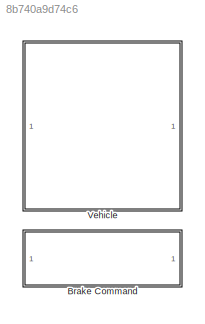
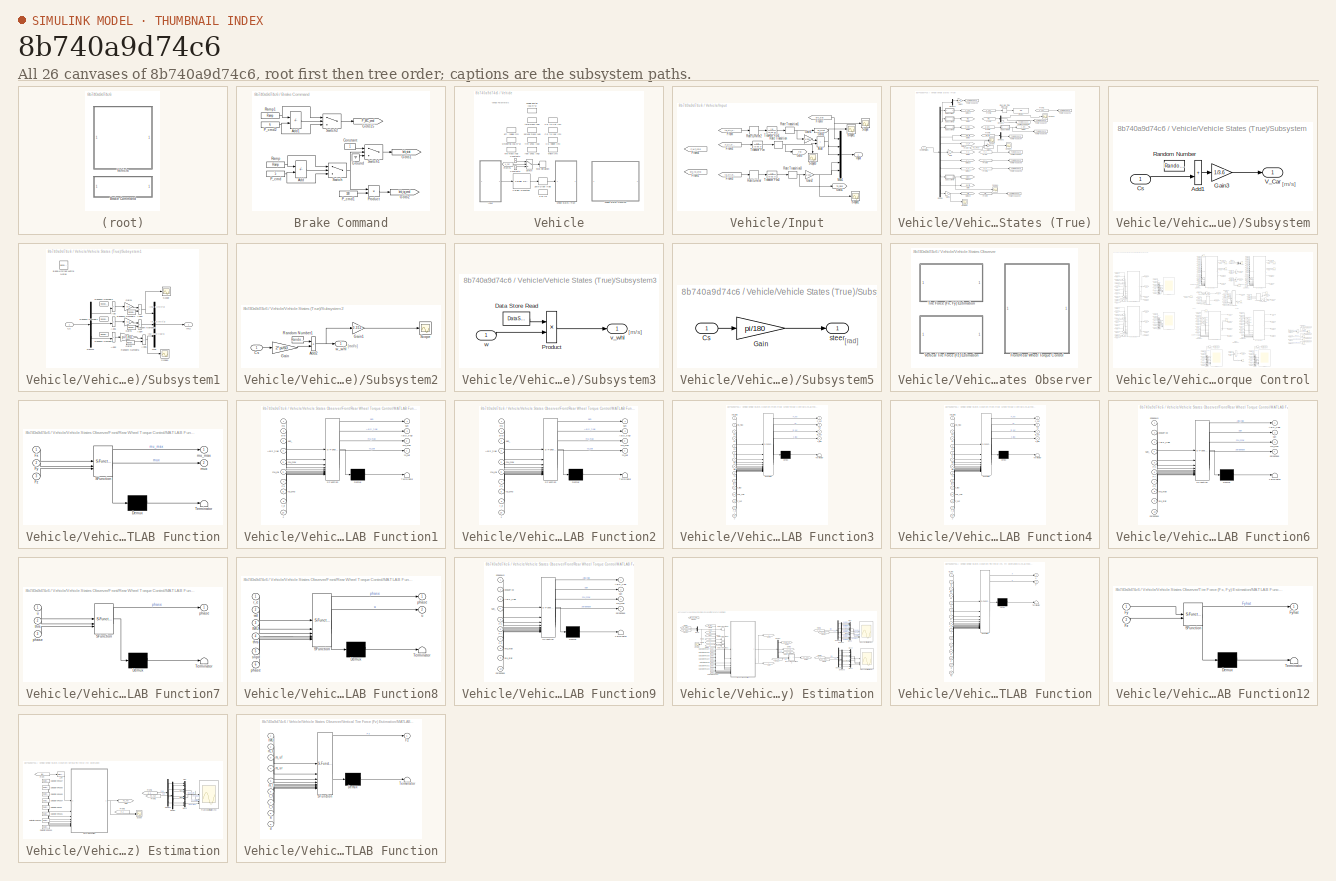
[diagram: thumbnail index - all 26 canvases of the model, root first then tree order]
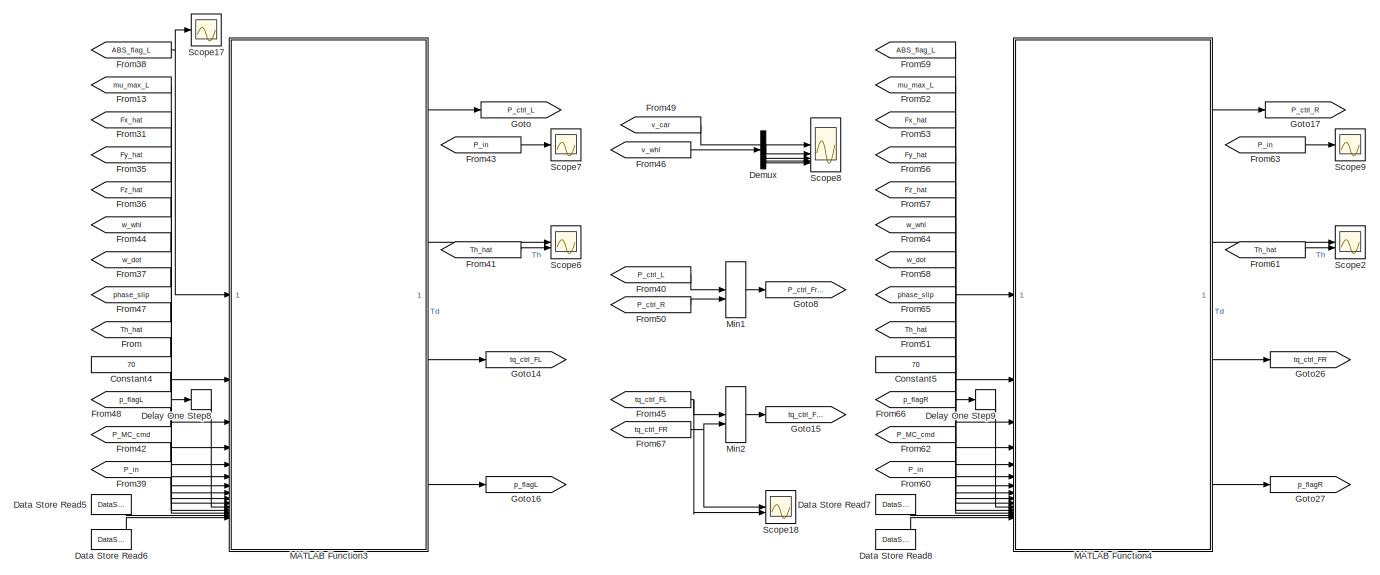
[diagram: Vehicle/Vehicle States Observer/Front/Rear Wheel Torque Control - part 1/6, top center region]
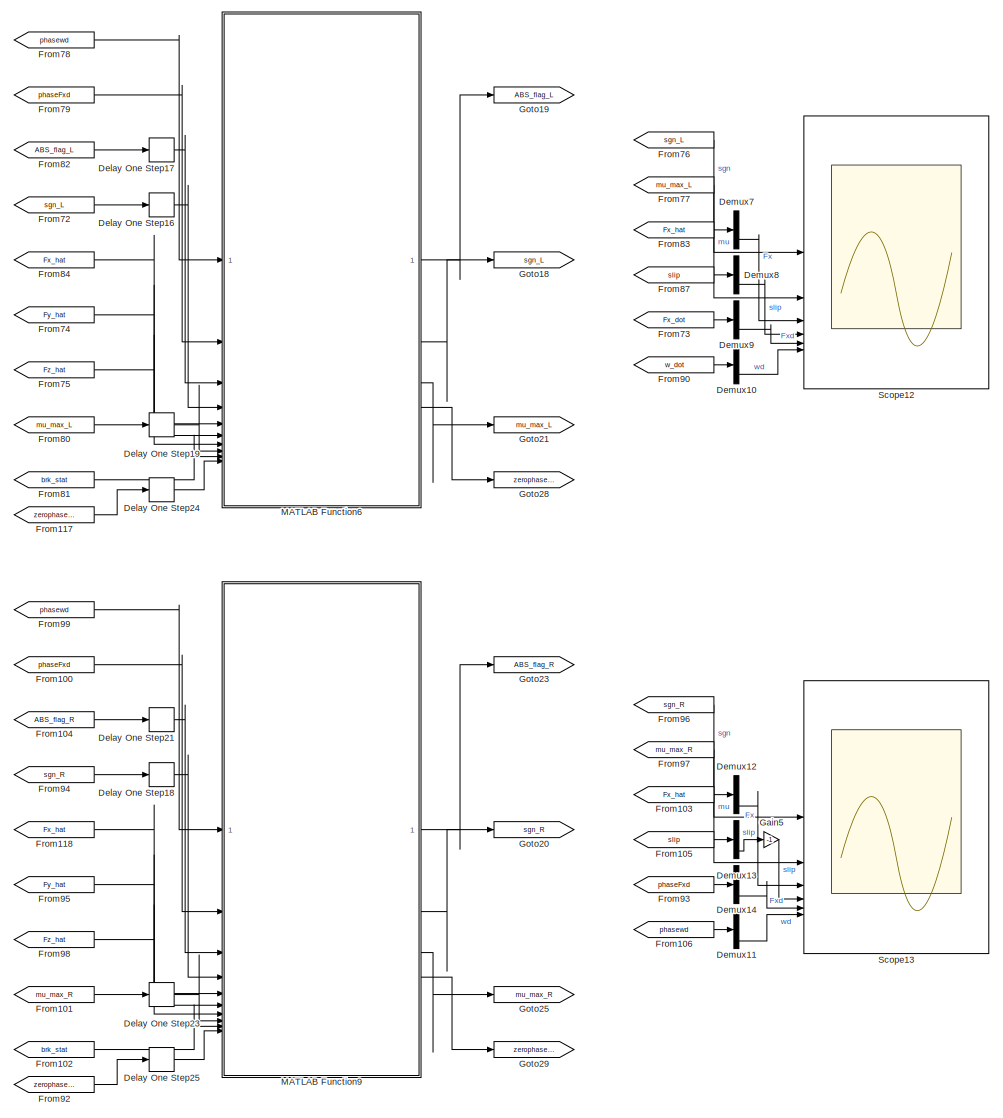
[diagram: Vehicle/Vehicle States Observer/Front/Rear Wheel Torque Control - part 2/6, middle left region]
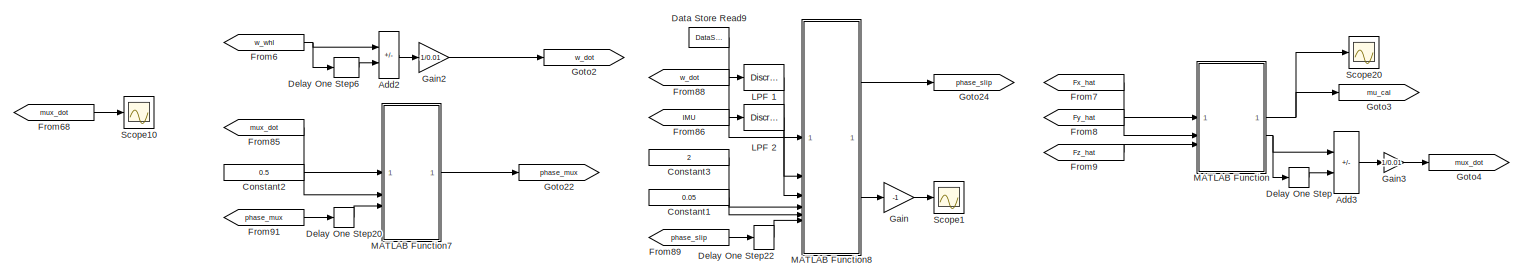
[diagram: Vehicle/Vehicle States Observer/Front/Rear Wheel Torque Control - part 3/6, central region]
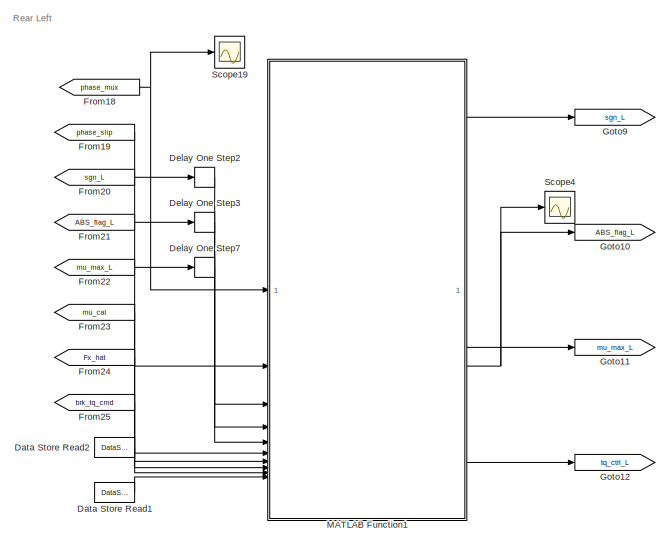
[diagram: Vehicle/Vehicle States Observer/Front/Rear Wheel Torque Control - part 4/6, central region]
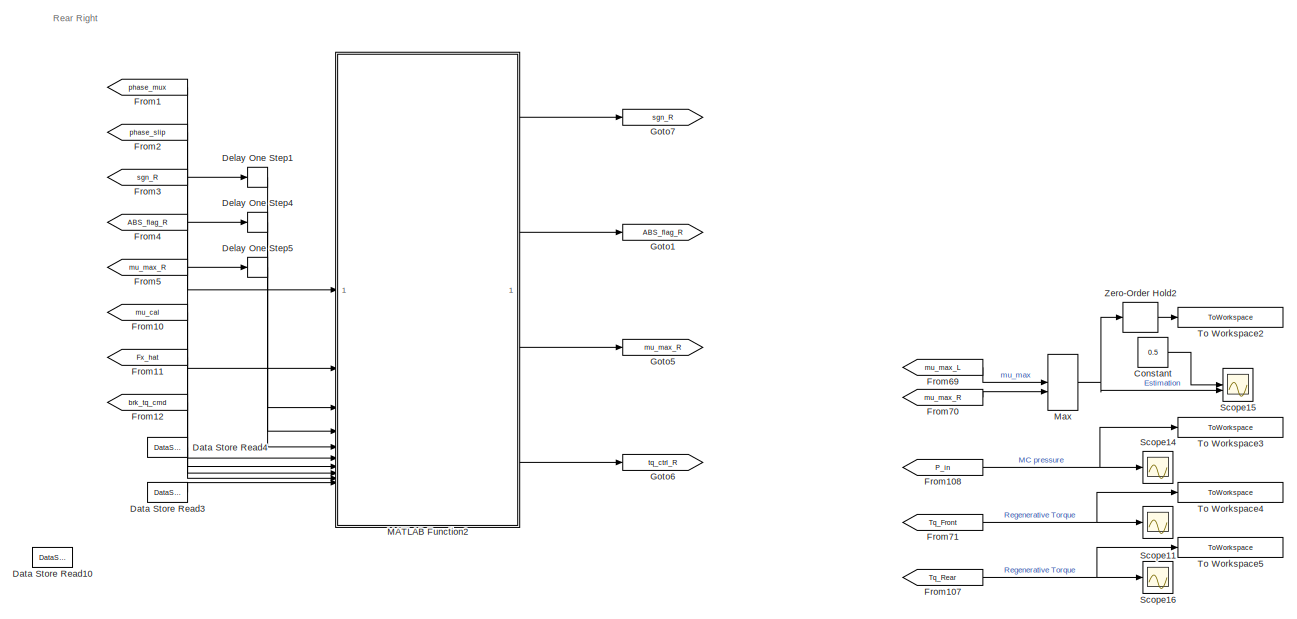
[diagram: Vehicle/Vehicle States Observer/Front/Rear Wheel Torque Control - part 5/6, middle right region]
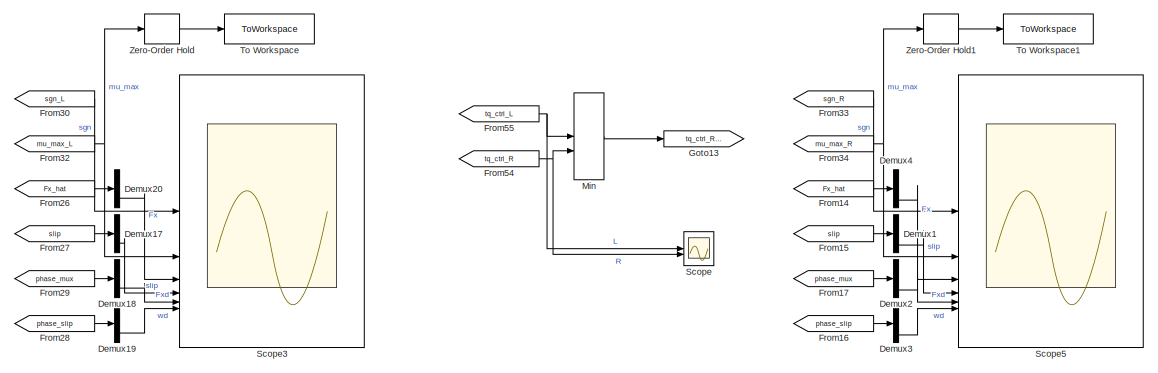
[diagram: Vehicle/Vehicle States Observer/Front/Rear Wheel Torque Control - part 6/6, bottom center region]
MODEL slx_8b740a9d74c6
KIND model
CONFIG AbsTol = 1e-6
CONFIG EnableMultiTasking = off
CONFIG FixedStep = 0.001
CONFIG MaxStep = auto
CONFIG MinStep = auto
CONFIG RelTol = 1e-3
CONFIG SampleTimeConstraint = Unconstrained
CONFIG SolverName = ode45
CONFIG StartTime = 0
CONFIG StopTime = 20
BLOCK [SubSystem] Brake Command
BLOCK [Sum] Brake Command/Add
  IconShape = rectangular
  Inputs = -+
BLOCK [Sum] Brake Command/Add1
  IconShape = rectangular
  Inputs = -+
BLOCK [Constant] Brake Command/Constant
BLOCK [Goto] Brake Command/Goto1
  GotoTag = brk_stat
  TagVisibility = global
BLOCK [Goto] Brake Command/Goto15
  GotoTag = P_MC_cmd
  TagVisibility = global
BLOCK [Goto] Brake Command/Goto2
  GotoTag = brk_tq_cmd
  TagVisibility = global
BLOCK [Ground] Brake Command/Ground
BLOCK [Constant] Brake Command/P_cmd
  SampleTime = 0.01
  Value = 5
BLOCK [Constant] Brake Command/P_cmd1
  SampleTime = 0.01
  Value = 100
BLOCK [Constant] Brake Command/P_cmd2
  SampleTime = 0.01
  Value = 6
BLOCK [Product] Brake Command/Product
BLOCK [Reference] Brake Command/Ramp  REF=simulink/Sources/Ramp
  SourceBlock = simulink/Sources/Ramp
  SourceType = Ramp
BLOCK [Reference] Brake Command/Ramp1  REF=simulink/Sources/Ramp
  SourceBlock = simulink/Sources/Ramp
  SourceType = Ramp
BLOCK [Switch] Brake Command/Switch
  Criteria = u2 > Threshold
  InputSameDT = off
  SaturateOnIntegerOverflow = off
BLOCK [Switch] Brake Command/Switch1
  Criteria = u2 > Threshold
  InputSameDT = off
  SaturateOnIntegerOverflow = off
BLOCK [Switch] Brake Command/Switch2
  Criteria = u2 > Threshold
  InputSameDT = off
  SaturateOnIntegerOverflow = off
BLOCK [SubSystem] Vehicle
BLOCK [DataStoreMemory] Vehicle/0.01 [s]
  DataStoreName = Ts
  InitialValue = 0.01
  OutDataTypeStr = double
  ShowAdditionalParam = off
  SignalType = real
  WriteAfterWriteMsg = warning
BLOCK [DataStoreMemory] Vehicle/CG height [m]
  DataStoreName = h
  InitialValue = 0.54
  OutDataTypeStr = double
  ShowAdditionalParam = off
  SignalType = real
  WriteAfterWriteMsg = warning
BLOCK [DataStoreMemory] Vehicle/CG to frnt [m]
  DataStoreName = l_f
  InitialValue = 1.040
  OutDataTypeStr = double
  ShowAdditionalParam = off
  SignalType = real
  WriteAfterWriteMsg = warning
BLOCK [DataStoreMemory] Vehicle/CG to rear [m]
  DataStoreName = l_r
  InitialValue = 1.560
  OutDataTypeStr = double
  ShowAdditionalParam = off
  SignalType = real
  WriteAfterWriteMsg = warning
BLOCK [Reference] Vehicle/CarSim S-Function  REF=Solver_SF/CarSim S-Function
  Priority = 1
  SourceBlock = Solver_SF/CarSim S-Function
  SourceProductName = CarSim S-Function
  SourceType = Vehicle math model library
BLOCK [Constant] Vehicle/Constant2
  Value = 0
BLOCK [Constant] Vehicle/Constant3
BLOCK [From] Vehicle/From76
  GotoTag = v_car
  TagVisibility = global
BLOCK [SubSystem] Vehicle/Input
BLOCK [Sum] Vehicle/Input/Add
  IconShape = rectangular
BLOCK [From] Vehicle/Input/From
  GotoTag = tq_ctrl_Front
  TagVisibility = global
BLOCK [From] Vehicle/Input/From1
  GotoTag = brk_tq_cmd
  TagVisibility = global
BLOCK [From] Vehicle/Input/From2
  GotoTag = P_ctrl_Front
  TagVisibility = global
BLOCK [From] Vehicle/Input/From3
  GotoTag = tq_ctrl_Rear
  TagVisibility = global
BLOCK [From] Vehicle/Input/From4
  GotoTag = P_MC_cmd
  TagVisibility = global
BLOCK [From] Vehicle/Input/From7
  GotoTag = brk_stat
  TagVisibility = global
BLOCK [Gain] Vehicle/Input/Gain1
  Gain = 1/200
BLOCK [Gain] Vehicle/Input/Gain2
  Gain = 1/100
BLOCK [Goto] Vehicle/Input/Goto
  GotoTag = P_in
  TagVisibility = global
BLOCK [Goto] Vehicle/Input/Goto1
  GotoTag = Tq_Rear
  TagVisibility = global
BLOCK [Goto] Vehicle/Input/Goto2
  GotoTag = Tq_Front
  TagVisibility = global
BLOCK [Outport] Vehicle/Input/Input
BLOCK [Mux] Vehicle/Input/Mux1
  DisplayOption = bar
  Inputs = 5
BLOCK [RateLimiter] Vehicle/Input/Rate Limiter
  FallingSlewLimit = -5000
  RisingSlewLimit = 5000
  SampleTimeMode = inherited
BLOCK [RateLimiter] Vehicle/Input/Rate Limiter2
  FallingSlewLimit = -5000
  RisingSlewLimit = 5000
  SampleTimeMode = inherited
BLOCK [RateTransition] Vehicle/Input/Rate Transition
  OutPortSampleTime = 0.01
BLOCK [RateTransition] Vehicle/Input/Rate Transition1
  OutPortSampleTime = 0.01
BLOCK [RateTransition] Vehicle/Input/Rate Transition3
  OutPortSampleTime = 0.01
BLOCK [Scope] Vehicle/Input/Scope
  Floating = off
  NumInputPorts = 1
  ScopeSpecificationString = Simulink.scopes.TimeScopeBlockCfg('CurrentConfiguration', extmgr.ConfigurationSet(extmgr.Configuration('Core','General UI',true),extmgr.Configuration('Core','Source UI',true),extmgr.Configuration('Sources','WiredSimulink',true,'DataLoggingVariableName','ScopeData4'),extmgr.Configuration('Visuals','Time Domain',true,'SerializedDisplays',{struct('MinYLimReal','-0.125','MaxYLimReal','1.125','YLabelRe...<+1443ch>
BLOCK [Scope] Vehicle/Input/Scope1
  Floating = off
  NumInputPorts = 1
  ScopeSpecificationString = Simulink.scopes.TimeScopeBlockCfg('CurrentConfiguration', extmgr.ConfigurationSet(extmgr.Configuration('Core','General UI',true),extmgr.Configuration('Core','Source UI',true),extmgr.Configuration('Sources','WiredSimulink',true,'DataLoggingVariableName','ScopeData5'),extmgr.Configuration('Visuals','Time Domain',true,'SerializedDisplays',{struct('MinYLimReal','-0.75','MaxYLimReal','6.75','YLabelReal...<+1462ch>
BLOCK [Scope] Vehicle/Input/Scope2
  Floating = off
  NumInputPorts = 1
  ScopeSpecificationString = Simulink.scopes.TimeScopeBlockCfg('CurrentConfiguration', extmgr.ConfigurationSet(extmgr.Configuration('Core','General UI',true),extmgr.Configuration('Core','Source UI',true),extmgr.Configuration('Sources','WiredSimulink',true,'DataLoggingVariableName','ScopeData6'),extmgr.Configuration('Visuals','Time Domain',true,'SerializedDisplays',{struct('MinYLimReal','-0.625','MaxYLimReal','5.625','YLabelRe...<+1471ch>
BLOCK [Scope] Vehicle/Input/Scope3
  Floating = off
  NameLocation = left
  NumInputPorts = 1
  ScopeSpecificationString = Simulink.scopes.TimeScopeBlockCfg('CurrentConfiguration', extmgr.ConfigurationSet(extmgr.Configuration('Core','General UI',true),extmgr.Configuration('Core','Source UI',true),extmgr.Configuration('Sources','WiredSimulink',true,'DataLoggingVariableName','ScopeData7'),extmgr.Configuration('Visuals','Time Domain',true,'SerializedDisplays',{struct('MinYLimReal','-0.62388','MaxYLimReal','5.61495','YLab...<+1492ch>
BLOCK [TransferFcn] Vehicle/Input/Transfer Fcn
  Denominator = [0.06 1]
BLOCK [TransferFcn] Vehicle/Input/Transfer Fcn1
  Denominator = [0.02 1]
BLOCK [TransferFcn] Vehicle/Input/Transfer Fcn3
  Denominator = [0.02 1]
BLOCK [Stop] Vehicle/Stop Simulation
BLOCK [Switch] Vehicle/Switch
  Criteria = u2 > Threshold
  InputSameDT = off
  SaturateOnIntegerOverflow = off
  Threshold = 1
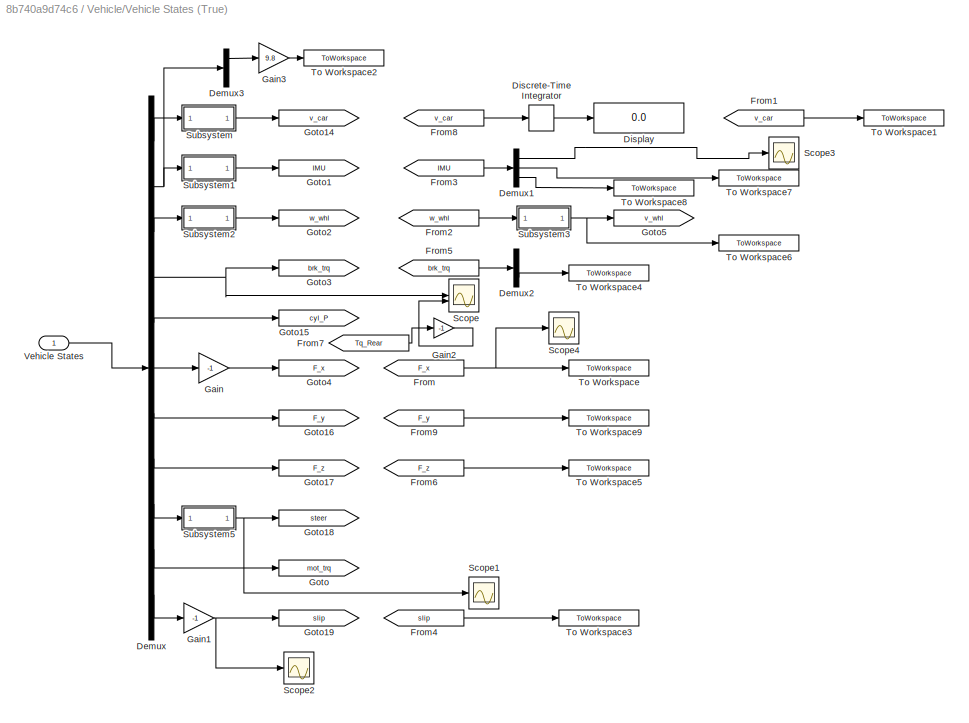
BLOCK [SubSystem] Vehicle/Vehicle States (True)
BLOCK [Demux] Vehicle/Vehicle States (True)/Demux
  Outputs = [1 3 4 4 4 4 4 4 4 4 4]
BLOCK [Demux] Vehicle/Vehicle States (True)/Demux1
  Outputs = 3
BLOCK [Demux] Vehicle/Vehicle States (True)/Demux2
BLOCK [Demux] Vehicle/Vehicle States (True)/Demux3
  Outputs = 3
BLOCK [DiscreteIntegrator] Vehicle/Vehicle States (True)/Discrete-Time Integrator
  ICPrevOutput = DiscIntNeverNeededParam
  ICPrevScaledInput = DiscIntNeverNeededParam
  InitialConditionSetting = Auto
  SampleTime = 0.01
BLOCK [Display] Vehicle/Vehicle States (True)/Display
  Decimation = 1
  Format = bank
BLOCK [From] Vehicle/Vehicle States (True)/From
  GotoTag = F_x
  TagVisibility = global
BLOCK [From] Vehicle/Vehicle States (True)/From1
  GotoTag = v_car
  TagVisibility = global
BLOCK [From] Vehicle/Vehicle States (True)/From2
  GotoTag = w_whl
  TagVisibility = global
BLOCK [From] Vehicle/Vehicle States (True)/From3
  GotoTag = IMU
  TagVisibility = global
BLOCK [From] Vehicle/Vehicle States (True)/From4
  GotoTag = slip
  TagVisibility = global
BLOCK [From] Vehicle/Vehicle States (True)/From5
  GotoTag = brk_trq
  TagVisibility = global
BLOCK [From] Vehicle/Vehicle States (True)/From6
  GotoTag = F_z
  TagVisibility = global
BLOCK [From] Vehicle/Vehicle States (True)/From7
  GotoTag = Tq_Rear
  TagVisibility = global
BLOCK [From] Vehicle/Vehicle States (True)/From8
  GotoTag = v_car
  TagVisibility = global
BLOCK [From] Vehicle/Vehicle States (True)/From9
  GotoTag = F_y
  TagVisibility = global
BLOCK [Gain] Vehicle/Vehicle States (True)/Gain
  Gain = -1
BLOCK [Gain] Vehicle/Vehicle States (True)/Gain1
  Gain = -1
BLOCK [Gain] Vehicle/Vehicle States (True)/Gain2
  Gain = -1
BLOCK [Gain] Vehicle/Vehicle States (True)/Gain3
  Gain = 9.8
BLOCK [Goto] Vehicle/Vehicle States (True)/Goto
  GotoTag = mot_trq
  TagVisibility = global
BLOCK [Goto] Vehicle/Vehicle States (True)/Goto1
  GotoTag = IMU
  TagVisibility = global
BLOCK [Goto] Vehicle/Vehicle States (True)/Goto14
  GotoTag = v_car
  TagVisibility = global
BLOCK [Goto] Vehicle/Vehicle States (True)/Goto15
  GotoTag = cyl_P
  TagVisibility = global
BLOCK [Goto] Vehicle/Vehicle States (True)/Goto16
  GotoTag = F_y
  TagVisibility = global
BLOCK [Goto] Vehicle/Vehicle States (True)/Goto17
  GotoTag = F_z
  TagVisibility = global
BLOCK [Goto] Vehicle/Vehicle States (True)/Goto18
  GotoTag = steer
  TagVisibility = global
BLOCK [Goto] Vehicle/Vehicle States (True)/Goto19
  GotoTag = slip
  TagVisibility = global
BLOCK [Goto] Vehicle/Vehicle States (True)/Goto2
  GotoTag = w_whl
  TagVisibility = global
BLOCK [Goto] Vehicle/Vehicle States (True)/Goto3
  GotoTag = brk_trq
  TagVisibility = global
BLOCK [Goto] Vehicle/Vehicle States (True)/Goto4
  GotoTag = F_x
  TagVisibility = global
BLOCK [Goto] Vehicle/Vehicle States (True)/Goto5
  GotoTag = v_whl
  TagVisibility = global
BLOCK [Scope] Vehicle/Vehicle States (True)/Scope
  Floating = off
  NumInputPorts = 2
  ScopeSpecificationString = Simulink.scopes.TimeScopeBlockCfg('CurrentConfiguration', extmgr.ConfigurationSet(extmgr.Configuration('Core','General UI',true),extmgr.Configuration('Core','Source UI',true),extmgr.Configuration('Sources','WiredSimulink',true,'DataLoggingVariableName','ScopeData2'),extmgr.Configuration('Visuals','Time Domain',true,'SerializedDisplays',{struct('MinYLimReal','-1380.80068','MaxYLimReal','153.4223','...<+1614ch>
BLOCK [Scope] Vehicle/Vehicle States (True)/Scope1
  Floating = off
  NumInputPorts = 1
  ScopeSpecificationString = Simulink.scopes.TimeScopeBlockCfg('CurrentConfiguration', extmgr.ConfigurationSet(extmgr.Configuration('Core','General UI',true),extmgr.Configuration('Core','Source UI',true),extmgr.Configuration('Sources','WiredSimulink',true,'DataLoggingVariableName','ScopeData8'),extmgr.Configuration('Visuals','Time Domain',true,'SerializedDisplays',{struct('MinYLimReal','-0.00214','MaxYLimReal','0.00213','YLab...<+1534ch>
BLOCK [Scope] Vehicle/Vehicle States (True)/Scope2
  Floating = off
  NumInputPorts = 1
  ScopeSpecificationString = Simulink.scopes.TimeScopeBlockCfg('CurrentConfiguration', extmgr.ConfigurationSet(extmgr.Configuration('Core','General UI',true),extmgr.Configuration('Core','Source UI',true),extmgr.Configuration('Sources','WiredSimulink',true,'DataLoggingVariableName','ScopeData5'),extmgr.Configuration('Visuals','Time Domain',true,'SerializedDisplays',{struct('MinYLimReal','-0.00264','MaxYLimReal','0.02373','YLab...<+1645ch>
BLOCK [Scope] Vehicle/Vehicle States (True)/Scope3
  Floating = off
  NumInputPorts = 1
  ScopeSpecificationString = Simulink.scopes.TimeScopeBlockCfg('CurrentConfiguration', extmgr.ConfigurationSet(extmgr.Configuration('Core','General UI',true),extmgr.Configuration('Core','Source UI',true),extmgr.Configuration('Sources','WiredSimulink',true,'DataLoggingVariableName','ScopeData7'),extmgr.Configuration('Visuals','Time Domain',true,'SerializedDisplays',{struct('MinYLimReal','-0.46457','MaxYLimReal','0.34338','YLab...<+1456ch>
BLOCK [Scope] Vehicle/Vehicle States (True)/Scope4
  Floating = off
  NumInputPorts = 1
  ScopeSpecificationString = Simulink.scopes.TimeScopeBlockCfg('CurrentConfiguration', extmgr.ConfigurationSet(extmgr.Configuration('Core','General UI',true),extmgr.Configuration('Core','Source UI',true),extmgr.Configuration('Sources','WiredSimulink',true,'DataLoggingVariableName','ScopeData2'),extmgr.Configuration('Visuals','Time Domain',true,'SerializedDisplays',{struct('MinYLimReal','-540.03374','MaxYLimReal','4860.30369',...<+1524ch>
BLOCK [SubSystem] Vehicle/Vehicle States (True)/Subsystem
BLOCK [Sum] Vehicle/Vehicle States (True)/Subsystem/Add1
  IconShape = rectangular
BLOCK [Inport] Vehicle/Vehicle States (True)/Subsystem/Cs
BLOCK [Gain] Vehicle/Vehicle States (True)/Subsystem/Gain3
  Gain = 1/3.6
BLOCK [RandomNumber] Vehicle/Vehicle States (True)/Subsystem/Random Number
  SampleTime = 0.01
  Seed = 2
  Variance = 0.0005
BLOCK [Outport] Vehicle/Vehicle States (True)/Subsystem/V_Car
BLOCK [SubSystem] Vehicle/Vehicle States (True)/Subsystem1
BLOCK [Sum] Vehicle/Vehicle States (True)/Subsystem1/Add
  IconShape = rectangular
BLOCK [Sum] Vehicle/Vehicle States (True)/Subsystem1/Add1
  IconShape = rectangular
BLOCK [Sum] Vehicle/Vehicle States (True)/Subsystem1/Add2
  IconShape = rectangular
BLOCK [Sum] Vehicle/Vehicle States (True)/Subsystem1/Add3
  IconShape = rectangular
BLOCK [Sum] Vehicle/Vehicle States (True)/Subsystem1/Add4
  IconShape = rectangular
BLOCK [Sum] Vehicle/Vehicle States (True)/Subsystem1/Add5
  IconShape = rectangular
BLOCK [Reference] Vehicle/Vehicle States (True)/Subsystem1/Band-Limited White Noise  REF=simulink/Sources/Band-Limited
White Noise
  SourceBlock = simulink/Sources/Band-Limited\nWhite Noise
  SourceType = Band-Limited White Noise.
BLOCK [Inport] Vehicle/Vehicle States (True)/Subsystem1/Cs
BLOCK [Demux] Vehicle/Vehicle States (True)/Subsystem1/Demux
  Outputs = 3
BLOCK [Gain] Vehicle/Vehicle States (True)/Subsystem1/Gain1
  Gain = 9.8
BLOCK [Gain] Vehicle/Vehicle States (True)/Subsystem1/Gain2
  Gain = pi/180
BLOCK [Gain] Vehicle/Vehicle States (True)/Subsystem1/Gain4
  Gain = 9.8
BLOCK [Outport] Vehicle/Vehicle States (True)/Subsystem1/IMU
BLOCK [Mux] Vehicle/Vehicle States (True)/Subsystem1/Mux
  DisplayOption = bar
  Inputs = 3
BLOCK [RandomNumber] Vehicle/Vehicle States (True)/Subsystem1/Random Number1
  SampleTime = 0.01
  Seed = 2
  Variance = 0.0001
BLOCK [RandomNumber] Vehicle/Vehicle States (True)/Subsystem1/Random Number2
  SampleTime = 0.01
  Seed = 1
  Variance = 0.0001
BLOCK [RandomNumber] Vehicle/Vehicle States (True)/Subsystem1/Random Number3
  SampleTime = 0.01
  Seed = 3
  Variance = 0.003
BLOCK [RandomNumber] Vehicle/Vehicle States (True)/Subsystem1/Random Number4
  SampleTime = 0.01
  Seed = 1
  Variance = 0.01
BLOCK [RandomNumber] Vehicle/Vehicle States (True)/Subsystem1/Random Number5
  SampleTime = 0.01
  Seed = 1000
  Variance = 0.01
BLOCK [RandomNumber] Vehicle/Vehicle States (True)/Subsystem1/Random Number6
  SampleTime = 0.01
  Seed = 3
  Variance = 0.00001
BLOCK [Scope] Vehicle/Vehicle States (True)/Subsystem1/Scope
  Floating = off
  NumInputPorts = 1
  ScopeSpecificationString = Simulink.scopes.TimeScopeBlockCfg('CurrentConfiguration', extmgr.ConfigurationSet(extmgr.Configuration('Core','General UI',true),extmgr.Configuration('Core','Source UI',true),extmgr.Configuration('Sources','WiredSimulink',true,'DataLoggingVariableName','ScopeData2'),extmgr.Configuration('Visuals','Time Domain',true,'SerializedDisplays',{struct('MinYLimReal','-0.36392','MaxYLimReal','0.33036','YLab...<+1434ch>
BLOCK [Scope] Vehicle/Vehicle States (True)/Subsystem1/Scope1
  Floating = off
  NumInputPorts = 1
  ScopeSpecificationString = Simulink.scopes.TimeScopeBlockCfg('CurrentConfiguration', extmgr.ConfigurationSet(extmgr.Configuration('Core','General UI',true),extmgr.Configuration('Core','Source UI',true),extmgr.Configuration('Sources','WiredSimulink',true,'DataLoggingVariableName','ScopeData3'),extmgr.Configuration('Visuals','Time Domain',true,'SerializedDisplays',{struct('MinYLimReal','-0.01173','MaxYLimReal','0.01118','YLab...<+1363ch>
BLOCK [SubSystem] Vehicle/Vehicle States (True)/Subsystem2
BLOCK [Sum] Vehicle/Vehicle States (True)/Subsystem2/Add2
  IconShape = rectangular
BLOCK [Inport] Vehicle/Vehicle States (True)/Subsystem2/Cs
BLOCK [Gain] Vehicle/Vehicle States (True)/Subsystem2/Gain
  Gain = 2*pi/60
BLOCK [Gain] Vehicle/Vehicle States (True)/Subsystem2/Gain1
  Gain = 0.352
BLOCK [RandomNumber] Vehicle/Vehicle States (True)/Subsystem2/Random Number1
  SampleTime = 0.01
  Variance = 0.003
BLOCK [Scope] Vehicle/Vehicle States (True)/Subsystem2/Scope
  Floating = off
  NumInputPorts = 1
  ScopeSpecificationString = Simulink.scopes.TimeScopeBlockCfg('CurrentConfiguration', extmgr.ConfigurationSet(extmgr.Configuration('Core','General UI',true),extmgr.Configuration('Core','Source UI',true),extmgr.Configuration('Sources','WiredSimulink',true,'DataLoggingVariableName','ScopeData1'),extmgr.Configuration('Visuals','Time Domain',true,'SerializedDisplays',{struct('MinYLimReal','15.77676','MaxYLimReal','23.31957','YLa...<+1651ch>
BLOCK [Outport] Vehicle/Vehicle States (True)/Subsystem2/w_whl
BLOCK [SubSystem] Vehicle/Vehicle States (True)/Subsystem3
BLOCK [DataStoreRead] Vehicle/Vehicle States (True)/Subsystem3/Data Store Read
  DataStoreName = r_e
  IndexOptions = Index vector (dialog)
  Indices = 1
  OutputSizes = 1
  SampleTime = 0.01
BLOCK [Product] Vehicle/Vehicle States (True)/Subsystem3/Product
BLOCK [Outport] Vehicle/Vehicle States (True)/Subsystem3/v_whl
BLOCK [Inport] Vehicle/Vehicle States (True)/Subsystem3/w
BLOCK [SubSystem] Vehicle/Vehicle States (True)/Subsystem5
BLOCK [Inport] Vehicle/Vehicle States (True)/Subsystem5/Cs
BLOCK [Gain] Vehicle/Vehicle States (True)/Subsystem5/Gain
  Gain = pi/180
BLOCK [Outport] Vehicle/Vehicle States (True)/Subsystem5/steer
BLOCK [ToWorkspace] Vehicle/Vehicle States (True)/To Workspace
  FixptAsFi = on
  MaxDataPoints = inf
  SampleTime = -1
  SaveFormat = Timeseries
  VariableName = F_x
BLOCK [ToWorkspace] Vehicle/Vehicle States (True)/To Workspace1
  FixptAsFi = on
  MaxDataPoints = inf
  SampleTime = -1
  SaveFormat = Timeseries
  VariableName = V_car
BLOCK [ToWorkspace] Vehicle/Vehicle States (True)/To Workspace2
  FixptAsFi = on
  MaxDataPoints = inf
  SampleTime = -1
  SaveFormat = Timeseries
  VariableName = a_x
BLOCK [ToWorkspace] Vehicle/Vehicle States (True)/To Workspace3
  FixptAsFi = on
  MaxDataPoints = inf
  SampleTime = -1
  SaveFormat = Timeseries
  VariableName = slip
BLOCK [ToWorkspace] Vehicle/Vehicle States (True)/To Workspace4
  FixptAsFi = on
  MaxDataPoints = inf
  SampleTime = -1
  SaveFormat = Timeseries
  VariableName = T_b
BLOCK [ToWorkspace] Vehicle/Vehicle States (True)/To Workspace5
  FixptAsFi = on
  MaxDataPoints = inf
  SampleTime = -1
  SaveFormat = Timeseries
  VariableName = F_z
BLOCK [ToWorkspace] Vehicle/Vehicle States (True)/To Workspace6
  FixptAsFi = on
  MaxDataPoints = inf
  SampleTime = -1
  SaveFormat = Timeseries
  VariableName = V_whl
BLOCK [ToWorkspace] Vehicle/Vehicle States (True)/To Workspace7
  FixptAsFi = on
  MaxDataPoints = inf
  SampleTime = -1
  SaveFormat = Timeseries
  VariableName = a_y
BLOCK [ToWorkspace] Vehicle/Vehicle States (True)/To Workspace8
  FixptAsFi = on
  MaxDataPoints = inf
  SampleTime = -1
  SaveFormat = Timeseries
  VariableName = yr
BLOCK [ToWorkspace] Vehicle/Vehicle States (True)/To Workspace9
  FixptAsFi = on
  MaxDataPoints = inf
  SampleTime = -1
  SaveFormat = Timeseries
  VariableName = F_y
BLOCK [Inport] Vehicle/Vehicle States (True)/Vehicle States
BLOCK [SubSystem] Vehicle/Vehicle States Observer
BLOCK [SubSystem] Vehicle/Vehicle States Observer/Front//Rear Wheel Torque Control
BLOCK [Sum] Vehicle/Vehicle States Observer/Front//Rear Wheel Torque Control/Add2
  IconShape = rectangular
  Inputs = +-
BLOCK [Sum] Vehicle/Vehicle States Observer/Front//Rear Wheel Torque Control/Add3
  IconShape = rectangular
  Inputs = +-
BLOCK [Constant] Vehicle/Vehicle States Observer/Front//Rear Wheel Torque Control/Constant
  Value = 0.5
BLOCK [Constant] Vehicle/Vehicle States Observer/Front//Rear Wheel Torque Control/Constant1
  SampleTime = 0.01
  Value = 0.05
BLOCK [Constant] Vehicle/Vehicle States Observer/Front//Rear Wheel Torque Control/Constant2
  SampleTime = 0.01
  Value = 0.5
BLOCK [Constant] Vehicle/Vehicle States Observer/Front//Rear Wheel Torque Control/Constant3
  SampleTime = 0.01
  Value = 2
BLOCK [Constant] Vehicle/Vehicle States Observer/Front//Rear Wheel Torque Control/Constant4
  Value = 70
BLOCK [Constant] Vehicle/Vehicle States Observer/Front//Rear Wheel Torque Control/Constant5
  Value = 70
BLOCK [DataStoreRead] Vehicle/Vehicle States Observer/Front//Rear Wheel Torque Control/Data Store Read1
  DataStoreName = J
  IndexOptions = Index vector (dialog)
  Indices = 1
  OutputSizes = 1
  SampleTime = 0.01
BLOCK [DataStoreRead] Vehicle/Vehicle States Observer/Front//Rear Wheel Torque Control/Data Store Read10
  DataStoreName = J
  IndexOptions = Index vector (dialog)
  Indices = 1
  OutputSizes = 1
  SampleTime = 0.01
BLOCK [DataStoreRead] Vehicle/Vehicle States Observer/Front//Rear Wheel Torque Control/Data Store Read2
  DataStoreName = r_e
  IndexOptions = Index vector (dialog)
  Indices = 1
  OutputSizes = 1
  SampleTime = 0.01
BLOCK [DataStoreRead] Vehicle/Vehicle States Observer/Front//Rear Wheel Torque Control/Data Store Read3
  DataStoreName = J
  IndexOptions = Index vector (dialog)
  Indices = 1
  OutputSizes = 1
  SampleTime = 0.01
BLOCK [DataStoreRead] Vehicle/Vehicle States Observer/Front//Rear Wheel Torque Control/Data Store Read4
  DataStoreName = r_e
  IndexOptions = Index vector (dialog)
  Indices = 1
  OutputSizes = 1
  SampleTime = 0.01
BLOCK [DataStoreRead] Vehicle/Vehicle States Observer/Front//Rear Wheel Torque Control/Data Store Read5
  DataStoreName = r_e
  IndexOptions = Index vector (dialog)
  Indices = 1
  OutputSizes = 1
  SampleTime = 0.01
BLOCK [DataStoreRead] Vehicle/Vehicle States Observer/Front//Rear Wheel Torque Control/Data Store Read6
  DataStoreName = J
  IndexOptions = Index vector (dialog)
  Indices = 1
  OutputSizes = 1
  SampleTime = 0.01
BLOCK [DataStoreRead] Vehicle/Vehicle States Observer/Front//Rear Wheel Torque Control/Data Store Read7
  DataStoreName = r_e
  IndexOptions = Index vector (dialog)
  Indices = 1
  OutputSizes = 1
  SampleTime = 0.01
BLOCK [DataStoreRead] Vehicle/Vehicle States Observer/Front//Rear Wheel Torque Control/Data Store Read8
  DataStoreName = J
  IndexOptions = Index vector (dialog)
  Indices = 1
  OutputSizes = 1
  SampleTime = 0.01
BLOCK [DataStoreRead] Vehicle/Vehicle States Observer/Front//Rear Wheel Torque Control/Data Store Read9
  DataStoreName = r_e
  IndexOptions = Index vector (dialog)
  Indices = 1
  OutputSizes = 1
  SampleTime = 0.01
BLOCK [Delay] Vehicle/Vehicle States Observer/Front//Rear Wheel Torque Control/Delay One Step
  DelayLength = 1
  InitialCondition = zeros(4,1)
  InputPortMap = u0
  SampleTime = 0.01
BLOCK [Delay] Vehicle/Vehicle States Observer/Front//Rear Wheel Torque Control/Delay One Step1
  DelayLength = 1
  InputPortMap = u0
  SampleTime = 0.01
BLOCK [Delay] Vehicle/Vehicle States Observer/Front//Rear Wheel Torque Control/Delay One Step16
  Commented = on
  DelayLength = 1
  InitialCondition = 0
  InputPortMap = u0
  SampleTime = 0.01
BLOCK [Delay] Vehicle/Vehicle States Observer/Front//Rear Wheel Torque Control/Delay One Step17
  Commented = on
  DelayLength = 1
  InitialCondition = 0
  InputPortMap = u0
  SampleTime = 0.01
BLOCK [Delay] Vehicle/Vehicle States Observer/Front//Rear Wheel Torque Control/Delay One Step18
  Commented = on
  DelayLength = 1
  InitialCondition = 0
  InputPortMap = u0
  SampleTime = 0.01
BLOCK [Delay] Vehicle/Vehicle States Observer/Front//Rear Wheel Torque Control/Delay One Step19
  Commented = on
  DelayLength = 1
  InitialCondition = 0
  InputPortMap = u0
  SampleTime = 0.01
BLOCK [Delay] Vehicle/Vehicle States Observer/Front//Rear Wheel Torque Control/Delay One Step2
  DelayLength = 1
  InputPortMap = u0
  SampleTime = 0.01
BLOCK [Delay] Vehicle/Vehicle States Observer/Front//Rear Wheel Torque Control/Delay One Step20
  DelayLength = 1
  InitialCondition = zeros(4,1)
  InputPortMap = u0
  SampleTime = 0.01
BLOCK [Delay] Vehicle/Vehicle States Observer/Front//Rear Wheel Torque Control/Delay One Step21
  Commented = on
  DelayLength = 1
  InitialCondition = 0
  InputPortMap = u0
  SampleTime = 0.01
BLOCK [Delay] Vehicle/Vehicle States Observer/Front//Rear Wheel Torque Control/Delay One Step22
  DelayLength = 1
  InitialCondition = zeros(4,1)
  InputPortMap = u0
  SampleTime = 0.01
BLOCK [Delay] Vehicle/Vehicle States Observer/Front//Rear Wheel Torque Control/Delay One Step23
  Commented = on
  DelayLength = 1
  InitialCondition = 0
  InputPortMap = u0
  SampleTime = 0.01
BLOCK [Delay] Vehicle/Vehicle States Observer/Front//Rear Wheel Torque Control/Delay One Step24
  Commented = on
  DelayLength = 1
  InitialCondition = 0
  InputPortMap = u0
  SampleTime = 0.01
BLOCK [Delay] Vehicle/Vehicle States Observer/Front//Rear Wheel Torque Control/Delay One Step25
  Commented = on
  DelayLength = 1
  InitialCondition = 0
  InputPortMap = u0
  SampleTime = 0.01
BLOCK [Delay] Vehicle/Vehicle States Observer/Front//Rear Wheel Torque Control/Delay One Step3
  DelayLength = 1
  InputPortMap = u0
  SampleTime = 0.01
BLOCK [Delay] Vehicle/Vehicle States Observer/Front//Rear Wheel Torque Control/Delay One Step4
  DelayLength = 1
  InputPortMap = u0
  SampleTime = 0.01
BLOCK [Delay] Vehicle/Vehicle States Observer/Front//Rear Wheel Torque Control/Delay One Step5
  DelayLength = 1
  InputPortMap = u0
  SampleTime = 0.01
BLOCK [Delay] Vehicle/Vehicle States Observer/Front//Rear Wheel Torque Control/Delay One Step6
  DelayLength = 1
  InputPortMap = u0
  SampleTime = 0.01
BLOCK [Delay] Vehicle/Vehicle States Observer/Front//Rear Wheel Torque Control/Delay One Step7
  DelayLength = 1
  InputPortMap = u0
  SampleTime = 0.01
BLOCK [Delay] Vehicle/Vehicle States Observer/Front//Rear Wheel Torque Control/Delay One Step8
  DelayLength = 1
  InputPortMap = u0
  SampleTime = 0.01
BLOCK [Delay] Vehicle/Vehicle States Observer/Front//Rear Wheel Torque Control/Delay One Step9
  DelayLength = 1
  InputPortMap = u0
  SampleTime = 0.01
BLOCK [Demux] Vehicle/Vehicle States Observer/Front//Rear Wheel Torque Control/Demux
BLOCK [Demux] Vehicle/Vehicle States Observer/Front//Rear Wheel Torque Control/Demux1
BLOCK [Demux] Vehicle/Vehicle States Observer/Front//Rear Wheel Torque Control/Demux10
  Commented = on
BLOCK [Demux] Vehicle/Vehicle States Observer/Front//Rear Wheel Torque Control/Demux11
  Commented = on
BLOCK [Demux] Vehicle/Vehicle States Observer/Front//Rear Wheel Torque Control/Demux12
  Commented = on
BLOCK [Demux] Vehicle/Vehicle States Observer/Front//Rear Wheel Torque Control/Demux13
  Commented = on
BLOCK [Demux] Vehicle/Vehicle States Observer/Front//Rear Wheel Torque Control/Demux14
  Commented = on
BLOCK [Demux] Vehicle/Vehicle States Observer/Front//Rear Wheel Torque Control/Demux17
BLOCK [Demux] Vehicle/Vehicle States Observer/Front//Rear Wheel Torque Control/Demux18
BLOCK [Demux] Vehicle/Vehicle States Observer/Front//Rear Wheel Torque Control/Demux19
BLOCK [Demux] Vehicle/Vehicle States Observer/Front//Rear Wheel Torque Control/Demux2
BLOCK [Demux] Vehicle/Vehicle States Observer/Front//Rear Wheel Torque Control/Demux20
BLOCK [Demux] Vehicle/Vehicle States Observer/Front//Rear Wheel Torque Control/Demux3
BLOCK [Demux] Vehicle/Vehicle States Observer/Front//Rear Wheel Torque Control/Demux4
BLOCK [Demux] Vehicle/Vehicle States Observer/Front//Rear Wheel Torque Control/Demux7
  Commented = on
BLOCK [Demux] Vehicle/Vehicle States Observer/Front//Rear Wheel Torque Control/Demux8
  Commented = on
BLOCK [Demux] Vehicle/Vehicle States Observer/Front//Rear Wheel Torque Control/Demux9
  Commented = on
BLOCK [From] Vehicle/Vehicle States Observer/Front//Rear Wheel Torque Control/From
  GotoTag = Th_hat
  TagVisibility = global
BLOCK [From] Vehicle/Vehicle States Observer/Front//Rear Wheel Torque Control/From1
  GotoTag = phase_mux
BLOCK [From] Vehicle/Vehicle States Observer/Front//Rear Wheel Torque Control/From10
  GotoTag = mu_cal
BLOCK [From] Vehicle/Vehicle States Observer/Front//Rear Wheel Torque Control/From100
  Commented = on
  GotoTag = phaseFxd
BLOCK [From] Vehicle/Vehicle States Observer/Front//Rear Wheel Torque Control/From101
  Commented = on
  GotoTag = mu_max_R
BLOCK [From] Vehicle/Vehicle States Observer/Front//Rear Wheel Torque Control/From102
  Commented = on
  GotoTag = brk_stat
  TagVisibility = global
BLOCK [From] Vehicle/Vehicle States Observer/Front//Rear Wheel Torque Control/From103
  Commented = on
  GotoTag = Fx_hat
  TagVisibility = global
BLOCK [From] Vehicle/Vehicle States Observer/Front//Rear Wheel Torque Control/From104
  Commented = on
  GotoTag = ABS_flag_R
BLOCK [From] Vehicle/Vehicle States Observer/Front//Rear Wheel Torque Control/From105
  Commented = on
  GotoTag = slip
  TagVisibility = global
BLOCK [From] Vehicle/Vehicle States Observer/Front//Rear Wheel Torque Control/From106
  Commented = on
  GotoTag = phasewd
BLOCK [From] Vehicle/Vehicle States Observer/Front//Rear Wheel Torque Control/From107
  GotoTag = Tq_Rear
  TagVisibility = global
BLOCK [From] Vehicle/Vehicle States Observer/Front//Rear Wheel Torque Control/From108
  GotoTag = P_in
  TagVisibility = global
BLOCK [From] Vehicle/Vehicle States Observer/Front//Rear Wheel Torque Control/From11
  GotoTag = Fx_hat
  TagVisibility = global
BLOCK [From] Vehicle/Vehicle States Observer/Front//Rear Wheel Torque Control/From117
  Commented = on
  GotoTag = zerophase_L
BLOCK [From] Vehicle/Vehicle States Observer/Front//Rear Wheel Torque Control/From118
  Commented = on
  GotoTag = Fx_hat
  TagVisibility = global
BLOCK [From] Vehicle/Vehicle States Observer/Front//Rear Wheel Torque Control/From12
  GotoTag = brk_tq_cmd
  TagVisibility = global
BLOCK [From] Vehicle/Vehicle States Observer/Front//Rear Wheel Torque Control/From13
  GotoTag = mu_max_L
BLOCK [From] Vehicle/Vehicle States Observer/Front//Rear Wheel Torque Control/From14
  GotoTag = Fx_hat
  TagVisibility = global
BLOCK [From] Vehicle/Vehicle States Observer/Front//Rear Wheel Torque Control/From15
  GotoTag = slip
  TagVisibility = global
BLOCK [From] Vehicle/Vehicle States Observer/Front//Rear Wheel Torque Control/From16
  GotoTag = phase_slip
BLOCK [From] Vehicle/Vehicle States Observer/Front//Rear Wheel Torque Control/From17
  GotoTag = phase_mux
BLOCK [From] Vehicle/Vehicle States Observer/Front//Rear Wheel Torque Control/From18
  GotoTag = phase_mux
BLOCK [From] Vehicle/Vehicle States Observer/Front//Rear Wheel Torque Control/From19
  GotoTag = phase_slip
BLOCK [From] Vehicle/Vehicle States Observer/Front//Rear Wheel Torque Control/From2
  GotoTag = phase_slip
BLOCK [From] Vehicle/Vehicle States Observer/Front//Rear Wheel Torque Control/From20
  GotoTag = sgn_L
BLOCK [From] Vehicle/Vehicle States Observer/Front//Rear Wheel Torque Control/From21
  GotoTag = ABS_flag_L
BLOCK [From] Vehicle/Vehicle States Observer/Front//Rear Wheel Torque Control/From22
  GotoTag = mu_max_L
BLOCK [From] Vehicle/Vehicle States Observer/Front//Rear Wheel Torque Control/From23
  GotoTag = mu_cal
BLOCK [From] Vehicle/Vehicle States Observer/Front//Rear Wheel Torque Control/From24
  GotoTag = Fx_hat
  TagVisibility = global
BLOCK [From] Vehicle/Vehicle States Observer/Front//Rear Wheel Torque Control/From25
  GotoTag = brk_tq_cmd
  TagVisibility = global
BLOCK [From] Vehicle/Vehicle States Observer/Front//Rear Wheel Torque Control/From26
  GotoTag = Fx_hat
  TagVisibility = global
BLOCK [From] Vehicle/Vehicle States Observer/Front//Rear Wheel Torque Control/From27
  GotoTag = slip
  TagVisibility = global
BLOCK [From] Vehicle/Vehicle States Observer/Front//Rear Wheel Torque Control/From28
  GotoTag = phase_slip
BLOCK [From] Vehicle/Vehicle States Observer/Front//Rear Wheel Torque Control/From29
  GotoTag = phase_mux
BLOCK [From] Vehicle/Vehicle States Observer/Front//Rear Wheel Torque Control/From3
  GotoTag = sgn_R
BLOCK [From] Vehicle/Vehicle States Observer/Front//Rear Wheel Torque Control/From30
  GotoTag = sgn_L
BLOCK [From] Vehicle/Vehicle States Observer/Front//Rear Wheel Torque Control/From31
  GotoTag = Fx_hat
  TagVisibility = global
BLOCK [From] Vehicle/Vehicle States Observer/Front//Rear Wheel Torque Control/From32
  GotoTag = mu_max_L
BLOCK [From] Vehicle/Vehicle States Observer/Front//Rear Wheel Torque Control/From33
  GotoTag = sgn_R
BLOCK [From] Vehicle/Vehicle States Observer/Front//Rear Wheel Torque Control/From34
  GotoTag = mu_max_R
BLOCK [From] Vehicle/Vehicle States Observer/Front//Rear Wheel Torque Control/From35
  GotoTag = Fy_hat
  TagVisibility = global
BLOCK [From] Vehicle/Vehicle States Observer/Front//Rear Wheel Torque Control/From36
  GotoTag = Fz_hat
  TagVisibility = global
BLOCK [From] Vehicle/Vehicle States Observer/Front//Rear Wheel Torque Control/From37
  GotoTag = w_dot
BLOCK [From] Vehicle/Vehicle States Observer/Front//Rear Wheel Torque Control/From38
  GotoTag = ABS_flag_L
BLOCK [From] Vehicle/Vehicle States Observer/Front//Rear Wheel Torque Control/From39
  GotoTag = P_in
  TagVisibility = global
BLOCK [From] Vehicle/Vehicle States Observer/Front//Rear Wheel Torque Control/From4
  GotoTag = ABS_flag_R
BLOCK [From] Vehicle/Vehicle States Observer/Front//Rear Wheel Torque Control/From40
  GotoTag = P_ctrl_L
BLOCK [From] Vehicle/Vehicle States Observer/Front//Rear Wheel Torque Control/From41
  GotoTag = Th_hat
  TagVisibility = global
BLOCK [From] Vehicle/Vehicle States Observer/Front//Rear Wheel Torque Control/From42
  GotoTag = P_MC_cmd
  TagVisibility = global
BLOCK [From] Vehicle/Vehicle States Observer/Front//Rear Wheel Torque Control/From43
  GotoTag = P_in
  TagVisibility = global
BLOCK [From] Vehicle/Vehicle States Observer/Front//Rear Wheel Torque Control/From44
  GotoTag = w_whl
  TagVisibility = global
BLOCK [From] Vehicle/Vehicle States Observer/Front//Rear Wheel Torque Control/From45
  GotoTag = tq_ctrl_FL
BLOCK [From] Vehicle/Vehicle States Observer/Front//Rear Wheel Torque Control/From46
  GotoTag = v_whl
  TagVisibility = global
BLOCK [From] Vehicle/Vehicle States Observer/Front//Rear Wheel Torque Control/From47
  GotoTag = phase_slip
BLOCK [From] Vehicle/Vehicle States Observer/Front//Rear Wheel Torque Control/From48
  GotoTag = p_flagL
BLOCK [From] Vehicle/Vehicle States Observer/Front//Rear Wheel Torque Control/From49
  GotoTag = v_car
  TagVisibility = global
BLOCK [From] Vehicle/Vehicle States Observer/Front//Rear Wheel Torque Control/From5
  GotoTag = mu_max_R
BLOCK [From] Vehicle/Vehicle States Observer/Front//Rear Wheel Torque Control/From50
  GotoTag = P_ctrl_R
BLOCK [From] Vehicle/Vehicle States Observer/Front//Rear Wheel Torque Control/From51
  GotoTag = Th_hat
  TagVisibility = global
BLOCK [From] Vehicle/Vehicle States Observer/Front//Rear Wheel Torque Control/From52
  GotoTag = mu_max_L
BLOCK [From] Vehicle/Vehicle States Observer/Front//Rear Wheel Torque Control/From53
  GotoTag = Fx_hat
  TagVisibility = global
BLOCK [From] Vehicle/Vehicle States Observer/Front//Rear Wheel Torque Control/From54
  GotoTag = tq_ctrl_R
BLOCK [From] Vehicle/Vehicle States Observer/Front//Rear Wheel Torque Control/From55
  GotoTag = tq_ctrl_L
BLOCK [From] Vehicle/Vehicle States Observer/Front//Rear Wheel Torque Control/From56
  GotoTag = Fy_hat
  TagVisibility = global
BLOCK [From] Vehicle/Vehicle States Observer/Front//Rear Wheel Torque Control/From57
  GotoTag = Fz_hat
  TagVisibility = global
BLOCK [From] Vehicle/Vehicle States Observer/Front//Rear Wheel Torque Control/From58
  GotoTag = w_dot
BLOCK [From] Vehicle/Vehicle States Observer/Front//Rear Wheel Torque Control/From59
  GotoTag = ABS_flag_L
BLOCK [From] Vehicle/Vehicle States Observer/Front//Rear Wheel Torque Control/From6
  GotoTag = w_whl
  TagVisibility = global
BLOCK [From] Vehicle/Vehicle States Observer/Front//Rear Wheel Torque Control/From60
  GotoTag = P_in
  TagVisibility = global
BLOCK [From] Vehicle/Vehicle States Observer/Front//Rear Wheel Torque Control/From61
  GotoTag = Th_hat
  TagVisibility = global
BLOCK [From] Vehicle/Vehicle States Observer/Front//Rear Wheel Torque Control/From62
  GotoTag = P_MC_cmd
  TagVisibility = global
BLOCK [From] Vehicle/Vehicle States Observer/Front//Rear Wheel Torque Control/From63
  GotoTag = P_in
  TagVisibility = global
BLOCK [From] Vehicle/Vehicle States Observer/Front//Rear Wheel Torque Control/From64
  GotoTag = w_whl
  TagVisibility = global
BLOCK [From] Vehicle/Vehicle States Observer/Front//Rear Wheel Torque Control/From65
  GotoTag = phase_slip
BLOCK [From] Vehicle/Vehicle States Observer/Front//Rear Wheel Torque Control/From66
  GotoTag = p_flagR
BLOCK [From] Vehicle/Vehicle States Observer/Front//Rear Wheel Torque Control/From67
  GotoTag = tq_ctrl_FR
BLOCK [From] Vehicle/Vehicle States Observer/Front//Rear Wheel Torque Control/From68
  GotoTag = mux_dot
BLOCK [From] Vehicle/Vehicle States Observer/Front//Rear Wheel Torque Control/From69
  GotoTag = mu_max_L
BLOCK [From] Vehicle/Vehicle States Observer/Front//Rear Wheel Torque Control/From7
  GotoTag = Fx_hat
  TagVisibility = global
BLOCK [From] Vehicle/Vehicle States Observer/Front//Rear Wheel Torque Control/From70
  GotoTag = mu_max_R
BLOCK [From] Vehicle/Vehicle States Observer/Front//Rear Wheel Torque Control/From71
  GotoTag = Tq_Front
  TagVisibility = global
BLOCK [From] Vehicle/Vehicle States Observer/Front//Rear Wheel Torque Control/From72
  Commented = on
  GotoTag = sgn_L
BLOCK [From] Vehicle/Vehicle States Observer/Front//Rear Wheel Torque Control/From73
  Commented = on
  GotoTag = Fx_dot
BLOCK [From] Vehicle/Vehicle States Observer/Front//Rear Wheel Torque Control/From74
  Commented = on
  GotoTag = Fy_hat
  TagVisibility = global
BLOCK [From] Vehicle/Vehicle States Observer/Front//Rear Wheel Torque Control/From75
  Commented = on
  GotoTag = Fz_hat
  TagVisibility = global
BLOCK [From] Vehicle/Vehicle States Observer/Front//Rear Wheel Torque Control/From76
  Commented = on
  GotoTag = sgn_L
BLOCK [From] Vehicle/Vehicle States Observer/Front//Rear Wheel Torque Control/From77
  Commented = on
  GotoTag = mu_max_L
BLOCK [From] Vehicle/Vehicle States Observer/Front//Rear Wheel Torque Control/From78
  Commented = on
  GotoTag = phasewd
BLOCK [From] Vehicle/Vehicle States Observer/Front//Rear Wheel Torque Control/From79
  Commented = on
  GotoTag = phaseFxd
BLOCK [From] Vehicle/Vehicle States Observer/Front//Rear Wheel Torque Control/From8
  GotoTag = Fy_hat
  TagVisibility = global
BLOCK [From] Vehicle/Vehicle States Observer/Front//Rear Wheel Torque Control/From80
  Commented = on
  GotoTag = mu_max_L
BLOCK [From] Vehicle/Vehicle States Observer/Front//Rear Wheel Torque Control/From81
  Commented = on
  GotoTag = brk_stat
  TagVisibility = global
BLOCK [From] Vehicle/Vehicle States Observer/Front//Rear Wheel Torque Control/From82
  Commented = on
  GotoTag = ABS_flag_L
BLOCK [From] Vehicle/Vehicle States Observer/Front//Rear Wheel Torque Control/From83
  Commented = on
  GotoTag = Fx_hat
  TagVisibility = global
BLOCK [From] Vehicle/Vehicle States Observer/Front//Rear Wheel Torque Control/From84
  Commented = on
  GotoTag = Fx_hat
  TagVisibility = global
BLOCK [From] Vehicle/Vehicle States Observer/Front//Rear Wheel Torque Control/From85
  GotoTag = mux_dot
BLOCK [From] Vehicle/Vehicle States Observer/Front//Rear Wheel Torque Control/From86
  GotoTag = IMU
  TagVisibility = global
BLOCK [From] Vehicle/Vehicle States Observer/Front//Rear Wheel Torque Control/From87
  Commented = on
  GotoTag = slip
  TagVisibility = global
BLOCK [From] Vehicle/Vehicle States Observer/Front//Rear Wheel Torque Control/From88
  GotoTag = w_dot
BLOCK [From] Vehicle/Vehicle States Observer/Front//Rear Wheel Torque Control/From89
  GotoTag = phase_slip
BLOCK [From] Vehicle/Vehicle States Observer/Front//Rear Wheel Torque Control/From9
  GotoTag = Fz_hat
  TagVisibility = global
BLOCK [From] Vehicle/Vehicle States Observer/Front//Rear Wheel Torque Control/From90
  Commented = on
  GotoTag = w_dot
BLOCK [From] Vehicle/Vehicle States Observer/Front//Rear Wheel Torque Control/From91
  GotoTag = phase_mux
BLOCK [From] Vehicle/Vehicle States Observer/Front//Rear Wheel Torque Control/From92
  Commented = on
  GotoTag = zerophase_R
BLOCK [From] Vehicle/Vehicle States Observer/Front//Rear Wheel Torque Control/From93
  Commented = on
  GotoTag = phaseFxd
BLOCK [From] Vehicle/Vehicle States Observer/Front//Rear Wheel Torque Control/From94
  Commented = on
  GotoTag = sgn_R
BLOCK [From] Vehicle/Vehicle States Observer/Front//Rear Wheel Torque Control/From95
  Commented = on
  GotoTag = Fy_hat
  TagVisibility = global
BLOCK [From] Vehicle/Vehicle States Observer/Front//Rear Wheel Torque Control/From96
  Commented = on
  GotoTag = sgn_R
BLOCK [From] Vehicle/Vehicle States Observer/Front//Rear Wheel Torque Control/From97
  Commented = on
  GotoTag = mu_max_R
BLOCK [From] Vehicle/Vehicle States Observer/Front//Rear Wheel Torque Control/From98
  Commented = on
  GotoTag = Fz_hat
  TagVisibility = global
BLOCK [From] Vehicle/Vehicle States Observer/Front//Rear Wheel Torque Control/From99
  Commented = on
  GotoTag = phasewd
BLOCK [Gain] Vehicle/Vehicle States Observer/Front//Rear Wheel Torque Control/Gain
  Gain = -1
BLOCK [Gain] Vehicle/Vehicle States Observer/Front//Rear Wheel Torque Control/Gain2
  Gain = 1/0.01
BLOCK [Gain] Vehicle/Vehicle States Observer/Front//Rear Wheel Torque Control/Gain3
  Gain = 1/0.01
BLOCK [Gain] Vehicle/Vehicle States Observer/Front//Rear Wheel Torque Control/Gain5
  Commented = on
  Gain = -1
BLOCK [Goto] Vehicle/Vehicle States Observer/Front//Rear Wheel Torque Control/Goto
  GotoTag = P_ctrl_L
BLOCK [Goto] Vehicle/Vehicle States Observer/Front//Rear Wheel Torque Control/Goto1
  GotoTag = ABS_flag_R
BLOCK [Goto] Vehicle/Vehicle States Observer/Front//Rear Wheel Torque Control/Goto10
  GotoTag = ABS_flag_L
BLOCK [Goto] Vehicle/Vehicle States Observer/Front//Rear Wheel Torque Control/Goto11
  GotoTag = mu_max_L
BLOCK [Goto] Vehicle/Vehicle States Observer/Front//Rear Wheel Torque Control/Goto12
  GotoTag = tq_ctrl_L
BLOCK [Goto] Vehicle/Vehicle States Observer/Front//Rear Wheel Torque Control/Goto13
  GotoTag = tq_ctrl_Rear
  TagVisibility = global
BLOCK [Goto] Vehicle/Vehicle States Observer/Front//Rear Wheel Torque Control/Goto14
  GotoTag = tq_ctrl_FL
BLOCK [Goto] Vehicle/Vehicle States Observer/Front//Rear Wheel Torque Control/Goto15
  GotoTag = tq_ctrl_Front
  TagVisibility = global
BLOCK [Goto] Vehicle/Vehicle States Observer/Front//Rear Wheel Torque Control/Goto16
  GotoTag = p_flagL
BLOCK [Goto] Vehicle/Vehicle States Observer/Front//Rear Wheel Torque Control/Goto17
  GotoTag = P_ctrl_R
BLOCK [Goto] Vehicle/Vehicle States Observer/Front//Rear Wheel Torque Control/Goto18
  Commented = on
  GotoTag = sgn_L
BLOCK [Goto] Vehicle/Vehicle States Observer/Front//Rear Wheel Torque Control/Goto19
  Commented = on
  GotoTag = ABS_flag_L
BLOCK [Goto] Vehicle/Vehicle States Observer/Front//Rear Wheel Torque Control/Goto2
  GotoTag = w_dot
BLOCK [Goto] Vehicle/Vehicle States Observer/Front//Rear Wheel Torque Control/Goto20
  Commented = on
  GotoTag = sgn_R
BLOCK [Goto] Vehicle/Vehicle States Observer/Front//Rear Wheel Torque Control/Goto21
  Commented = on
  GotoTag = mu_max_L
BLOCK [Goto] Vehicle/Vehicle States Observer/Front//Rear Wheel Torque Control/Goto22
  GotoTag = phase_mux
BLOCK [Goto] Vehicle/Vehicle States Observer/Front//Rear Wheel Torque Control/Goto23
  Commented = on
  GotoTag = ABS_flag_R
BLOCK [Goto] Vehicle/Vehicle States Observer/Front//Rear Wheel Torque Control/Goto24
  GotoTag = phase_slip
BLOCK [Goto] Vehicle/Vehicle States Observer/Front//Rear Wheel Torque Control/Goto25
  Commented = on
  GotoTag = mu_max_R
BLOCK [Goto] Vehicle/Vehicle States Observer/Front//Rear Wheel Torque Control/Goto26
  GotoTag = tq_ctrl_FR
BLOCK [Goto] Vehicle/Vehicle States Observer/Front//Rear Wheel Torque Control/Goto27
  GotoTag = p_flagR
BLOCK [Goto] Vehicle/Vehicle States Observer/Front//Rear Wheel Torque Control/Goto28
  Commented = on
  GotoTag = zerophase_L
BLOCK [Goto] Vehicle/Vehicle States Observer/Front//Rear Wheel Torque Control/Goto29
  Commented = on
  GotoTag = zerophase_R
BLOCK [Goto] Vehicle/Vehicle States Observer/Front//Rear Wheel Torque Control/Goto3
  GotoTag = mu_cal
BLOCK [Goto] Vehicle/Vehicle States Observer/Front//Rear Wheel Torque Control/Goto4
  GotoTag = mux_dot
BLOCK [Goto] Vehicle/Vehicle States Observer/Front//Rear Wheel Torque Control/Goto5
  GotoTag = mu_max_R
BLOCK [Goto] Vehicle/Vehicle States Observer/Front//Rear Wheel Torque Control/Goto6
  GotoTag = tq_ctrl_R
BLOCK [Goto] Vehicle/Vehicle States Observer/Front//Rear Wheel Torque Control/Goto7
  GotoTag = sgn_R
BLOCK [Goto] Vehicle/Vehicle States Observer/Front//Rear Wheel Torque Control/Goto8
  GotoTag = P_ctrl_Front
  TagVisibility = global
BLOCK [Goto] Vehicle/Vehicle States Observer/Front//Rear Wheel Torque Control/Goto9
  GotoTag = sgn_L
BLOCK [DiscreteFilter] Vehicle/Vehicle States Observer/Front//Rear Wheel Torque Control/LPF 1
  CloseFcn = dspblkCoreblockFVToolHelper(gcbh,'close');
  CopyFcn = dspblkCoreblockFVToolHelper(gcbh,'copy');
  DeleteFcn = dspblkCoreblockFVToolHelper(gcbh,'close');
  Denominator = [1 -exp(-2*pi*0.01*2)]
  InputPortMap = u0
  LoadFcn = dspblkCoreblockFVToolHelper(gcbh,'load');
  ModelCloseFcn = dspblkCoreblockFVToolHelper(gcbh,'close');
  Numerator = [1-exp(-2*pi*0.01*2)]
  PostSaveFcn = dspblkCoreblockFVToolHelper(gcbh,'postsave');
  PreSaveFcn = dspblkCoreblockFVToolHelper(gcbh,'presave');
  SampleTime = 0.01
BLOCK [DiscreteFilter] Vehicle/Vehicle States Observer/Front//Rear Wheel Torque Control/LPF 2
  CloseFcn = dspblkCoreblockFVToolHelper(gcbh,'close');
  CopyFcn = dspblkCoreblockFVToolHelper(gcbh,'copy');
  DeleteFcn = dspblkCoreblockFVToolHelper(gcbh,'close');
  Denominator = [1 -exp(-2*pi*0.01*3)]
  InputPortMap = u0
  LoadFcn = dspblkCoreblockFVToolHelper(gcbh,'load');
  ModelCloseFcn = dspblkCoreblockFVToolHelper(gcbh,'close');
  Numerator = [1-exp(-2*pi*0.01*3)]
  PostSaveFcn = dspblkCoreblockFVToolHelper(gcbh,'postsave');
  PreSaveFcn = dspblkCoreblockFVToolHelper(gcbh,'presave');
  SampleTime = 0.01
BLOCK [SubSystem] Vehicle/Vehicle States Observer/Front//Rear Wheel Torque Control/MATLAB Function
  ErrorFcn = Stateflow.Translate.translate
  LibrarySourceBlock = simulink/User-Defined\nFunctions/MATLAB Function
  PermitHierarchicalResolution = ExplicitOnly
  SFBlockType = MATLAB Function
  TreatAsAtomicUnit = on
BLOCK [Demux] Vehicle/Vehicle States Observer/Front//Rear Wheel Torque Control/MATLAB Function/ Demux 
  Outputs = 1
BLOCK [S-Function] Vehicle/Vehicle States Observer/Front//Rear Wheel Torque Control/MATLAB Function/ SFunction 
  EnableBusSupport = on
  FunctionName = sf_sfun
  PortCounts = [3 3]
  SFcnIsStateOwnerBlock = off
  SFunctionDeploymentMode = off
  Tag = Stateflow S-Function 2
BLOCK [Terminator] Vehicle/Vehicle States Observer/Front//Rear Wheel Torque Control/MATLAB Function/ Terminator 
BLOCK [Inport] Vehicle/Vehicle States Observer/Front//Rear Wheel Torque Control/MATLAB Function/Fx
BLOCK [Inport] Vehicle/Vehicle States Observer/Front//Rear Wheel Torque Control/MATLAB Function/Fy
  Port = 2
BLOCK [Inport] Vehicle/Vehicle States Observer/Front//Rear Wheel Torque Control/MATLAB Function/Fz
  Port = 3
BLOCK [Outport] Vehicle/Vehicle States Observer/Front//Rear Wheel Torque Control/MATLAB Function/mu_max
BLOCK [Outport] Vehicle/Vehicle States Observer/Front//Rear Wheel Torque Control/MATLAB Function/mux
  Port = 2
BLOCK [SubSystem] Vehicle/Vehicle States Observer/Front//Rear Wheel Torque Control/MATLAB Function1
  ErrorFcn = Stateflow.Translate.translate
  LibrarySourceBlock = simulink/User-Defined\nFunctions/MATLAB Function
  PermitHierarchicalResolution = ExplicitOnly
  SFBlockType = MATLAB Function
  TreatAsAtomicUnit = on
BLOCK [Demux] Vehicle/Vehicle States Observer/Front//Rear Wheel Torque Control/MATLAB Function1/ Demux 
  Outputs = 1
BLOCK [S-Function] Vehicle/Vehicle States Observer/Front//Rear Wheel Torque Control/MATLAB Function1/ SFunction 
  EnableBusSupport = on
  FunctionName = sf_sfun
  PortCounts = [10 5]
  SFcnIsStateOwnerBlock = off
  SFunctionDeploymentMode = off
  Tag = Stateflow S-Function 1
BLOCK [Terminator] Vehicle/Vehicle States Observer/Front//Rear Wheel Torque Control/MATLAB Function1/ Terminator 
BLOCK [Outport] Vehicle/Vehicle States Observer/Front//Rear Wheel Torque Control/MATLAB Function1/ABS_flag
  Port = 2
BLOCK [Inport] Vehicle/Vehicle States Observer/Front//Rear Wheel Torque Control/MATLAB Function1/ABS_flag 
  Port = 4
BLOCK [Inport] Vehicle/Vehicle States Observer/Front//Rear Wheel Torque Control/MATLAB Function1/Fx
  Port = 7
BLOCK [Inport] Vehicle/Vehicle States Observer/Front//Rear Wheel Torque Control/MATLAB Function1/J
  Port = 10
BLOCK [Inport] Vehicle/Vehicle States Observer/Front//Rear Wheel Torque Control/MATLAB Function1/mu
BLOCK [Inport] Vehicle/Vehicle States Observer/Front//Rear Wheel Torque Control/MATLAB Function1/mu_cal
  Port = 6
BLOCK [Outport] Vehicle/Vehicle States Observer/Front//Rear Wheel Torque Control/MATLAB Function1/mu_max
  Port = 3
BLOCK [Inport] Vehicle/Vehicle States Observer/Front//Rear Wheel Torque Control/MATLAB Function1/mu_max 
  Port = 5
BLOCK [Inport] Vehicle/Vehicle States Observer/Front//Rear Wheel Torque Control/MATLAB Function1/r_e
  Port = 9
BLOCK [Outport] Vehicle/Vehicle States Observer/Front//Rear Wheel Torque Control/MATLAB Function1/sgn
BLOCK [Inport] Vehicle/Vehicle States Observer/Front//Rear Wheel Torque Control/MATLAB Function1/sgn_
  Port = 3
BLOCK [Inport] Vehicle/Vehicle States Observer/Front//Rear Wheel Torque Control/MATLAB Function1/slip
  Port = 2
BLOCK [Inport] Vehicle/Vehicle States Observer/Front//Rear Wheel Torque Control/MATLAB Function1/tq_cmd
  Port = 8
BLOCK [Outport] Vehicle/Vehicle States Observer/Front//Rear Wheel Torque Control/MATLAB Function1/tq_out
  Port = 4
BLOCK [SubSystem] Vehicle/Vehicle States Observer/Front//Rear Wheel Torque Control/MATLAB Function2
  ErrorFcn = Stateflow.Translate.translate
  LibrarySourceBlock = simulink/User-Defined\nFunctions/MATLAB Function
  PermitHierarchicalResolution = ExplicitOnly
  SFBlockType = MATLAB Function
  TreatAsAtomicUnit = on
BLOCK [Demux] Vehicle/Vehicle States Observer/Front//Rear Wheel Torque Control/MATLAB Function2/ Demux 
  Outputs = 1
BLOCK [S-Function] Vehicle/Vehicle States Observer/Front//Rear Wheel Torque Control/MATLAB Function2/ SFunction 
  EnableBusSupport = on
  FunctionName = sf_sfun
  PortCounts = [10 5]
  SFcnIsStateOwnerBlock = off
  SFunctionDeploymentMode = off
  Tag = Stateflow S-Function 3
BLOCK [Terminator] Vehicle/Vehicle States Observer/Front//Rear Wheel Torque Control/MATLAB Function2/ Terminator 
BLOCK [Outport] Vehicle/Vehicle States Observer/Front//Rear Wheel Torque Control/MATLAB Function2/ABS_flag
  Port = 2
BLOCK [Inport] Vehicle/Vehicle States Observer/Front//Rear Wheel Torque Control/MATLAB Function2/ABS_flag 
  Port = 4
BLOCK [Inport] Vehicle/Vehicle States Observer/Front//Rear Wheel Torque Control/MATLAB Function2/Fx
  Port = 7
BLOCK [Inport] Vehicle/Vehicle States Observer/Front//Rear Wheel Torque Control/MATLAB Function2/J
  Port = 10
BLOCK [Inport] Vehicle/Vehicle States Observer/Front//Rear Wheel Torque Control/MATLAB Function2/mu
BLOCK [Inport] Vehicle/Vehicle States Observer/Front//Rear Wheel Torque Control/MATLAB Function2/mu_cal
  Port = 6
BLOCK [Outport] Vehicle/Vehicle States Observer/Front//Rear Wheel Torque Control/MATLAB Function2/mu_max
  Port = 3
BLOCK [Inport] Vehicle/Vehicle States Observer/Front//Rear Wheel Torque Control/MATLAB Function2/mu_max 
  Port = 5
BLOCK [Inport] Vehicle/Vehicle States Observer/Front//Rear Wheel Torque Control/MATLAB Function2/r_e
  Port = 9
BLOCK [Outport] Vehicle/Vehicle States Observer/Front//Rear Wheel Torque Control/MATLAB Function2/sgn
BLOCK [Inport] Vehicle/Vehicle States Observer/Front//Rear Wheel Torque Control/MATLAB Function2/sgn_
  Port = 3
BLOCK [Inport] Vehicle/Vehicle States Observer/Front//Rear Wheel Torque Control/MATLAB Function2/slip
  Port = 2
BLOCK [Inport] Vehicle/Vehicle States Observer/Front//Rear Wheel Torque Control/MATLAB Function2/tq_cmd
  Port = 8
BLOCK [Outport] Vehicle/Vehicle States Observer/Front//Rear Wheel Torque Control/MATLAB Function2/tq_out
  Port = 4
BLOCK [SubSystem] Vehicle/Vehicle States Observer/Front//Rear Wheel Torque Control/MATLAB Function3
  ErrorFcn = Stateflow.Translate.translate
  LibrarySourceBlock = simulink/User-Defined\nFunctions/MATLAB Function
  PermitHierarchicalResolution = ExplicitOnly
  SFBlockType = MATLAB Function
  TreatAsAtomicUnit = on
BLOCK [Demux] Vehicle/Vehicle States Observer/Front//Rear Wheel Torque Control/MATLAB Function3/ Demux 
  Outputs = 1
BLOCK [S-Function] Vehicle/Vehicle States Observer/Front//Rear Wheel Torque Control/MATLAB Function3/ SFunction 
  EnableBusSupport = on
  FunctionName = sf_sfun
  PortCounts = [15 5]
  SFcnIsStateOwnerBlock = off
  SFunctionDeploymentMode = off
  Tag = Stateflow S-Function 4
BLOCK [Terminator] Vehicle/Vehicle States Observer/Front//Rear Wheel Torque Control/MATLAB Function3/ Terminator 
BLOCK [Inport] Vehicle/Vehicle States Observer/Front//Rear Wheel Torque Control/MATLAB Function3/ABS_flag
BLOCK [Inport] Vehicle/Vehicle States Observer/Front//Rear Wheel Torque Control/MATLAB Function3/Fx
  Port = 3
BLOCK [Inport] Vehicle/Vehicle States Observer/Front//Rear Wheel Torque Control/MATLAB Function3/Fy
  Port = 4
BLOCK [Inport] Vehicle/Vehicle States Observer/Front//Rear Wheel Torque Control/MATLAB Function3/Fz
  Port = 5
BLOCK [Inport] Vehicle/Vehicle States Observer/Front//Rear Wheel Torque Control/MATLAB Function3/J
  Port = 15
BLOCK [Outport] Vehicle/Vehicle States Observer/Front//Rear Wheel Torque Control/MATLAB Function3/P_out
BLOCK [Inport] Vehicle/Vehicle States Observer/Front//Rear Wheel Torque Control/MATLAB Function3/P_out 
  Port = 13
BLOCK [Inport] Vehicle/Vehicle States Observer/Front//Rear Wheel Torque Control/MATLAB Function3/Pmc_cmd
  Port = 12
BLOCK [Outport] Vehicle/Vehicle States Observer/Front//Rear Wheel Torque Control/MATLAB Function3/Td
  Port = 2
BLOCK [Inport] Vehicle/Vehicle States Observer/Front//Rear Wheel Torque Control/MATLAB Function3/Th
  Port = 9
BLOCK [Inport] Vehicle/Vehicle States Observer/Front//Rear Wheel Torque Control/MATLAB Function3/mu_max
  Port = 2
BLOCK [Outport] Vehicle/Vehicle States Observer/Front//Rear Wheel Torque Control/MATLAB Function3/p_flag
  Port = 4
BLOCK [Inport] Vehicle/Vehicle States Observer/Front//Rear Wheel Torque Control/MATLAB Function3/p_flag 
  Port = 11
BLOCK [Inport] Vehicle/Vehicle States Observer/Front//Rear Wheel Torque Control/MATLAB Function3/r_e
  Port = 14
BLOCK [Inport] Vehicle/Vehicle States Observer/Front//Rear Wheel Torque Control/MATLAB Function3/slip
  Port = 8
BLOCK [Inport] Vehicle/Vehicle States Observer/Front//Rear Wheel Torque Control/MATLAB Function3/thrs
  Port = 10
BLOCK [Outport] Vehicle/Vehicle States Observer/Front//Rear Wheel Torque Control/MATLAB Function3/tq_out
  Port = 3
BLOCK [Inport] Vehicle/Vehicle States Observer/Front//Rear Wheel Torque Control/MATLAB Function3/w
  Port = 6
BLOCK [Inport] Vehicle/Vehicle States Observer/Front//Rear Wheel Torque Control/MATLAB Function3/wd
  Port = 7
BLOCK [SubSystem] Vehicle/Vehicle States Observer/Front//Rear Wheel Torque Control/MATLAB Function4
  ErrorFcn = Stateflow.Translate.translate
  LibrarySourceBlock = simulink/User-Defined\nFunctions/MATLAB Function
  PermitHierarchicalResolution = ExplicitOnly
  SFBlockType = MATLAB Function
  TreatAsAtomicUnit = on
BLOCK [Demux] Vehicle/Vehicle States Observer/Front//Rear Wheel Torque Control/MATLAB Function4/ Demux 
  Outputs = 1
BLOCK [S-Function] Vehicle/Vehicle States Observer/Front//Rear Wheel Torque Control/MATLAB Function4/ SFunction 
  EnableBusSupport = on
  FunctionName = sf_sfun
  PortCounts = [15 5]
  SFcnIsStateOwnerBlock = off
  SFunctionDeploymentMode = off
  Tag = Stateflow S-Function 7
BLOCK [Terminator] Vehicle/Vehicle States Observer/Front//Rear Wheel Torque Control/MATLAB Function4/ Terminator 
BLOCK [Inport] Vehicle/Vehicle States Observer/Front//Rear Wheel Torque Control/MATLAB Function4/ABS_flag
BLOCK [Inport] Vehicle/Vehicle States Observer/Front//Rear Wheel Torque Control/MATLAB Function4/Fx
  Port = 3
BLOCK [Inport] Vehicle/Vehicle States Observer/Front//Rear Wheel Torque Control/MATLAB Function4/Fy
  Port = 4
BLOCK [Inport] Vehicle/Vehicle States Observer/Front//Rear Wheel Torque Control/MATLAB Function4/Fz
  Port = 5
BLOCK [Inport] Vehicle/Vehicle States Observer/Front//Rear Wheel Torque Control/MATLAB Function4/J
  Port = 15
BLOCK [Outport] Vehicle/Vehicle States Observer/Front//Rear Wheel Torque Control/MATLAB Function4/P_out
BLOCK [Inport] Vehicle/Vehicle States Observer/Front//Rear Wheel Torque Control/MATLAB Function4/P_out 
  Port = 13
BLOCK [Inport] Vehicle/Vehicle States Observer/Front//Rear Wheel Torque Control/MATLAB Function4/Pmc_cmd
  Port = 12
BLOCK [Outport] Vehicle/Vehicle States Observer/Front//Rear Wheel Torque Control/MATLAB Function4/Td
  Port = 2
BLOCK [Inport] Vehicle/Vehicle States Observer/Front//Rear Wheel Torque Control/MATLAB Function4/Th
  Port = 9
BLOCK [Inport] Vehicle/Vehicle States Observer/Front//Rear Wheel Torque Control/MATLAB Function4/mu_max
  Port = 2
BLOCK [Outport] Vehicle/Vehicle States Observer/Front//Rear Wheel Torque Control/MATLAB Function4/p_flag
  Port = 4
BLOCK [Inport] Vehicle/Vehicle States Observer/Front//Rear Wheel Torque Control/MATLAB Function4/p_flag 
  Port = 11
BLOCK [Inport] Vehicle/Vehicle States Observer/Front//Rear Wheel Torque Control/MATLAB Function4/r_e
  Port = 14
BLOCK [Inport] Vehicle/Vehicle States Observer/Front//Rear Wheel Torque Control/MATLAB Function4/slip
  Port = 8
BLOCK [Inport] Vehicle/Vehicle States Observer/Front//Rear Wheel Torque Control/MATLAB Function4/thrs
  Port = 10
BLOCK [Outport] Vehicle/Vehicle States Observer/Front//Rear Wheel Torque Control/MATLAB Function4/tq_out
  Port = 3
BLOCK [Inport] Vehicle/Vehicle States Observer/Front//Rear Wheel Torque Control/MATLAB Function4/w
  Port = 6
BLOCK [Inport] Vehicle/Vehicle States Observer/Front//Rear Wheel Torque Control/MATLAB Function4/wd
  Port = 7
BLOCK [SubSystem] Vehicle/Vehicle States Observer/Front//Rear Wheel Torque Control/MATLAB Function6
  Commented = on
  ErrorFcn = Stateflow.Translate.translate
  LibrarySourceBlock = simulink/User-Defined\nFunctions/MATLAB Function
  PermitHierarchicalResolution = ExplicitOnly
  SFBlockType = MATLAB Function
  TreatAsAtomicUnit = on
BLOCK [Demux] Vehicle/Vehicle States Observer/Front//Rear Wheel Torque Control/MATLAB Function6/ Demux 
  Outputs = 1
BLOCK [S-Function] Vehicle/Vehicle States Observer/Front//Rear Wheel Torque Control/MATLAB Function6/ SFunction 
  EnableBusSupport = off
  FunctionName = sf_sfun
  PortCounts = [10 5]
  SFcnIsStateOwnerBlock = off
  SFunctionDeploymentMode = off
  Tag = Stateflow S-Function 13
BLOCK [Terminator] Vehicle/Vehicle States Observer/Front//Rear Wheel Torque Control/MATLAB Function6/ Terminator 
BLOCK [Outport] Vehicle/Vehicle States Observer/Front//Rear Wheel Torque Control/MATLAB Function6/ABS_flag
BLOCK [Inport] Vehicle/Vehicle States Observer/Front//Rear Wheel Torque Control/MATLAB Function6/ABS_flag 
  Port = 3
BLOCK [Inport] Vehicle/Vehicle States Observer/Front//Rear Wheel Torque Control/MATLAB Function6/Fx
  Port = 5
BLOCK [Inport] Vehicle/Vehicle States Observer/Front//Rear Wheel Torque Control/MATLAB Function6/Fy
  Port = 6
BLOCK [Inport] Vehicle/Vehicle States Observer/Front//Rear Wheel Torque Control/MATLAB Function6/Fz
  Port = 7
BLOCK [Inport] Vehicle/Vehicle States Observer/Front//Rear Wheel Torque Control/MATLAB Function6/brk_stat
  Port = 9
BLOCK [Outport] Vehicle/Vehicle States Observer/Front//Rear Wheel Torque Control/MATLAB Function6/mu_max
  Port = 3
BLOCK [Inport] Vehicle/Vehicle States Observer/Front//Rear Wheel Torque Control/MATLAB Function6/mu_max 
  Port = 8
BLOCK [Inport] Vehicle/Vehicle States Observer/Front//Rear Wheel Torque Control/MATLAB Function6/phaseFxd
  Port = 2
BLOCK [Inport] Vehicle/Vehicle States Observer/Front//Rear Wheel Torque Control/MATLAB Function6/phasewd
BLOCK [Outport] Vehicle/Vehicle States Observer/Front//Rear Wheel Torque Control/MATLAB Function6/sgn
  Port = 2
BLOCK [Inport] Vehicle/Vehicle States Observer/Front//Rear Wheel Torque Control/MATLAB Function6/sgn_
  Port = 4
BLOCK [Outport] Vehicle/Vehicle States Observer/Front//Rear Wheel Torque Control/MATLAB Function6/zerophase
  Port = 4
BLOCK [Inport] Vehicle/Vehicle States Observer/Front//Rear Wheel Torque Control/MATLAB Function6/zerophase 
  Port = 10
BLOCK [SubSystem] Vehicle/Vehicle States Observer/Front//Rear Wheel Torque Control/MATLAB Function7
  ErrorFcn = Stateflow.Translate.translate
  LibrarySourceBlock = simulink/User-Defined\nFunctions/MATLAB Function
  PermitHierarchicalResolution = ExplicitOnly
  SFBlockType = MATLAB Function
  TreatAsAtomicUnit = on
BLOCK [Demux] Vehicle/Vehicle States Observer/Front//Rear Wheel Torque Control/MATLAB Function7/ Demux 
  Outputs = 1
BLOCK [S-Function] Vehicle/Vehicle States Observer/Front//Rear Wheel Torque Control/MATLAB Function7/ SFunction 
  EnableBusSupport = on
  FunctionName = sf_sfun
  PortCounts = [3 2]
  SFcnIsStateOwnerBlock = off
  SFunctionDeploymentMode = off
  Tag = Stateflow S-Function 14
BLOCK [Terminator] Vehicle/Vehicle States Observer/Front//Rear Wheel Torque Control/MATLAB Function7/ Terminator 
BLOCK [Outport] Vehicle/Vehicle States Observer/Front//Rear Wheel Torque Control/MATLAB Function7/phase
BLOCK [Inport] Vehicle/Vehicle States Observer/Front//Rear Wheel Torque Control/MATLAB Function7/phase 
  Port = 3
BLOCK [Inport] Vehicle/Vehicle States Observer/Front//Rear Wheel Torque Control/MATLAB Function7/thrs
  Port = 2
BLOCK [Inport] Vehicle/Vehicle States Observer/Front//Rear Wheel Torque Control/MATLAB Function7/u
BLOCK [SubSystem] Vehicle/Vehicle States Observer/Front//Rear Wheel Torque Control/MATLAB Function8
  ErrorFcn = Stateflow.Translate.translate
  LibrarySourceBlock = simulink/User-Defined\nFunctions/MATLAB Function
  PermitHierarchicalResolution = ExplicitOnly
  SFBlockType = MATLAB Function
  TreatAsAtomicUnit = on
BLOCK [Demux] Vehicle/Vehicle States Observer/Front//Rear Wheel Torque Control/MATLAB Function8/ Demux 
  Outputs = 1
BLOCK [S-Function] Vehicle/Vehicle States Observer/Front//Rear Wheel Torque Control/MATLAB Function8/ SFunction 
  EnableBusSupport = on
  FunctionName = sf_sfun
  PortCounts = [6 3]
  SFcnIsStateOwnerBlock = off
  SFunctionDeploymentMode = off
  Tag = Stateflow S-Function 16
BLOCK [Terminator] Vehicle/Vehicle States Observer/Front//Rear Wheel Torque Control/MATLAB Function8/ Terminator 
BLOCK [Inport] Vehicle/Vehicle States Observer/Front//Rear Wheel Torque Control/MATLAB Function8/IMU
  Port = 3
BLOCK [Outport] Vehicle/Vehicle States Observer/Front//Rear Wheel Torque Control/MATLAB Function8/phase
BLOCK [Inport] Vehicle/Vehicle States Observer/Front//Rear Wheel Torque Control/MATLAB Function8/phase 
  Port = 6
BLOCK [Inport] Vehicle/Vehicle States Observer/Front//Rear Wheel Torque Control/MATLAB Function8/r_e
BLOCK [Inport] Vehicle/Vehicle States Observer/Front//Rear Wheel Torque Control/MATLAB Function8/slipd
  Port = 5
BLOCK [Inport] Vehicle/Vehicle States Observer/Front//Rear Wheel Torque Control/MATLAB Function8/thrs
  Port = 4
BLOCK [Outport] Vehicle/Vehicle States Observer/Front//Rear Wheel Torque Control/MATLAB Function8/u
  Port = 2
BLOCK [Inport] Vehicle/Vehicle States Observer/Front//Rear Wheel Torque Control/MATLAB Function8/wd
  Port = 2
BLOCK [SubSystem] Vehicle/Vehicle States Observer/Front//Rear Wheel Torque Control/MATLAB Function9
  Commented = on
  ErrorFcn = Stateflow.Translate.translate
  LibrarySourceBlock = simulink/User-Defined\nFunctions/MATLAB Function
  PermitHierarchicalResolution = ExplicitOnly
  SFBlockType = MATLAB Function
  TreatAsAtomicUnit = on
BLOCK [Demux] Vehicle/Vehicle States Observer/Front//Rear Wheel Torque Control/MATLAB Function9/ Demux 
  Outputs = 1
BLOCK [S-Function] Vehicle/Vehicle States Observer/Front//Rear Wheel Torque Control/MATLAB Function9/ SFunction 
  EnableBusSupport = off
  FunctionName = sf_sfun
  PortCounts = [10 5]
  SFcnIsStateOwnerBlock = off
  SFunctionDeploymentMode = off
  Tag = Stateflow S-Function 17
BLOCK [Terminator] Vehicle/Vehicle States Observer/Front//Rear Wheel Torque Control/MATLAB Function9/ Terminator 
BLOCK [Outport] Vehicle/Vehicle States Observer/Front//Rear Wheel Torque Control/MATLAB Function9/ABS_flag
BLOCK [Inport] Vehicle/Vehicle States Observer/Front//Rear Wheel Torque Control/MATLAB Function9/ABS_flag 
  Port = 3
BLOCK [Inport] Vehicle/Vehicle States Observer/Front//Rear Wheel Torque Control/MATLAB Function9/Fx
  Port = 5
BLOCK [Inport] Vehicle/Vehicle States Observer/Front//Rear Wheel Torque Control/MATLAB Function9/Fy
  Port = 6
BLOCK [Inport] Vehicle/Vehicle States Observer/Front//Rear Wheel Torque Control/MATLAB Function9/Fz
  Port = 7
BLOCK [Inport] Vehicle/Vehicle States Observer/Front//Rear Wheel Torque Control/MATLAB Function9/brk_stat
  Port = 9
BLOCK [Outport] Vehicle/Vehicle States Observer/Front//Rear Wheel Torque Control/MATLAB Function9/mu_max
  Port = 3
BLOCK [Inport] Vehicle/Vehicle States Observer/Front//Rear Wheel Torque Control/MATLAB Function9/mu_max 
  Port = 8
BLOCK [Inport] Vehicle/Vehicle States Observer/Front//Rear Wheel Torque Control/MATLAB Function9/phaseFxd
  Port = 2
BLOCK [Inport] Vehicle/Vehicle States Observer/Front//Rear Wheel Torque Control/MATLAB Function9/phasewd
BLOCK [Outport] Vehicle/Vehicle States Observer/Front//Rear Wheel Torque Control/MATLAB Function9/sgn
  Port = 2
BLOCK [Inport] Vehicle/Vehicle States Observer/Front//Rear Wheel Torque Control/MATLAB Function9/sgn_
  Port = 4
BLOCK [Outport] Vehicle/Vehicle States Observer/Front//Rear Wheel Torque Control/MATLAB Function9/zerophase
  Port = 4
BLOCK [Inport] Vehicle/Vehicle States Observer/Front//Rear Wheel Torque Control/MATLAB Function9/zerophase 
  Port = 10
BLOCK [MinMax] Vehicle/Vehicle States Observer/Front//Rear Wheel Torque Control/Max
  Function = max
  Inputs = 2
BLOCK [MinMax] Vehicle/Vehicle States Observer/Front//Rear Wheel Torque Control/Min
  Inputs = 2
BLOCK [MinMax] Vehicle/Vehicle States Observer/Front//Rear Wheel Torque Control/Min1
  Inputs = 2
BLOCK [MinMax] Vehicle/Vehicle States Observer/Front//Rear Wheel Torque Control/Min2
  Inputs = 2
BLOCK [Scope] Vehicle/Vehicle States Observer/Front//Rear Wheel Torque Control/Scope
  Floating = off
  NumInputPorts = 3
  ScopeSpecificationString = Simulink.scopes.TimeScopeBlockCfg('CurrentConfiguration', extmgr.ConfigurationSet(extmgr.Configuration('Core','General UI',true),extmgr.Configuration('Core','Source UI',true),extmgr.Configuration('Sources','WiredSimulink',true,'DataLoggingVariableName','ScopeData2'),extmgr.Configuration('Visuals','Time Domain',true,'SerializedDisplays',{struct('MinYLimReal','-62.5','MaxYLimReal','562.5','YLabelRea...<+1583ch>
BLOCK [Scope] Vehicle/Vehicle States Observer/Front//Rear Wheel Torque Control/Scope1
  Floating = off
  NumInputPorts = 1
  ScopeSpecificationString = Simulink.scopes.TimeScopeBlockCfg('CurrentConfiguration', extmgr.ConfigurationSet(extmgr.Configuration('Core','General UI',true),extmgr.Configuration('Core','Source UI',true),extmgr.Configuration('Sources','WiredSimulink',true,'DataLoggingVariableName','ScopeData1'),extmgr.Configuration('Visuals','Time Domain',true,'SerializedDisplays',{struct('MinYLimReal','-6.51219','MaxYLimReal','8.17407','YLab...<+1649ch>
BLOCK [Scope] Vehicle/Vehicle States Observer/Front//Rear Wheel Torque Control/Scope10
  Floating = off
  NumInputPorts = 1
  ScopeSpecificationString = Simulink.scopes.TimeScopeBlockCfg('CurrentConfiguration', extmgr.ConfigurationSet(extmgr.Configuration('Core','General UI',true),extmgr.Configuration('Core','Source UI',true),extmgr.Configuration('Sources','WiredSimulink',true,'DataLoggingVariableName','ScopeData2'),extmgr.Configuration('Visuals','Time Domain',true,'SerializedDisplays',{struct('MinYLimReal','-5.28794','MaxYLimReal','5.35948','YLab...<+1647ch>
BLOCK [Scope] Vehicle/Vehicle States Observer/Front//Rear Wheel Torque Control/Scope11
  Floating = off
  NumInputPorts = 1
  ScopeSpecificationString = Simulink.scopes.TimeScopeBlockCfg('CurrentConfiguration', extmgr.ConfigurationSet(extmgr.Configuration('Core','General UI',true),extmgr.Configuration('Core','Source UI',true),extmgr.Configuration('Sources','WiredSimulink',true,'DataLoggingVariableName','ScopeData3'),extmgr.Configuration('Visuals','Time Domain',true,'SerializedDisplays',{struct('MinYLimReal','0.00000','MaxYLimReal','555.62578','YLa...<+1619ch>
BLOCK [Scope] Vehicle/Vehicle States Observer/Front//Rear Wheel Torque Control/Scope12
  Commented = on
  Floating = off
  NumInputPorts = 6
  ScopeSpecificationString = Simulink.scopes.TimeScopeBlockCfg('CurrentConfiguration', extmgr.ConfigurationSet(extmgr.Configuration('Core','General UI',true),extmgr.Configuration('Core','Source UI',true),extmgr.Configuration('Sources','WiredSimulink',true,'DataLoggingVariableName','ScopeData11'),extmgr.Configuration('Visuals','Time Domain',true,'SerializedDisplays',{struct('MinYLimReal','-0.125','MaxYLimReal','1.125','YLabelR...<+4842ch>
BLOCK [Scope] Vehicle/Vehicle States Observer/Front//Rear Wheel Torque Control/Scope13
  Commented = on
  Floating = off
  NumInputPorts = 6
  ScopeSpecificationString = Simulink.scopes.TimeScopeBlockCfg('CurrentConfiguration', extmgr.ConfigurationSet(extmgr.Configuration('Core','General UI',true),extmgr.Configuration('Core','Source UI',true),extmgr.Configuration('Sources','WiredSimulink',true,'DataLoggingVariableName','ScopeData12'),extmgr.Configuration('Visuals','Time Domain',true,'SerializedDisplays',{struct('MinYLimReal','-0.125','MaxYLimReal','1.125','YLabelR...<+4919ch>
BLOCK [Scope] Vehicle/Vehicle States Observer/Front//Rear Wheel Torque Control/Scope14
  Floating = off
  NumInputPorts = 1
  ScopeSpecificationString = Simulink.scopes.TimeScopeBlockCfg('CurrentConfiguration', extmgr.ConfigurationSet(extmgr.Configuration('Core','General UI',true),extmgr.Configuration('Core','Source UI',true),extmgr.Configuration('Sources','WiredSimulink',true,'DataLoggingVariableName','ScopeData4'),extmgr.Configuration('Visuals','Time Domain',true,'SerializedDisplays',{struct('MinYLimReal','-0.75','MaxYLimReal','6.75','YLabelReal...<+1495ch>
BLOCK [Scope] Vehicle/Vehicle States Observer/Front//Rear Wheel Torque Control/Scope15
  Floating = off
  NumInputPorts = 2
  ScopeSpecificationString = Simulink.scopes.TimeScopeBlockCfg('CurrentConfiguration', extmgr.ConfigurationSet(extmgr.Configuration('Core','General UI',true),extmgr.Configuration('Core','Source UI',true),extmgr.Configuration('Sources','WiredSimulink',true,'DataLoggingVariableName','ScopeData5'),extmgr.Configuration('Visuals','Time Domain',true,'PlotType','Line','SerializedDisplays',{struct('MinYLimReal','-0.0625','MaxYLimReal...<+1676ch>
BLOCK [Scope] Vehicle/Vehicle States Observer/Front//Rear Wheel Torque Control/Scope16
  Floating = off
  NumInputPorts = 1
  ScopeSpecificationString = Simulink.scopes.TimeScopeBlockCfg('CurrentConfiguration', extmgr.ConfigurationSet(extmgr.Configuration('Core','General UI',true),extmgr.Configuration('Core','Source UI',true),extmgr.Configuration('Sources','WiredSimulink',true,'DataLoggingVariableName','ScopeData6'),extmgr.Configuration('Visuals','Time Domain',true,'SerializedDisplays',{struct('MinYLimReal','-62.25107','MaxYLimReal','560.25959','Y...<+1442ch>
BLOCK [Scope] Vehicle/Vehicle States Observer/Front//Rear Wheel Torque Control/Scope17
  Floating = off
  NumInputPorts = 1
  ScopeSpecificationString = Simulink.scopes.TimeScopeBlockCfg('CurrentConfiguration', extmgr.ConfigurationSet(extmgr.Configuration('Core','General UI',true),extmgr.Configuration('Core','Source UI',true),extmgr.Configuration('Sources','WiredSimulink',true,'DataLoggingVariableName','ScopeData1'),extmgr.Configuration('Visuals','Time Domain',true,'SerializedDisplays',{struct('MinYLimReal','-1.00000','MaxYLimReal','1.00000','YLab...<+1458ch>
BLOCK [Scope] Vehicle/Vehicle States Observer/Front//Rear Wheel Torque Control/Scope18
  Floating = off
  NumInputPorts = 2
  ScopeSpecificationString = Simulink.scopes.TimeScopeBlockCfg('CurrentConfiguration', extmgr.ConfigurationSet(extmgr.Configuration('Core','General UI',true),extmgr.Configuration('Core','Source UI',true),extmgr.Configuration('Sources','WiredSimulink',true,'DataLoggingVariableName','ScopeData8'),extmgr.Configuration('Visuals','Time Domain',true,'SerializedDisplays',{struct('MinYLimReal','-32.2455','MaxYLimReal','290.20953','YL...<+1475ch>
BLOCK [Scope] Vehicle/Vehicle States Observer/Front//Rear Wheel Torque Control/Scope19
  Floating = off
  NumInputPorts = 1
  ScopeSpecificationString = Simulink.scopes.TimeScopeBlockCfg('CurrentConfiguration', extmgr.ConfigurationSet(extmgr.Configuration('Core','General UI',true),extmgr.Configuration('Core','Source UI',true),extmgr.Configuration('Sources','WiredSimulink',true,'DataLoggingVariableName','ScopeData9'),extmgr.Configuration('Visuals','Time Domain',true,'SerializedDisplays',{struct('MinYLimReal','-1.25','MaxYLimReal','1.25','YLabelReal...<+1706ch>
BLOCK [Scope] Vehicle/Vehicle States Observer/Front//Rear Wheel Torque Control/Scope2
  Floating = off
  NumInputPorts = 2
  ScopeSpecificationString = Simulink.scopes.TimeScopeBlockCfg('CurrentConfiguration', extmgr.ConfigurationSet(extmgr.Configuration('Core','General UI',true),extmgr.Configuration('Core','Source UI',true),extmgr.Configuration('Sources','WiredSimulink',true,'DataLoggingVariableName','ScopeData1'),extmgr.Configuration('Visuals','Time Domain',true,'SerializedDisplays',{struct('MinYLimReal','-157.95158','MaxYLimReal','1315.04876',...<+1453ch>
BLOCK [Scope] Vehicle/Vehicle States Observer/Front//Rear Wheel Torque Control/Scope20
  Floating = off
  NumInputPorts = 1
  ScopeSpecificationString = Simulink.scopes.TimeScopeBlockCfg('CurrentConfiguration', extmgr.ConfigurationSet(extmgr.Configuration('Core','General UI',true),extmgr.Configuration('Core','Source UI',true),extmgr.Configuration('Sources','WiredSimulink',true,'DataLoggingVariableName','ScopeData10'),extmgr.Configuration('Visuals','Time Domain',true,'SerializedDisplays',{struct('MinYLimReal','-0.11331','MaxYLimReal','1.0246','YLab...<+1668ch>
BLOCK [Scope] Vehicle/Vehicle States Observer/Front//Rear Wheel Torque Control/Scope3
  Floating = off
  NumInputPorts = 6
  ScopeSpecificationString = Simulink.scopes.TimeScopeBlockCfg('CurrentConfiguration', extmgr.ConfigurationSet(extmgr.Configuration('Core','General UI',true),extmgr.Configuration('Core','Source UI',true),extmgr.Configuration('Sources','WiredSimulink',true,'DataLoggingVariableName','ScopeData3'),extmgr.Configuration('Visuals','Time Domain',true,'SerializedDisplays',{struct('MinYLimReal','-1.25','MaxYLimReal','1.25','YLabelReal...<+5428ch>
BLOCK [Scope] Vehicle/Vehicle States Observer/Front//Rear Wheel Torque Control/Scope4
  Floating = off
  NumInputPorts = 1
  ScopeSpecificationString = Simulink.scopes.TimeScopeBlockCfg('CurrentConfiguration', extmgr.ConfigurationSet(extmgr.Configuration('Core','General UI',true),extmgr.Configuration('Core','Source UI',true),extmgr.Configuration('Sources','WiredSimulink',true,'DataLoggingVariableName','ScopeData3'),extmgr.Configuration('Visuals','Time Domain',true,'SerializedDisplays',{struct('MinYLimReal','-1.00000','MaxYLimReal','1.00000','YLab...<+1547ch>
BLOCK [Scope] Vehicle/Vehicle States Observer/Front//Rear Wheel Torque Control/Scope5
  Floating = off
  NumInputPorts = 6
  ScopeSpecificationString = Simulink.scopes.TimeScopeBlockCfg('CurrentConfiguration', extmgr.ConfigurationSet(extmgr.Configuration('Core','General UI',true),extmgr.Configuration('Core','Source UI',true),extmgr.Configuration('Sources','WiredSimulink',true,'DataLoggingVariableName','ScopeData2'),extmgr.Configuration('Visuals','Time Domain',true,'SerializedDisplays',{struct('MinYLimReal','-1.25','MaxYLimReal','1.25','YLabelReal...<+5424ch>
BLOCK [Scope] Vehicle/Vehicle States Observer/Front//Rear Wheel Torque Control/Scope6
  Floating = off
  NumInputPorts = 2
  ScopeSpecificationString = Simulink.scopes.TimeScopeBlockCfg('CurrentConfiguration', extmgr.ConfigurationSet(extmgr.Configuration('Core','General UI',true),extmgr.Configuration('Core','Source UI',true),extmgr.Configuration('Sources','WiredSimulink',true,'DataLoggingVariableName','ScopeData4'),extmgr.Configuration('Visuals','Time Domain',true,'SerializedDisplays',{struct('MinYLimReal','-588.16732','MaxYLimReal','124.59671','...<+1538ch>
BLOCK [Scope] Vehicle/Vehicle States Observer/Front//Rear Wheel Torque Control/Scope7
  Floating = off
  NumInputPorts = 1
  ScopeSpecificationString = Simulink.scopes.TimeScopeBlockCfg('CurrentConfiguration', extmgr.ConfigurationSet(extmgr.Configuration('Core','General UI',true),extmgr.Configuration('Core','Source UI',true),extmgr.Configuration('Sources','WiredSimulink',true,'DataLoggingVariableName','ScopeData5'),extmgr.Configuration('Visuals','Time Domain',true,'SerializedDisplays',{struct('MinYLimReal','-0.75','MaxYLimReal','6.75','YLabelReal...<+1516ch>
BLOCK [Scope] Vehicle/Vehicle States Observer/Front//Rear Wheel Torque Control/Scope8
  Floating = off
  NumInputPorts = 5
  ScopeSpecificationString = Simulink.scopes.TimeScopeBlockCfg('CurrentConfiguration', extmgr.ConfigurationSet(extmgr.Configuration('Core','General UI',true),extmgr.Configuration('Core','Source UI',true),extmgr.Configuration('Sources','WiredSimulink',true,'DataLoggingVariableName','ScopeData1'),extmgr.Configuration('Visuals','Time Domain',true,'SerializedDisplays',{struct('MinYLimReal','12.38546','MaxYLimReal','23.3152','YLab...<+1691ch>
BLOCK [Scope] Vehicle/Vehicle States Observer/Front//Rear Wheel Torque Control/Scope9
  Floating = off
  NumInputPorts = 1
  ScopeSpecificationString = Simulink.scopes.TimeScopeBlockCfg('CurrentConfiguration', extmgr.ConfigurationSet(extmgr.Configuration('Core','General UI',true),extmgr.Configuration('Core','Source UI',true),extmgr.Configuration('Sources','WiredSimulink',true,'DataLoggingVariableName','ScopeData2'),extmgr.Configuration('Visuals','Time Domain',true,'SerializedDisplays',{struct('MinYLimReal','-0.59375','MaxYLimReal','5.34374','YLab...<+1445ch>
BLOCK [ToWorkspace] Vehicle/Vehicle States Observer/Front//Rear Wheel Torque Control/To Workspace
  FixptAsFi = on
  MaxDataPoints = inf
  SampleTime = -1
  SaveFormat = Timeseries
  VariableName = mu_estRL
BLOCK [ToWorkspace] Vehicle/Vehicle States Observer/Front//Rear Wheel Torque Control/To Workspace1
  FixptAsFi = on
  MaxDataPoints = inf
  SampleTime = -1
  SaveFormat = Timeseries
  VariableName = mu_estRR
BLOCK [ToWorkspace] Vehicle/Vehicle States Observer/Front//Rear Wheel Torque Control/To Workspace2
  FixptAsFi = on
  MaxDataPoints = inf
  SampleTime = -1
  SaveFormat = Timeseries
  VariableName = mu_estimation
BLOCK [ToWorkspace] Vehicle/Vehicle States Observer/Front//Rear Wheel Torque Control/To Workspace3
  FixptAsFi = on
  MaxDataPoints = inf
  SampleTime = -1
  SaveFormat = Timeseries
  VariableName = MC_pressure
BLOCK [ToWorkspace] Vehicle/Vehicle States Observer/Front//Rear Wheel Torque Control/To Workspace4
  FixptAsFi = on
  MaxDataPoints = inf
  SampleTime = -1
  SaveFormat = Timeseries
  VariableName = Tq_front
BLOCK [ToWorkspace] Vehicle/Vehicle States Observer/Front//Rear Wheel Torque Control/To Workspace5
  FixptAsFi = on
  MaxDataPoints = inf
  SampleTime = -1
  SaveFormat = Timeseries
  VariableName = Tq_rear
BLOCK [ZeroOrderHold] Vehicle/Vehicle States Observer/Front//Rear Wheel Torque Control/Zero-Order Hold
  SampleTime = 0.01
BLOCK [ZeroOrderHold] Vehicle/Vehicle States Observer/Front//Rear Wheel Torque Control/Zero-Order Hold1
  SampleTime = 0.01
BLOCK [ZeroOrderHold] Vehicle/Vehicle States Observer/Front//Rear Wheel Torque Control/Zero-Order Hold2
  SampleTime = 0.01
BLOCK [SubSystem] Vehicle/Vehicle States Observer/Tire Force (Fx, Fy) Estimation
BLOCK [DataStoreRead] Vehicle/Vehicle States Observer/Tire Force (Fx, Fy) Estimation/Data Store Read
  DataStoreName = l_f
  IndexOptions = Index vector (dialog)
  Indices = 1
  OutputSizes = 1
  SampleTime = 0.01
BLOCK [DataStoreRead] Vehicle/Vehicle States Observer/Tire Force (Fx, Fy) Estimation/Data Store Read1
  DataStoreName = l_r
  IndexOptions = Index vector (dialog)
  Indices = 1
  OutputSizes = 1
  SampleTime = 0.01
BLOCK [DataStoreRead] Vehicle/Vehicle States Observer/Tire Force (Fx, Fy) Estimation/Data Store Read2
  DataStoreName = Ts
  IndexOptions = Index vector (dialog)
  Indices = 1
  OutputSizes = 1
  SampleTime = 0.01
BLOCK [DataStoreRead] Vehicle/Vehicle States Observer/Tire Force (Fx, Fy) Estimation/Data Store Read3
  DataStoreName = d
  IndexOptions = Index vector (dialog)
  Indices = 1
  OutputSizes = 1
  SampleTime = 0.01
BLOCK [DataStoreRead] Vehicle/Vehicle States Observer/Tire Force (Fx, Fy) Estimation/Data Store Read4
  DataStoreName = M_t
  IndexOptions = Index vector (dialog)
  Indices = 1
  OutputSizes = 1
  SampleTime = 0.01
BLOCK [DataStoreRead] Vehicle/Vehicle States Observer/Tire Force (Fx, Fy) Estimation/Data Store Read5
  DataStoreName = I
  IndexOptions = Index vector (dialog)
  Indices = 1
  OutputSizes = 1
  SampleTime = 0.01
BLOCK [DataStoreRead] Vehicle/Vehicle States Observer/Tire Force (Fx, Fy) Estimation/Data Store Read6
  DataStoreName = J
  IndexOptions = Index vector (dialog)
  Indices = 1
  OutputSizes = 1
  SampleTime = 0.01
BLOCK [DataStoreRead] Vehicle/Vehicle States Observer/Tire Force (Fx, Fy) Estimation/Data Store Read7
  DataStoreName = r_e
  IndexOptions = Index vector (dialog)
  Indices = 1
  OutputSizes = 1
  SampleTime = 0.01
BLOCK [Delay] Vehicle/Vehicle States Observer/Tire Force (Fx, Fy) Estimation/Delay One Step
  DelayLength = 1
  InitialCondition = [80 80 80 80 0 0 0 0 0 0 0 0]'
  InputPortMap = u0
  SampleTime = 0.01
BLOCK [Delay] Vehicle/Vehicle States Observer/Tire Force (Fx, Fy) Estimation/Delay One Step1
  DelayLength = 1
  InitialCondition = diag([80 80 80 80 0 0 0 0 0 0 0 0])
  InputPortMap = u0
  SampleTime = 0.01
BLOCK [Delay] Vehicle/Vehicle States Observer/Tire Force (Fx, Fy) Estimation/Delay One Step2
  DelayLength = 1
  InitialCondition = [0 0 0 0]'
  InputPortMap = u0
  SampleTime = 0.01
BLOCK [Delay] Vehicle/Vehicle States Observer/Tire Force (Fx, Fy) Estimation/Delay One Step5
  DelayLength = 1
  InitialCondition = [0 0]'
  InputPortMap = u0
  SampleTime = 0.01
BLOCK [Demux] Vehicle/Vehicle States Observer/Tire Force (Fx, Fy) Estimation/Demux
  Outputs = [4 1 1 4 2]
BLOCK [Demux] Vehicle/Vehicle States Observer/Tire Force (Fx, Fy) Estimation/Demux1
BLOCK [Demux] Vehicle/Vehicle States Observer/Tire Force (Fx, Fy) Estimation/Demux2
BLOCK [Demux] Vehicle/Vehicle States Observer/Tire Force (Fx, Fy) Estimation/Demux3
BLOCK [Demux] Vehicle/Vehicle States Observer/Tire Force (Fx, Fy) Estimation/Demux4
BLOCK [From] Vehicle/Vehicle States Observer/Tire Force (Fx, Fy) Estimation/From
  GotoTag = IMU
  TagVisibility = global
BLOCK [From] Vehicle/Vehicle States Observer/Tire Force (Fx, Fy) Estimation/From1
  GotoTag = X
BLOCK [From] Vehicle/Vehicle States Observer/Tire Force (Fx, Fy) Estimation/From12
  GotoTag = Fz_hat
  TagVisibility = global
BLOCK [From] Vehicle/Vehicle States Observer/Tire Force (Fx, Fy) Estimation/From14
  GotoTag = Fx_hat
  TagVisibility = global
BLOCK [From] Vehicle/Vehicle States Observer/Tire Force (Fx, Fy) Estimation/From18
  GotoTag = brk_tq_cmd
  TagVisibility = global
BLOCK [From] Vehicle/Vehicle States Observer/Tire Force (Fx, Fy) Estimation/From2
  GotoTag = P
BLOCK [From] Vehicle/Vehicle States Observer/Tire Force (Fx, Fy) Estimation/From20
  GotoTag = Tq_Rear
  TagVisibility = global
BLOCK [From] Vehicle/Vehicle States Observer/Tire Force (Fx, Fy) Estimation/From3
  GotoTag = steer
  TagVisibility = global
BLOCK [From] Vehicle/Vehicle States Observer/Tire Force (Fx, Fy) Estimation/From4
  GotoTag = steer
  TagVisibility = global
BLOCK [From] Vehicle/Vehicle States Observer/Tire Force (Fx, Fy) Estimation/From5
  GotoTag = w_whl
  TagVisibility = global
BLOCK [From] Vehicle/Vehicle States Observer/Tire Force (Fx, Fy) Estimation/From6
  GotoTag = Fy_hat
  TagVisibility = global
BLOCK [From] Vehicle/Vehicle States Observer/Tire Force (Fx, Fy) Estimation/From7
  GotoTag = Tq_Front
  TagVisibility = global
BLOCK [From] Vehicle/Vehicle States Observer/Tire Force (Fx, Fy) Estimation/From8
  GotoTag = F_x
  TagVisibility = global
BLOCK [From] Vehicle/Vehicle States Observer/Tire Force (Fx, Fy) Estimation/From9
  GotoTag = F_y
  TagVisibility = global
BLOCK [Goto] Vehicle/Vehicle States Observer/Tire Force (Fx, Fy) Estimation/Goto
  GotoTag = P
BLOCK [Goto] Vehicle/Vehicle States Observer/Tire Force (Fx, Fy) Estimation/Goto1
  GotoTag = X
BLOCK [Goto] Vehicle/Vehicle States Observer/Tire Force (Fx, Fy) Estimation/Goto2
  GotoTag = Fx_hat
  TagVisibility = global
BLOCK [Goto] Vehicle/Vehicle States Observer/Tire Force (Fx, Fy) Estimation/Goto3
  GotoTag = Fy_hat
  TagVisibility = global
BLOCK [Goto] Vehicle/Vehicle States Observer/Tire Force (Fx, Fy) Estimation/Goto4
  GotoTag = w_whl_KF
BLOCK [Goto] Vehicle/Vehicle States Observer/Tire Force (Fx, Fy) Estimation/Goto5
  GotoTag = Th_hat
  TagVisibility = global
BLOCK [SubSystem] Vehicle/Vehicle States Observer/Tire Force (Fx, Fy) Estimation/MATLAB Function
  ErrorFcn = Stateflow.Translate.translate
  LibrarySourceBlock = simulink/User-Defined\nFunctions/MATLAB Function
  PermitHierarchicalResolution = ExplicitOnly
  SFBlockType = MATLAB Function
  TreatAsAtomicUnit = on
BLOCK [Demux] Vehicle/Vehicle States Observer/Tire Force (Fx, Fy) Estimation/MATLAB Function/ Demux 
  Outputs = 1
BLOCK [S-Function] Vehicle/Vehicle States Observer/Tire Force (Fx, Fy) Estimation/MATLAB Function/ SFunction 
  EnableBusSupport = on
  FunctionName = sf_sfun
  PortCounts = [15 3]
  SFcnIsStateOwnerBlock = off
  SFunctionDeploymentMode = off
  Tag = Stateflow S-Function 6
BLOCK [Terminator] Vehicle/Vehicle States Observer/Tire Force (Fx, Fy) Estimation/MATLAB Function/ Terminator 
BLOCK [Inport] Vehicle/Vehicle States Observer/Tire Force (Fx, Fy) Estimation/MATLAB Function/I
  Port = 10
BLOCK [Inport] Vehicle/Vehicle States Observer/Tire Force (Fx, Fy) Estimation/MATLAB Function/IMU
  Port = 3
BLOCK [Inport] Vehicle/Vehicle States Observer/Tire Force (Fx, Fy) Estimation/MATLAB Function/J
  Port = 9
BLOCK [Inport] Vehicle/Vehicle States Observer/Tire Force (Fx, Fy) Estimation/MATLAB Function/M
  Port = 11
BLOCK [Outport] Vehicle/Vehicle States Observer/Tire Force (Fx, Fy) Estimation/MATLAB Function/P
  Port = 2
BLOCK [Inport] Vehicle/Vehicle States Observer/Tire Force (Fx, Fy) Estimation/MATLAB Function/P 
  Port = 7
BLOCK [Inport] Vehicle/Vehicle States Observer/Tire Force (Fx, Fy) Estimation/MATLAB Function/Ts
  Port = 15
BLOCK [Outport] Vehicle/Vehicle States Observer/Tire Force (Fx, Fy) Estimation/MATLAB Function/X
BLOCK [Inport] Vehicle/Vehicle States Observer/Tire Force (Fx, Fy) Estimation/MATLAB Function/X 
  Port = 6
BLOCK [Inport] Vehicle/Vehicle States Observer/Tire Force (Fx, Fy) Estimation/MATLAB Function/d
  Port = 14
BLOCK [Inport] Vehicle/Vehicle States Observer/Tire Force (Fx, Fy) Estimation/MATLAB Function/lf
  Port = 12
BLOCK [Inport] Vehicle/Vehicle States Observer/Tire Force (Fx, Fy) Estimation/MATLAB Function/lr
  Port = 13
BLOCK [Inport] Vehicle/Vehicle States Observer/Tire Force (Fx, Fy) Estimation/MATLAB Function/r_e
  Port = 8
BLOCK [Inport] Vehicle/Vehicle States Observer/Tire Force (Fx, Fy) Estimation/MATLAB Function/st
  Port = 4
BLOCK [Inport] Vehicle/Vehicle States Observer/Tire Force (Fx, Fy) Estimation/MATLAB Function/st_
  Port = 5
BLOCK [Inport] Vehicle/Vehicle States Observer/Tire Force (Fx, Fy) Estimation/MATLAB Function/tq
  Port = 2
BLOCK [Inport] Vehicle/Vehicle States Observer/Tire Force (Fx, Fy) Estimation/MATLAB Function/w_whl
BLOCK [SubSystem] Vehicle/Vehicle States Observer/Tire Force (Fx, Fy) Estimation/MATLAB Function12
  ErrorFcn = Stateflow.Translate.translate
  LibrarySourceBlock = simulink/User-Defined\nFunctions/MATLAB Function
  PermitHierarchicalResolution = ExplicitOnly
  SFBlockType = MATLAB Function
  TreatAsAtomicUnit = on
BLOCK [Demux] Vehicle/Vehicle States Observer/Tire Force (Fx, Fy) Estimation/MATLAB Function12/ Demux 
  Outputs = 1
BLOCK [S-Function] Vehicle/Vehicle States Observer/Tire Force (Fx, Fy) Estimation/MATLAB Function12/ SFunction 
  EnableBusSupport = on
  FunctionName = sf_sfun
  PortCounts = [2 2]
  SFcnIsStateOwnerBlock = off
  SFunctionDeploymentMode = off
  Tag = Stateflow S-Function 15
BLOCK [Terminator] Vehicle/Vehicle States Observer/Tire Force (Fx, Fy) Estimation/MATLAB Function12/ Terminator 
BLOCK [Inport] Vehicle/Vehicle States Observer/Tire Force (Fx, Fy) Estimation/MATLAB Function12/Fy
BLOCK [Outport] Vehicle/Vehicle States Observer/Tire Force (Fx, Fy) Estimation/MATLAB Function12/Fyhat
BLOCK [Inport] Vehicle/Vehicle States Observer/Tire Force (Fx, Fy) Estimation/MATLAB Function12/Fz
  Port = 2
BLOCK [Mux] Vehicle/Vehicle States Observer/Tire Force (Fx, Fy) Estimation/Mux
  DisplayOption = bar
  Inputs = 2
BLOCK [Mux] Vehicle/Vehicle States Observer/Tire Force (Fx, Fy) Estimation/Mux1
  DisplayOption = bar
  Inputs = 2
BLOCK [Mux] Vehicle/Vehicle States Observer/Tire Force (Fx, Fy) Estimation/Mux2
  DisplayOption = bar
  Inputs = 2
BLOCK [Mux] Vehicle/Vehicle States Observer/Tire Force (Fx, Fy) Estimation/Mux3
  DisplayOption = bar
  Inputs = 2
BLOCK [Mux] Vehicle/Vehicle States Observer/Tire Force (Fx, Fy) Estimation/Mux4
  DisplayOption = bar
  Inputs = 2
BLOCK [Mux] Vehicle/Vehicle States Observer/Tire Force (Fx, Fy) Estimation/Mux5
  DisplayOption = bar
  Inputs = 2
BLOCK [Mux] Vehicle/Vehicle States Observer/Tire Force (Fx, Fy) Estimation/Mux6
  DisplayOption = bar
  Inputs = 2
BLOCK [Mux] Vehicle/Vehicle States Observer/Tire Force (Fx, Fy) Estimation/Mux7
  DisplayOption = bar
  Inputs = 2
BLOCK [Mux] Vehicle/Vehicle States Observer/Tire Force (Fx, Fy) Estimation/Mux8
  DisplayOption = bar
  Inputs = 2
BLOCK [Scope] Vehicle/Vehicle States Observer/Tire Force (Fx, Fy) Estimation/Scope
  Floating = off
  NameLocation = top
  NumInputPorts = 1
  ScopeSpecificationString = Simulink.scopes.TimeScopeBlockCfg('CurrentConfiguration', extmgr.ConfigurationSet(extmgr.Configuration('Core','General UI',true),extmgr.Configuration('Core','Source UI',true),extmgr.Configuration('Sources','WiredSimulink',true,'DataLoggingVariableName','ScopeData3'),extmgr.Configuration('Visuals','Time Domain',true,'SerializedDisplays',{struct('MinYLimReal','-62.5','MaxYLimReal','562.5','YLabelRea...<+1492ch>
BLOCK [Scope] Vehicle/Vehicle States Observer/Tire Force (Fx, Fy) Estimation/True vs Estimation(Fx)
  Floating = off
  NumInputPorts = 4
  ScopeSpecificationString = Simulink.scopes.TimeScopeBlockCfg('CurrentConfiguration', extmgr.ConfigurationSet(extmgr.Configuration('Core','General UI',true),extmgr.Configuration('Core','Source UI',true),extmgr.Configuration('Sources','WiredSimulink',true,'DataLoggingVariableName','ScopeData2'),extmgr.Configuration('Visuals','Time Domain',true,'SerializedDisplays',{struct('MinYLimReal','-673.2349','MaxYLimReal','4993.77152','...<+4201ch>
BLOCK [Scope] Vehicle/Vehicle States Observer/Tire Force (Fx, Fy) Estimation/True vs Estimation(Fy)
  Floating = off
  NumInputPorts = 4
  ScopeSpecificationString = Simulink.scopes.TimeScopeBlockCfg('CurrentConfiguration', extmgr.ConfigurationSet(extmgr.Configuration('Core','General UI',true),extmgr.Configuration('Core','Source UI',true),extmgr.Configuration('Sources','WiredSimulink',true,'DataLoggingVariableName','ScopeData1'),extmgr.Configuration('Visuals','Time Domain',true,'SerializedDisplays',{struct('MinYLimReal','-156.15082','MaxYLimReal','114.80764','...<+3954ch>
BLOCK [SubSystem] Vehicle/Vehicle States Observer/Vertical Tire Force (Fz) Estimation
BLOCK [DataStoreRead] Vehicle/Vehicle States Observer/Vertical Tire Force (Fz) Estimation/Data Store Read
  DataStoreName = l_f
  IndexOptions = Index vector (dialog)
  Indices = 1
  OutputSizes = 1
  SampleTime = 0.01
BLOCK [DataStoreRead] Vehicle/Vehicle States Observer/Vertical Tire Force (Fz) Estimation/Data Store Read1
  DataStoreName = l_r
  IndexOptions = Index vector (dialog)
  Indices = 1
  OutputSizes = 1
  SampleTime = 0.01
BLOCK [DataStoreRead] Vehicle/Vehicle States Observer/Vertical Tire Force (Fz) Estimation/Data Store Read2
  DataStoreName = h
  IndexOptions = Index vector (dialog)
  Indices = 1
  OutputSizes = 1
  SampleTime = 0.01
BLOCK [DataStoreRead] Vehicle/Vehicle States Observer/Vertical Tire Force (Fz) Estimation/Data Store Read3
  DataStoreName = d
  IndexOptions = Index vector (dialog)
  Indices = 1
  OutputSizes = 1
  SampleTime = 0.01
BLOCK [DataStoreRead] Vehicle/Vehicle States Observer/Vertical Tire Force (Fz) Estimation/Data Store Read4
  DataStoreName = m_t
  IndexOptions = Index vector (dialog)
  Indices = 1
  OutputSizes = 1
  SampleTime = 0.01
BLOCK [DataStoreRead] Vehicle/Vehicle States Observer/Vertical Tire Force (Fz) Estimation/Data Store Read5
  DataStoreName = m_ur
  IndexOptions = Index vector (dialog)
  Indices = 1
  OutputSizes = 1
  SampleTime = 0.01
BLOCK [DataStoreRead] Vehicle/Vehicle States Observer/Vertical Tire Force (Fz) Estimation/Data Store Read6
  DataStoreName = m_uf
  IndexOptions = Index vector (dialog)
  Indices = 1
  OutputSizes = 1
  SampleTime = 0.01
BLOCK [DataStoreRead] Vehicle/Vehicle States Observer/Vertical Tire Force (Fz) Estimation/Data Store Read7
  DataStoreName = m_s
  IndexOptions = Index vector (dialog)
  Indices = 1
  OutputSizes = 1
  SampleTime = 0.01
BLOCK [Demux] Vehicle/Vehicle States Observer/Vertical Tire Force (Fz) Estimation/Demux
BLOCK [Demux] Vehicle/Vehicle States Observer/Vertical Tire Force (Fz) Estimation/Demux1
BLOCK [From] Vehicle/Vehicle States Observer/Vertical Tire Force (Fz) Estimation/From
  GotoTag = IMU
  TagVisibility = global
BLOCK [From] Vehicle/Vehicle States Observer/Vertical Tire Force (Fz) Estimation/From1
  GotoTag = F_z
  TagVisibility = global
BLOCK [From] Vehicle/Vehicle States Observer/Vertical Tire Force (Fz) Estimation/From2
  GotoTag = Fz_hat
  TagVisibility = global
BLOCK [From] Vehicle/Vehicle States Observer/Vertical Tire Force (Fz) Estimation/From3
  GotoTag = F_z
  TagVisibility = global
BLOCK [Goto] Vehicle/Vehicle States Observer/Vertical Tire Force (Fz) Estimation/Goto
  GotoTag = Fz_hat
  TagVisibility = global
BLOCK [DiscreteFilter] Vehicle/Vehicle States Observer/Vertical Tire Force (Fz) Estimation/LPF
  CloseFcn = dspblkCoreblockFVToolHelper(gcbh,'close');
  CopyFcn = dspblkCoreblockFVToolHelper(gcbh,'copy');
  DeleteFcn = dspblkCoreblockFVToolHelper(gcbh,'close');
  Denominator = [1 -exp(-2*pi*0.01*5)]
  InputPortMap = u0
  LoadFcn = dspblkCoreblockFVToolHelper(gcbh,'load');
  ModelCloseFcn = dspblkCoreblockFVToolHelper(gcbh,'close');
  Numerator = [1-exp(-2*pi*0.01*5)]
  PostSaveFcn = dspblkCoreblockFVToolHelper(gcbh,'postsave');
  PreSaveFcn = dspblkCoreblockFVToolHelper(gcbh,'presave');
  SampleTime = 0.01
BLOCK [SubSystem] Vehicle/Vehicle States Observer/Vertical Tire Force (Fz) Estimation/MATLAB Function
  ErrorFcn = Stateflow.Translate.translate
  LibrarySourceBlock = simulink/User-Defined\nFunctions/MATLAB Function
  PermitHierarchicalResolution = ExplicitOnly
  SFBlockType = MATLAB Function
  TreatAsAtomicUnit = on
BLOCK [Demux] Vehicle/Vehicle States Observer/Vertical Tire Force (Fz) Estimation/MATLAB Function/ Demux 
  Outputs = 1
BLOCK [S-Function] Vehicle/Vehicle States Observer/Vertical Tire Force (Fz) Estimation/MATLAB Function/ SFunction 
  EnableBusSupport = on
  FunctionName = sf_sfun
  PortCounts = [9 2]
  SFcnIsStateOwnerBlock = off
  SFunctionDeploymentMode = off
  Tag = Stateflow S-Function 5
BLOCK [Terminator] Vehicle/Vehicle States Observer/Vertical Tire Force (Fz) Estimation/MATLAB Function/ Terminator 
BLOCK [Outport] Vehicle/Vehicle States Observer/Vertical Tire Force (Fz) Estimation/MATLAB Function/Fz
BLOCK [Inport] Vehicle/Vehicle States Observer/Vertical Tire Force (Fz) Estimation/MATLAB Function/IMU
BLOCK [Inport] Vehicle/Vehicle States Observer/Vertical Tire Force (Fz) Estimation/MATLAB Function/d
  Port = 9
BLOCK [Inport] Vehicle/Vehicle States Observer/Vertical Tire Force (Fz) Estimation/MATLAB Function/h
  Port = 8
BLOCK [Inport] Vehicle/Vehicle States Observer/Vertical Tire Force (Fz) Estimation/MATLAB Function/l_f
  Port = 6
BLOCK [Inport] Vehicle/Vehicle States Observer/Vertical Tire Force (Fz) Estimation/MATLAB Function/l_r
  Port = 7
BLOCK [Inport] Vehicle/Vehicle States Observer/Vertical Tire Force (Fz) Estimation/MATLAB Function/m_s
  Port = 2
BLOCK [Inport] Vehicle/Vehicle States Observer/Vertical Tire Force (Fz) Estimation/MATLAB Function/m_t
  Port = 5
BLOCK [Inport] Vehicle/Vehicle States Observer/Vertical Tire Force (Fz) Estimation/MATLAB Function/m_uf
  Port = 3
BLOCK [Inport] Vehicle/Vehicle States Observer/Vertical Tire Force (Fz) Estimation/MATLAB Function/m_ur
  Port = 4
BLOCK [Mux] Vehicle/Vehicle States Observer/Vertical Tire Force (Fz) Estimation/Mux
  DisplayOption = bar
  Inputs = 2
BLOCK [Mux] Vehicle/Vehicle States Observer/Vertical Tire Force (Fz) Estimation/Mux1
  DisplayOption = bar
  Inputs = 2
BLOCK [Mux] Vehicle/Vehicle States Observer/Vertical Tire Force (Fz) Estimation/Mux2
  DisplayOption = bar
  Inputs = 2
BLOCK [Mux] Vehicle/Vehicle States Observer/Vertical Tire Force (Fz) Estimation/Mux3
  DisplayOption = bar
  Inputs = 2
BLOCK [Scope] Vehicle/Vehicle States Observer/Vertical Tire Force (Fz) Estimation/Scope
  Floating = off
  NumInputPorts = 2
  ScopeSpecificationString = Simulink.scopes.TimeScopeBlockCfg('CurrentConfiguration', extmgr.ConfigurationSet(extmgr.Configuration('Core','General UI',true),extmgr.Configuration('Core','Source UI',true),extmgr.Configuration('Sources','WiredSimulink',true,'DataLoggingVariableName','ScopeData1'),extmgr.Configuration('Visuals','Time Domain',true,'SerializedDisplays',{struct('MinYLimReal','3988.85738','MaxYLimReal','6423.41999',...<+3940ch>
BLOCK [Scope] Vehicle/Vehicle States Observer/Vertical Tire Force (Fz) Estimation/True vs Estimation(Fz)
  Floating = off
  NumInputPorts = 4
  ScopeSpecificationString = Simulink.scopes.TimeScopeBlockCfg('CurrentConfiguration', extmgr.ConfigurationSet(extmgr.Configuration('Core','General UI',true),extmgr.Configuration('Core','Source UI',true),extmgr.Configuration('Sources','WiredSimulink',true,'DataLoggingVariableName','ScopeData1'),extmgr.Configuration('Visuals','Time Domain',true,'SerializedDisplays',{struct('MinYLimReal','3517.69653','MaxYLimReal','6579.03164',...<+4203ch>
BLOCK [ZeroOrderHold] Vehicle/Zero-Order Hold
  SampleTime = 0.01
BLOCK [DataStoreMemory] Vehicle/eff. radius [m]
  DataStoreName = r_e
  InitialValue = 0.287
  OutDataTypeStr = double
  ShowAdditionalParam = off
  SignalType = real
  WriteAfterWriteMsg = warning
BLOCK [DataStoreMemory] Vehicle/frnt unsp. [kg]
  DataStoreName = m_uf
  InitialValue = 71.4
  OutDataTypeStr = double
  ShowAdditionalParam = off
  SignalType = real
  WriteAfterWriteMsg = warning
BLOCK [DataStoreMemory] Vehicle/rear unsp. [kg]
  DataStoreName = m_ur
  InitialValue = 54.5
  OutDataTypeStr = double
  ShowAdditionalParam = off
  SignalType = real
  WriteAfterWriteMsg = warning
BLOCK [DataStoreMemory] Vehicle/sprung mass [kg]
  DataStoreName = m_s
  InitialValue = 1134
  OutDataTypeStr = double
  ShowAdditionalParam = off
  SignalType = real
  WriteAfterWriteMsg = warning
BLOCK [DataStoreMemory] Vehicle/tire mass [kg]
  DataStoreName = m_t
  InitialValue = 16
  OutDataTypeStr = double
  ShowAdditionalParam = off
  SignalType = real
  WriteAfterWriteMsg = warning
BLOCK [DataStoreMemory] Vehicle/total mass [kg]
  DataStoreName = M_t
  InitialValue = 1323.9
  OutDataTypeStr = double
  ShowAdditionalParam = off
  SignalType = real
  WriteAfterWriteMsg = warning
BLOCK [DataStoreMemory] Vehicle/vehicle inertia [kg.m^2]
  DataStoreName = I
  InitialValue = 1343.1
  OutDataTypeStr = double
  ShowAdditionalParam = off
  SignalType = real
  WriteAfterWriteMsg = warning
BLOCK [DataStoreMemory] Vehicle/whl inertia [kg.m^2]
  DataStoreName = J
  InitialValue = 0.8
  OutDataTypeStr = double
  ShowAdditionalParam = off
  SignalType = real
  WriteAfterWriteMsg = warning
BLOCK [DataStoreMemory] Vehicle/width [m]
  DataStoreName = d
  InitialValue = 0.74
  OutDataTypeStr = double
  ShowAdditionalParam = off
  SignalType = real
  WriteAfterWriteMsg = warning
ANNOTATION Vehicle: Vehicle Parameters
ANNOTATION Vehicle/Vehicle States (True)/Subsystem: [m/s]
ANNOTATION Vehicle/Vehicle States (True)/Subsystem1: lat. a [m/s^2]
ANNOTATION Vehicle/Vehicle States (True)/Subsystem1: long. a [m/s^2]
ANNOTATION Vehicle/Vehicle States (True)/Subsystem1: yaw rate [rad/s]
ANNOTATION Vehicle/Vehicle States (True)/Subsystem2: [rad/s]
ANNOTATION Vehicle/Vehicle States (True)/Subsystem3: [m/s]
ANNOTATION Vehicle/Vehicle States (True)/Subsystem5: [rad]
ANNOTATION Vehicle/Vehicle States Observer/Front//Rear Wheel Torque Control: Rear Left
ANNOTATION Vehicle/Vehicle States Observer/Front//Rear Wheel Torque Control: Rear Right
LINE Brake Command/Add1:1 -> Brake Command/Switch2:2
LINE Brake Command/Add:1 -> Brake Command/Switch:2
LINE Brake Command/Constant:1 -> Brake Command/Switch1:1
LINE Brake Command/Ground:1 -> Brake Command/Switch1:3
LINE Brake Command/P_cmd1:1 -> Brake Command/Product:2
NET Brake Command/P_cmd2:1 -> Brake Command/Add1:2, Brake Command/Switch2:3
NET Brake Command/P_cmd:1 -> Brake Command/Add:2, Brake Command/Switch:3
LINE Brake Command/Product:1 -> Brake Command/Goto2:1
NET Brake Command/Ramp1:1 -> Brake Command/Add1:1, Brake Command/Switch2:1
NET Brake Command/Ramp:1 -> Brake Command/Add:1, Brake Command/Switch:1
LINE Brake Command/Switch1:1 -> Brake Command/Goto1:1
LINE Brake Command/Switch2:1 -> Brake Command/Goto15:1
NET Brake Command/Switch:1 -> Brake Command/Product:1, Brake Command/Switch1:2
LINE Vehicle/CarSim S-Function:1 -> Vehicle/Zero-Order Hold:1
LINE Vehicle/Constant2:1 -> Vehicle/Switch:1
LINE Vehicle/Constant3:1 -> Vehicle/Switch:3
LINE Vehicle/From76:1 -> Vehicle/Switch:2
NET Vehicle/Input/Add:1 -> Vehicle/Input/Mux1:2, Vehicle/Input/Mux1:3, Vehicle/Input/Scope1:1
LINE Vehicle/Input/From2:1 -> Vehicle/Input/Transfer Fcn:1
LINE Vehicle/Input/From3:1 -> Vehicle/Input/Rate Limiter:1
NET Vehicle/Input/From7:1 -> Vehicle/Input/Mux1:1, Vehicle/Input/Scope:1
LINE Vehicle/Input/From:1 -> Vehicle/Input/Rate Limiter2:1
LINE Vehicle/Input/Gain1:1 -> Vehicle/Input/Add:1
NET Vehicle/Input/Gain2:1 -> Vehicle/Input/Mux1:4, Vehicle/Input/Mux1:5, Vehicle/Input/Scope2:1
LINE Vehicle/Input/Mux1:1 -> Vehicle/Input/Input:1
LINE Vehicle/Input/Rate Limiter2:1 -> Vehicle/Input/Transfer Fcn1:1
LINE Vehicle/Input/Rate Limiter:1 -> Vehicle/Input/Transfer Fcn3:1
NET Vehicle/Input/Rate Transition1:1 -> Vehicle/Input/Gain1:1, Vehicle/Input/Goto2:1
NET Vehicle/Input/Rate Transition3:1 -> Vehicle/Input/Gain2:1, Vehicle/Input/Goto1:1
NET Vehicle/Input/Rate Transition:1 -> Vehicle/Input/Add:2, Vehicle/Input/Goto:1, Vehicle/Input/Scope3:1
LINE Vehicle/Input/Transfer Fcn1:1 -> Vehicle/Input/Rate Transition1:1
LINE Vehicle/Input/Transfer Fcn3:1 -> Vehicle/Input/Rate Transition3:1
LINE Vehicle/Input/Transfer Fcn:1 -> Vehicle/Input/Rate Transition:1
LINE Vehicle/Input:1 -> Vehicle/CarSim S-Function:1
LINE Vehicle/Switch:1 -> Vehicle/Stop Simulation:1
LINE Vehicle/Vehicle States (True)/Demux1:1 -> Vehicle/Vehicle States (True)/Scope3:1
LINE Vehicle/Vehicle States (True)/Demux1:2 -> Vehicle/Vehicle States (True)/To Workspace7:1
LINE Vehicle/Vehicle States (True)/Demux1:3 -> Vehicle/Vehicle States (True)/To Workspace8:1
LINE Vehicle/Vehicle States (True)/Demux2:3 -> Vehicle/Vehicle States (True)/To Workspace4:1
LINE Vehicle/Vehicle States (True)/Demux3:1 -> Vehicle/Vehicle States (True)/Gain3:1
LINE Vehicle/Vehicle States (True)/Demux:1 -> Vehicle/Vehicle States (True)/Subsystem:1
LINE Vehicle/Vehicle States (True)/Demux:10 -> Vehicle/Vehicle States (True)/Goto:1
LINE Vehicle/Vehicle States (True)/Demux:11 -> Vehicle/Vehicle States (True)/Gain1:1
NET Vehicle/Vehicle States (True)/Demux:2 -> Vehicle/Vehicle States (True)/Demux3:1, Vehicle/Vehicle States (True)/Subsystem1:1
LINE Vehicle/Vehicle States (True)/Demux:3 -> Vehicle/Vehicle States (True)/Subsystem2:1
NET Vehicle/Vehicle States (True)/Demux:4 -> Vehicle/Vehicle States (True)/Goto3:1, Vehicle/Vehicle States (True)/Scope:1
LINE Vehicle/Vehicle States (True)/Demux:5 -> Vehicle/Vehicle States (True)/Goto15:1
LINE Vehicle/Vehicle States (True)/Demux:6 -> Vehicle/Vehicle States (True)/Gain:1
LINE Vehicle/Vehicle States (True)/Demux:7 -> Vehicle/Vehicle States (True)/Goto16:1
LINE Vehicle/Vehicle States (True)/Demux:8 -> Vehicle/Vehicle States (True)/Goto17:1
LINE Vehicle/Vehicle States (True)/Demux:9 -> Vehicle/Vehicle States (True)/Subsystem5:1
LINE Vehicle/Vehicle States (True)/Discrete-Time Integrator:1 -> Vehicle/Vehicle States (True)/Display:1
LINE Vehicle/Vehicle States (True)/From1:1 -> Vehicle/Vehicle States (True)/To Workspace1:1
LINE Vehicle/Vehicle States (True)/From2:1 -> Vehicle/Vehicle States (True)/Subsystem3:1
LINE Vehicle/Vehicle States (True)/From3:1 -> Vehicle/Vehicle States (True)/Demux1:1
LINE Vehicle/Vehicle States (True)/From4:1 -> Vehicle/Vehicle States (True)/To Workspace3:1
LINE Vehicle/Vehicle States (True)/From5:1 -> Vehicle/Vehicle States (True)/Demux2:1
LINE Vehicle/Vehicle States (True)/From6:1 -> Vehicle/Vehicle States (True)/To Workspace5:1
LINE Vehicle/Vehicle States (True)/From7:1 -> Vehicle/Vehicle States (True)/Gain2:1
LINE Vehicle/Vehicle States (True)/From8:1 -> Vehicle/Vehicle States (True)/Discrete-Time Integrator:1
LINE Vehicle/Vehicle States (True)/From9:1 -> Vehicle/Vehicle States (True)/To Workspace9:1
NET Vehicle/Vehicle States (True)/From:1 -> Vehicle/Vehicle States (True)/Scope4:1, Vehicle/Vehicle States (True)/To Workspace:1
NET Vehicle/Vehicle States (True)/Gain1:1 -> Vehicle/Vehicle States (True)/Goto19:1, Vehicle/Vehicle States (True)/Scope2:1
LINE Vehicle/Vehicle States (True)/Gain2:1 -> Vehicle/Vehicle States (True)/Scope:2
LINE Vehicle/Vehicle States (True)/Gain3:1 -> Vehicle/Vehicle States (True)/To Workspace2:1
LINE Vehicle/Vehicle States (True)/Gain:1 -> Vehicle/Vehicle States (True)/Goto4:1
LINE Vehicle/Vehicle States (True)/Subsystem/Add1:1 -> Vehicle/Vehicle States (True)/Subsystem/Gain3:1
LINE Vehicle/Vehicle States (True)/Subsystem/Cs:1 -> Vehicle/Vehicle States (True)/Subsystem/Add1:2
LINE Vehicle/Vehicle States (True)/Subsystem/Gain3:1 -> Vehicle/Vehicle States (True)/Subsystem/V_Car:1
LINE Vehicle/Vehicle States (True)/Subsystem1/Add1:1 -> Vehicle/Vehicle States (True)/Subsystem1/Gain1:1
LINE Vehicle/Vehicle States (True)/Subsystem1/Add2:1 -> Vehicle/Vehicle States (True)/Subsystem1/Gain2:1
NET Vehicle/Vehicle States (True)/Subsystem1/Add3:1 -> Vehicle/Vehicle States (True)/Subsystem1/Mux:1, Vehicle/Vehicle States (True)/Subsystem1/Scope:1
LINE Vehicle/Vehicle States (True)/Subsystem1/Add4:1 -> Vehicle/Vehicle States (True)/Subsystem1/Mux:2
NET Vehicle/Vehicle States (True)/Subsystem1/Add5:1 -> Vehicle/Vehicle States (True)/Subsystem1/Mux:3, Vehicle/Vehicle States (True)/Subsystem1/Scope1:1
LINE Vehicle/Vehicle States (True)/Subsystem1/Add:1 -> Vehicle/Vehicle States (True)/Subsystem1/Gain4:1
LINE Vehicle/Vehicle States (True)/Subsystem1/Cs:1 -> Vehicle/Vehicle States (True)/Subsystem1/Demux:1
LINE Vehicle/Vehicle States (True)/Subsystem1/Demux:1 -> Vehicle/Vehicle States (True)/Subsystem1/Add:2
LINE Vehicle/Vehicle States (True)/Subsystem1/Demux:2 -> Vehicle/Vehicle States (True)/Subsystem1/Add1:2
LINE Vehicle/Vehicle States (True)/Subsystem1/Demux:3 -> Vehicle/Vehicle States (True)/Subsystem1/Add2:2
LINE Vehicle/Vehicle States (True)/Subsystem1/Gain1:1 -> Vehicle/Vehicle States (True)/Subsystem1/Add4:1
LINE Vehicle/Vehicle States (True)/Subsystem1/Gain2:1 -> Vehicle/Vehicle States (True)/Subsystem1/Add5:1
LINE Vehicle/Vehicle States (True)/Subsystem1/Gain4:1 -> Vehicle/Vehicle States (True)/Subsystem1/Add3:1
LINE Vehicle/Vehicle States (True)/Subsystem1/Mux:1 -> Vehicle/Vehicle States (True)/Subsystem1/IMU:1
LINE Vehicle/Vehicle States (True)/Subsystem1/Random Number4:1 -> Vehicle/Vehicle States (True)/Subsystem1/Add3:2
LINE Vehicle/Vehicle States (True)/Subsystem1/Random Number5:1 -> Vehicle/Vehicle States (True)/Subsystem1/Add4:2
LINE Vehicle/Vehicle States (True)/Subsystem1/Random Number6:1 -> Vehicle/Vehicle States (True)/Subsystem1/Add5:2
LINE Vehicle/Vehicle States (True)/Subsystem1:1 -> Vehicle/Vehicle States (True)/Goto1:1
NET Vehicle/Vehicle States (True)/Subsystem2/Add2:1 -> Vehicle/Vehicle States (True)/Subsystem2/Gain1:1, Vehicle/Vehicle States (True)/Subsystem2/w_whl:1
LINE Vehicle/Vehicle States (True)/Subsystem2/Cs:1 -> Vehicle/Vehicle States (True)/Subsystem2/Gain:1
LINE Vehicle/Vehicle States (True)/Subsystem2/Gain1:1 -> Vehicle/Vehicle States (True)/Subsystem2/Scope:1
LINE Vehicle/Vehicle States (True)/Subsystem2/Gain:1 -> Vehicle/Vehicle States (True)/Subsystem2/Add2:2
LINE Vehicle/Vehicle States (True)/Subsystem2/Random Number1:1 -> Vehicle/Vehicle States (True)/Subsystem2/Add2:1
LINE Vehicle/Vehicle States (True)/Subsystem2:1 -> Vehicle/Vehicle States (True)/Goto2:1
LINE Vehicle/Vehicle States (True)/Subsystem3/Data Store Read:1 -> Vehicle/Vehicle States (True)/Subsystem3/Product:1
LINE Vehicle/Vehicle States (True)/Subsystem3/Product:1 -> Vehicle/Vehicle States (True)/Subsystem3/v_whl:1
LINE Vehicle/Vehicle States (True)/Subsystem3/w:1 -> Vehicle/Vehicle States (True)/Subsystem3/Product:2
NET Vehicle/Vehicle States (True)/Subsystem3:1 -> Vehicle/Vehicle States (True)/Goto5:1, Vehicle/Vehicle States (True)/To Workspace6:1
LINE Vehicle/Vehicle States (True)/Subsystem5/Cs:1 -> Vehicle/Vehicle States (True)/Subsystem5/Gain:1
LINE Vehicle/Vehicle States (True)/Subsystem5/Gain:1 -> Vehicle/Vehicle States (True)/Subsystem5/steer:1
NET Vehicle/Vehicle States (True)/Subsystem5:1 -> Vehicle/Vehicle States (True)/Goto18:1, Vehicle/Vehicle States (True)/Scope1:1
LINE Vehicle/Vehicle States (True)/Subsystem:1 -> Vehicle/Vehicle States (True)/Goto14:1
LINE Vehicle/Vehicle States (True)/Vehicle States:1 -> Vehicle/Vehicle States (True)/Demux:1
LINE Vehicle/Vehicle States Observer/Front//Rear Wheel Torque Control/Add2:1 -> Vehicle/Vehicle States Observer/Front//Rear Wheel Torque Control/Gain2:1
LINE Vehicle/Vehicle States Observer/Front//Rear Wheel Torque Control/Add3:1 -> Vehicle/Vehicle States Observer/Front//Rear Wheel Torque Control/Gain3:1
LINE Vehicle/Vehicle States Observer/Front//Rear Wheel Torque Control/Constant1:1 -> Vehicle/Vehicle States Observer/Front//Rear Wheel Torque Control/MATLAB Function8:5
LINE Vehicle/Vehicle States Observer/Front//Rear Wheel Torque Control/Constant2:1 -> Vehicle/Vehicle States Observer/Front//Rear Wheel Torque Control/MATLAB Function7:2
LINE Vehicle/Vehicle States Observer/Front//Rear Wheel Torque Control/Constant3:1 -> Vehicle/Vehicle States Observer/Front//Rear Wheel Torque Control/MATLAB Function8:4
LINE Vehicle/Vehicle States Observer/Front//Rear Wheel Torque Control/Constant4:1 -> Vehicle/Vehicle States Observer/Front//Rear Wheel Torque Control/MATLAB Function3:10
LINE Vehicle/Vehicle States Observer/Front//Rear Wheel Torque Control/Constant5:1 -> Vehicle/Vehicle States Observer/Front//Rear Wheel Torque Control/MATLAB Function4:10
LINE Vehicle/Vehicle States Observer/Front//Rear Wheel Torque Control/Constant:1 -> Vehicle/Vehicle States Observer/Front//Rear Wheel Torque Control/Scope15:1
LINE Vehicle/Vehicle States Observer/Front//Rear Wheel Torque Control/Data Store Read1:1 -> Vehicle/Vehicle States Observer/Front//Rear Wheel Torque Control/MATLAB Function1:10
LINE Vehicle/Vehicle States Observer/Front//Rear Wheel Torque Control/Data Store Read2:1 -> Vehicle/Vehicle States Observer/Front//Rear Wheel Torque Control/MATLAB Function1:9
LINE Vehicle/Vehicle States Observer/Front//Rear Wheel Torque Control/Data Store Read3:1 -> Vehicle/Vehicle States Observer/Front//Rear Wheel Torque Control/MATLAB Function2:10
LINE Vehicle/Vehicle States Observer/Front//Rear Wheel Torque Control/Data Store Read4:1 -> Vehicle/Vehicle States Observer/Front//Rear Wheel Torque Control/MATLAB Function2:9
LINE Vehicle/Vehicle States Observer/Front//Rear Wheel Torque Control/Data Store Read5:1 -> Vehicle/Vehicle States Observer/Front//Rear Wheel Torque Control/MATLAB Function3:14
LINE Vehicle/Vehicle States Observer/Front//Rear Wheel Torque Control/Data Store Read6:1 -> Vehicle/Vehicle States Observer/Front//Rear Wheel Torque Control/MATLAB Function3:15
LINE Vehicle/Vehicle States Observer/Front//Rear Wheel Torque Control/Data Store Read7:1 -> Vehicle/Vehicle States Observer/Front//Rear Wheel Torque Control/MATLAB Function4:14
LINE Vehicle/Vehicle States Observer/Front//Rear Wheel Torque Control/Data Store Read8:1 -> Vehicle/Vehicle States Observer/Front//Rear Wheel Torque Control/MATLAB Function4:15
LINE Vehicle/Vehicle States Observer/Front//Rear Wheel Torque Control/Data Store Read9:1 -> Vehicle/Vehicle States Observer/Front//Rear Wheel Torque Control/MATLAB Function8:1
LINE Vehicle/Vehicle States Observer/Front//Rear Wheel Torque Control/Delay One Step16:1 -> Vehicle/Vehicle States Observer/Front//Rear Wheel Torque Control/MATLAB Function6:4
LINE Vehicle/Vehicle States Observer/Front//Rear Wheel Torque Control/Delay One Step17:1 -> Vehicle/Vehicle States Observer/Front//Rear Wheel Torque Control/MATLAB Function6:3
LINE Vehicle/Vehicle States Observer/Front//Rear Wheel Torque Control/Delay One Step18:1 -> Vehicle/Vehicle States Observer/Front//Rear Wheel Torque Control/MATLAB Function9:4
LINE Vehicle/Vehicle States Observer/Front//Rear Wheel Torque Control/Delay One Step19:1 -> Vehicle/Vehicle States Observer/Front//Rear Wheel Torque Control/MATLAB Function6:8
LINE Vehicle/Vehicle States Observer/Front//Rear Wheel Torque Control/Delay One Step1:1 -> Vehicle/Vehicle States Observer/Front//Rear Wheel Torque Control/MATLAB Function2:3
LINE Vehicle/Vehicle States Observer/Front//Rear Wheel Torque Control/Delay One Step20:1 -> Vehicle/Vehicle States Observer/Front//Rear Wheel Torque Control/MATLAB Function7:3
LINE Vehicle/Vehicle States Observer/Front//Rear Wheel Torque Control/Delay One Step21:1 -> Vehicle/Vehicle States Observer/Front//Rear Wheel Torque Control/MATLAB Function9:3
LINE Vehicle/Vehicle States Observer/Front//Rear Wheel Torque Control/Delay One Step22:1 -> Vehicle/Vehicle States Observer/Front//Rear Wheel Torque Control/MATLAB Function8:6
LINE Vehicle/Vehicle States Observer/Front//Rear Wheel Torque Control/Delay One Step23:1 -> Vehicle/Vehicle States Observer/Front//Rear Wheel Torque Control/MATLAB Function9:8
LINE Vehicle/Vehicle States Observer/Front//Rear Wheel Torque Control/Delay One Step24:1 -> Vehicle/Vehicle States Observer/Front//Rear Wheel Torque Control/MATLAB Function6:10
LINE Vehicle/Vehicle States Observer/Front//Rear Wheel Torque Control/Delay One Step25:1 -> Vehicle/Vehicle States Observer/Front//Rear Wheel Torque Control/MATLAB Function9:10
LINE Vehicle/Vehicle States Observer/Front//Rear Wheel Torque Control/Delay One Step2:1 -> Vehicle/Vehicle States Observer/Front//Rear Wheel Torque Control/MATLAB Function1:3
LINE Vehicle/Vehicle States Observer/Front//Rear Wheel Torque Control/Delay One Step3:1 -> Vehicle/Vehicle States Observer/Front//Rear Wheel Torque Control/MATLAB Function1:4
LINE Vehicle/Vehicle States Observer/Front//Rear Wheel Torque Control/Delay One Step4:1 -> Vehicle/Vehicle States Observer/Front//Rear Wheel Torque Control/MATLAB Function2:4
LINE Vehicle/Vehicle States Observer/Front//Rear Wheel Torque Control/Delay One Step5:1 -> Vehicle/Vehicle States Observer/Front//Rear Wheel Torque Control/MATLAB Function2:5
LINE Vehicle/Vehicle States Observer/Front//Rear Wheel Torque Control/Delay One Step6:1 -> Vehicle/Vehicle States Observer/Front//Rear Wheel Torque Control/Add2:2
LINE Vehicle/Vehicle States Observer/Front//Rear Wheel Torque Control/Delay One Step7:1 -> Vehicle/Vehicle States Observer/Front//Rear Wheel Torque Control/MATLAB Function1:5
LINE Vehicle/Vehicle States Observer/Front//Rear Wheel Torque Control/Delay One Step8:1 -> Vehicle/Vehicle States Observer/Front//Rear Wheel Torque Control/MATLAB Function3:11
LINE Vehicle/Vehicle States Observer/Front//Rear Wheel Torque Control/Delay One Step9:1 -> Vehicle/Vehicle States Observer/Front//Rear Wheel Torque Control/MATLAB Function4:11
LINE Vehicle/Vehicle States Observer/Front//Rear Wheel Torque Control/Delay One Step:1 -> Vehicle/Vehicle States Observer/Front//Rear Wheel Torque Control/Add3:2
LINE Vehicle/Vehicle States Observer/Front//Rear Wheel Torque Control/Demux10:3 -> Vehicle/Vehicle States Observer/Front//Rear Wheel Torque Control/Scope12:6
LINE Vehicle/Vehicle States Observer/Front//Rear Wheel Torque Control/Demux11:4 -> Vehicle/Vehicle States Observer/Front//Rear Wheel Torque Control/Scope13:6
LINE Vehicle/Vehicle States Observer/Front//Rear Wheel Torque Control/Demux12:4 -> Vehicle/Vehicle States Observer/Front//Rear Wheel Torque Control/Scope13:3
LINE Vehicle/Vehicle States Observer/Front//Rear Wheel Torque Control/Demux13:4 -> Vehicle/Vehicle States Observer/Front//Rear Wheel Torque Control/Gain5:1
LINE Vehicle/Vehicle States Observer/Front//Rear Wheel Torque Control/Demux14:4 -> Vehicle/Vehicle States Observer/Front//Rear Wheel Torque Control/Scope13:5
LINE Vehicle/Vehicle States Observer/Front//Rear Wheel Torque Control/Demux17:3 -> Vehicle/Vehicle States Observer/Front//Rear Wheel Torque Control/Scope3:4
LINE Vehicle/Vehicle States Observer/Front//Rear Wheel Torque Control/Demux18:3 -> Vehicle/Vehicle States Observer/Front//Rear Wheel Torque Control/Scope3:5
LINE Vehicle/Vehicle States Observer/Front//Rear Wheel Torque Control/Demux19:3 -> Vehicle/Vehicle States Observer/Front//Rear Wheel Torque Control/Scope3:6
LINE Vehicle/Vehicle States Observer/Front//Rear Wheel Torque Control/Demux1:4 -> Vehicle/Vehicle States Observer/Front//Rear Wheel Torque Control/Scope5:4
LINE Vehicle/Vehicle States Observer/Front//Rear Wheel Torque Control/Demux20:3 -> Vehicle/Vehicle States Observer/Front//Rear Wheel Torque Control/Scope3:3
LINE Vehicle/Vehicle States Observer/Front//Rear Wheel Torque Control/Demux2:4 -> Vehicle/Vehicle States Observer/Front//Rear Wheel Torque Control/Scope5:5
LINE Vehicle/Vehicle States Observer/Front//Rear Wheel Torque Control/Demux3:4 -> Vehicle/Vehicle States Observer/Front//Rear Wheel Torque Control/Scope5:6
LINE Vehicle/Vehicle States Observer/Front//Rear Wheel Torque Control/Demux4:4 -> Vehicle/Vehicle States Observer/Front//Rear Wheel Torque Control/Scope5:3
LINE Vehicle/Vehicle States Observer/Front//Rear Wheel Torque Control/Demux7:3 -> Vehicle/Vehicle States Observer/Front//Rear Wheel Torque Control/Scope12:3
LINE Vehicle/Vehicle States Observer/Front//Rear Wheel Torque Control/Demux8:3 -> Vehicle/Vehicle States Observer/Front//Rear Wheel Torque Control/Scope12:4
LINE Vehicle/Vehicle States Observer/Front//Rear Wheel Torque Control/Demux9:3 -> Vehicle/Vehicle States Observer/Front//Rear Wheel Torque Control/Scope12:5
LINE Vehicle/Vehicle States Observer/Front//Rear Wheel Torque Control/Demux:1 -> Vehicle/Vehicle States Observer/Front//Rear Wheel Torque Control/Scope8:2
LINE Vehicle/Vehicle States Observer/Front//Rear Wheel Torque Control/Demux:2 -> Vehicle/Vehicle States Observer/Front//Rear Wheel Torque Control/Scope8:3
LINE Vehicle/Vehicle States Observer/Front//Rear Wheel Torque Control/Demux:3 -> Vehicle/Vehicle States Observer/Front//Rear Wheel Torque Control/Scope8:4
LINE Vehicle/Vehicle States Observer/Front//Rear Wheel Torque Control/Demux:4 -> Vehicle/Vehicle States Observer/Front//Rear Wheel Torque Control/Scope8:5
LINE Vehicle/Vehicle States Observer/Front//Rear Wheel Torque Control/From100:1 -> Vehicle/Vehicle States Observer/Front//Rear Wheel Torque Control/MATLAB Function9:2
LINE Vehicle/Vehicle States Observer/Front//Rear Wheel Torque Control/From101:1 -> Vehicle/Vehicle States Observer/Front//Rear Wheel Torque Control/Delay One Step23:1
LINE Vehicle/Vehicle States Observer/Front//Rear Wheel Torque Control/From102:1 -> Vehicle/Vehicle States Observer/Front//Rear Wheel Torque Control/MATLAB Function9:9
LINE Vehicle/Vehicle States Observer/Front//Rear Wheel Torque Control/From103:1 -> Vehicle/Vehicle States Observer/Front//Rear Wheel Torque Control/Demux12:1
LINE Vehicle/Vehicle States Observer/Front//Rear Wheel Torque Control/From104:1 -> Vehicle/Vehicle States Observer/Front//Rear Wheel Torque Control/Delay One Step21:1
LINE Vehicle/Vehicle States Observer/Front//Rear Wheel Torque Control/From105:1 -> Vehicle/Vehicle States Observer/Front//Rear Wheel Torque Control/Demux13:1
LINE Vehicle/Vehicle States Observer/Front//Rear Wheel Torque Control/From106:1 -> Vehicle/Vehicle States Observer/Front//Rear Wheel Torque Control/Demux11:1
NET Vehicle/Vehicle States Observer/Front//Rear Wheel Torque Control/From107:1 -> Vehicle/Vehicle States Observer/Front//Rear Wheel Torque Control/Scope16:1, Vehicle/Vehicle States Observer/Front//Rear Wheel Torque Control/To Workspace5:1
NET Vehicle/Vehicle States Observer/Front//Rear Wheel Torque Control/From108:1 -> Vehicle/Vehicle States Observer/Front//Rear Wheel Torque Control/Scope14:1, Vehicle/Vehicle States Observer/Front//Rear Wheel Torque Control/To Workspace3:1
LINE Vehicle/Vehicle States Observer/Front//Rear Wheel Torque Control/From10:1 -> Vehicle/Vehicle States Observer/Front//Rear Wheel Torque Control/MATLAB Function2:6
LINE Vehicle/Vehicle States Observer/Front//Rear Wheel Torque Control/From117:1 -> Vehicle/Vehicle States Observer/Front//Rear Wheel Torque Control/Delay One Step24:1
LINE Vehicle/Vehicle States Observer/Front//Rear Wheel Torque Control/From118:1 -> Vehicle/Vehicle States Observer/Front//Rear Wheel Torque Control/MATLAB Function9:5
LINE Vehicle/Vehicle States Observer/Front//Rear Wheel Torque Control/From11:1 -> Vehicle/Vehicle States Observer/Front//Rear Wheel Torque Control/MATLAB Function2:7
LINE Vehicle/Vehicle States Observer/Front//Rear Wheel Torque Control/From12:1 -> Vehicle/Vehicle States Observer/Front//Rear Wheel Torque Control/MATLAB Function2:8
LINE Vehicle/Vehicle States Observer/Front//Rear Wheel Torque Control/From13:1 -> Vehicle/Vehicle States Observer/Front//Rear Wheel Torque Control/MATLAB Function3:2
LINE Vehicle/Vehicle States Observer/Front//Rear Wheel Torque Control/From14:1 -> Vehicle/Vehicle States Observer/Front//Rear Wheel Torque Control/Demux4:1
LINE Vehicle/Vehicle States Observer/Front//Rear Wheel Torque Control/From15:1 -> Vehicle/Vehicle States Observer/Front//Rear Wheel Torque Control/Demux1:1
LINE Vehicle/Vehicle States Observer/Front//Rear Wheel Torque Control/From16:1 -> Vehicle/Vehicle States Observer/Front//Rear Wheel Torque Control/Demux3:1
LINE Vehicle/Vehicle States Observer/Front//Rear Wheel Torque Control/From17:1 -> Vehicle/Vehicle States Observer/Front//Rear Wheel Torque Control/Demux2:1
NET Vehicle/Vehicle States Observer/Front//Rear Wheel Torque Control/From18:1 -> Vehicle/Vehicle States Observer/Front//Rear Wheel Torque Control/MATLAB Function1:1, Vehicle/Vehicle States Observer/Front//Rear Wheel Torque Control/Scope19:1
LINE Vehicle/Vehicle States Observer/Front//Rear Wheel Torque Control/From19:1 -> Vehicle/Vehicle States Observer/Front//Rear Wheel Torque Control/MATLAB Function1:2
LINE Vehicle/Vehicle States Observer/Front//Rear Wheel Torque Control/From1:1 -> Vehicle/Vehicle States Observer/Front//Rear Wheel Torque Control/MATLAB Function2:1
LINE Vehicle/Vehicle States Observer/Front//Rear Wheel Torque Control/From20:1 -> Vehicle/Vehicle States Observer/Front//Rear Wheel Torque Control/Delay One Step2:1
LINE Vehicle/Vehicle States Observer/Front//Rear Wheel Torque Control/From21:1 -> Vehicle/Vehicle States Observer/Front//Rear Wheel Torque Control/Delay One Step3:1
LINE Vehicle/Vehicle States Observer/Front//Rear Wheel Torque Control/From22:1 -> Vehicle/Vehicle States Observer/Front//Rear Wheel Torque Control/Delay One Step7:1
LINE Vehicle/Vehicle States Observer/Front//Rear Wheel Torque Control/From23:1 -> Vehicle/Vehicle States Observer/Front//Rear Wheel Torque Control/MATLAB Function1:6
LINE Vehicle/Vehicle States Observer/Front//Rear Wheel Torque Control/From24:1 -> Vehicle/Vehicle States Observer/Front//Rear Wheel Torque Control/MATLAB Function1:7
LINE Vehicle/Vehicle States Observer/Front//Rear Wheel Torque Control/From25:1 -> Vehicle/Vehicle States Observer/Front//Rear Wheel Torque Control/MATLAB Function1:8
LINE Vehicle/Vehicle States Observer/Front//Rear Wheel Torque Control/From26:1 -> Vehicle/Vehicle States Observer/Front//Rear Wheel Torque Control/Demux20:1
LINE Vehicle/Vehicle States Observer/Front//Rear Wheel Torque Control/From27:1 -> Vehicle/Vehicle States Observer/Front//Rear Wheel Torque Control/Demux17:1
LINE Vehicle/Vehicle States Observer/Front//Rear Wheel Torque Control/From28:1 -> Vehicle/Vehicle States Observer/Front//Rear Wheel Torque Control/Demux19:1
LINE Vehicle/Vehicle States Observer/Front//Rear Wheel Torque Control/From29:1 -> Vehicle/Vehicle States Observer/Front//Rear Wheel Torque Control/Demux18:1
LINE Vehicle/Vehicle States Observer/Front//Rear Wheel Torque Control/From2:1 -> Vehicle/Vehicle States Observer/Front//Rear Wheel Torque Control/MATLAB Function2:2
LINE Vehicle/Vehicle States Observer/Front//Rear Wheel Torque Control/From30:1 -> Vehicle/Vehicle States Observer/Front//Rear Wheel Torque Control/Scope3:1
LINE Vehicle/Vehicle States Observer/Front//Rear Wheel Torque Control/From31:1 -> Vehicle/Vehicle States Observer/Front//Rear Wheel Torque Control/MATLAB Function3:3
NET Vehicle/Vehicle States Observer/Front//Rear Wheel Torque Control/From32:1 -> Vehicle/Vehicle States Observer/Front//Rear Wheel Torque Control/Scope3:2, Vehicle/Vehicle States Observer/Front//Rear Wheel Torque Control/Zero-Order Hold:1
LINE Vehicle/Vehicle States Observer/Front//Rear Wheel Torque Control/From33:1 -> Vehicle/Vehicle States Observer/Front//Rear Wheel Torque Control/Scope5:1
NET Vehicle/Vehicle States Observer/Front//Rear Wheel Torque Control/From34:1 -> Vehicle/Vehicle States Observer/Front//Rear Wheel Torque Control/Scope5:2, Vehicle/Vehicle States Observer/Front//Rear Wheel Torque Control/Zero-Order Hold1:1
LINE Vehicle/Vehicle States Observer/Front//Rear Wheel Torque Control/From35:1 -> Vehicle/Vehicle States Observer/Front//Rear Wheel Torque Control/MATLAB Function3:4
LINE Vehicle/Vehicle States Observer/Front//Rear Wheel Torque Control/From36:1 -> Vehicle/Vehicle States Observer/Front//Rear Wheel Torque Control/MATLAB Function3:5
LINE Vehicle/Vehicle States Observer/Front//Rear Wheel Torque Control/From37:1 -> Vehicle/Vehicle States Observer/Front//Rear Wheel Torque Control/MATLAB Function3:7
NET Vehicle/Vehicle States Observer/Front//Rear Wheel Torque Control/From38:1 -> Vehicle/Vehicle States Observer/Front//Rear Wheel Torque Control/MATLAB Function3:1, Vehicle/Vehicle States Observer/Front//Rear Wheel Torque Control/Scope17:1
LINE Vehicle/Vehicle States Observer/Front//Rear Wheel Torque Control/From39:1 -> Vehicle/Vehicle States Observer/Front//Rear Wheel Torque Control/MATLAB Function3:13
LINE Vehicle/Vehicle States Observer/Front//Rear Wheel Torque Control/From3:1 -> Vehicle/Vehicle States Observer/Front//Rear Wheel Torque Control/Delay One Step1:1
LINE Vehicle/Vehicle States Observer/Front//Rear Wheel Torque Control/From40:1 -> Vehicle/Vehicle States Observer/Front//Rear Wheel Torque Control/Min1:1
LINE Vehicle/Vehicle States Observer/Front//Rear Wheel Torque Control/From41:1 -> Vehicle/Vehicle States Observer/Front//Rear Wheel Torque Control/Scope6:2
LINE Vehicle/Vehicle States Observer/Front//Rear Wheel Torque Control/From42:1 -> Vehicle/Vehicle States Observer/Front//Rear Wheel Torque Control/MATLAB Function3:12
LINE Vehicle/Vehicle States Observer/Front//Rear Wheel Torque Control/From43:1 -> Vehicle/Vehicle States Observer/Front//Rear Wheel Torque Control/Scope7:1
LINE Vehicle/Vehicle States Observer/Front//Rear Wheel Torque Control/From44:1 -> Vehicle/Vehicle States Observer/Front//Rear Wheel Torque Control/MATLAB Function3:6
NET Vehicle/Vehicle States Observer/Front//Rear Wheel Torque Control/From45:1 -> Vehicle/Vehicle States Observer/Front//Rear Wheel Torque Control/Min2:1, Vehicle/Vehicle States Observer/Front//Rear Wheel Torque Control/Scope18:2
LINE Vehicle/Vehicle States Observer/Front//Rear Wheel Torque Control/From46:1 -> Vehicle/Vehicle States Observer/Front//Rear Wheel Torque Control/Demux:1
LINE Vehicle/Vehicle States Observer/Front//Rear Wheel Torque Control/From47:1 -> Vehicle/Vehicle States Observer/Front//Rear Wheel Torque Control/MATLAB Function3:8
LINE Vehicle/Vehicle States Observer/Front//Rear Wheel Torque Control/From48:1 -> Vehicle/Vehicle States Observer/Front//Rear Wheel Torque Control/Delay One Step8:1
LINE Vehicle/Vehicle States Observer/Front//Rear Wheel Torque Control/From49:1 -> Vehicle/Vehicle States Observer/Front//Rear Wheel Torque Control/Scope8:1
LINE Vehicle/Vehicle States Observer/Front//Rear Wheel Torque Control/From4:1 -> Vehicle/Vehicle States Observer/Front//Rear Wheel Torque Control/Delay One Step4:1
LINE Vehicle/Vehicle States Observer/Front//Rear Wheel Torque Control/From50:1 -> Vehicle/Vehicle States Observer/Front//Rear Wheel Torque Control/Min1:2
LINE Vehicle/Vehicle States Observer/Front//Rear Wheel Torque Control/From51:1 -> Vehicle/Vehicle States Observer/Front//Rear Wheel Torque Control/MATLAB Function4:9
LINE Vehicle/Vehicle States Observer/Front//Rear Wheel Torque Control/From52:1 -> Vehicle/Vehicle States Observer/Front//Rear Wheel Torque Control/MATLAB Function4:2
LINE Vehicle/Vehicle States Observer/Front//Rear Wheel Torque Control/From53:1 -> Vehicle/Vehicle States Observer/Front//Rear Wheel Torque Control/MATLAB Function4:3
NET Vehicle/Vehicle States Observer/Front//Rear Wheel Torque Control/From54:1 -> Vehicle/Vehicle States Observer/Front//Rear Wheel Torque Control/Min:2, Vehicle/Vehicle States Observer/Front//Rear Wheel Torque Control/Scope:2
NET Vehicle/Vehicle States Observer/Front//Rear Wheel Torque Control/From55:1 -> Vehicle/Vehicle States Observer/Front//Rear Wheel Torque Control/Min:1, Vehicle/Vehicle States Observer/Front//Rear Wheel Torque Control/Scope:1
LINE Vehicle/Vehicle States Observer/Front//Rear Wheel Torque Control/From56:1 -> Vehicle/Vehicle States Observer/Front//Rear Wheel Torque Control/MATLAB Function4:4
LINE Vehicle/Vehicle States Observer/Front//Rear Wheel Torque Control/From57:1 -> Vehicle/Vehicle States Observer/Front//Rear Wheel Torque Control/MATLAB Function4:5
LINE Vehicle/Vehicle States Observer/Front//Rear Wheel Torque Control/From58:1 -> Vehicle/Vehicle States Observer/Front//Rear Wheel Torque Control/MATLAB Function4:7
LINE Vehicle/Vehicle States Observer/Front//Rear Wheel Torque Control/From59:1 -> Vehicle/Vehicle States Observer/Front//Rear Wheel Torque Control/MATLAB Function4:1
LINE Vehicle/Vehicle States Observer/Front//Rear Wheel Torque Control/From5:1 -> Vehicle/Vehicle States Observer/Front//Rear Wheel Torque Control/Delay One Step5:1
LINE Vehicle/Vehicle States Observer/Front//Rear Wheel Torque Control/From60:1 -> Vehicle/Vehicle States Observer/Front//Rear Wheel Torque Control/MATLAB Function4:13
LINE Vehicle/Vehicle States Observer/Front//Rear Wheel Torque Control/From61:1 -> Vehicle/Vehicle States Observer/Front//Rear Wheel Torque Control/Scope2:2
LINE Vehicle/Vehicle States Observer/Front//Rear Wheel Torque Control/From62:1 -> Vehicle/Vehicle States Observer/Front//Rear Wheel Torque Control/MATLAB Function4:12
LINE Vehicle/Vehicle States Observer/Front//Rear Wheel Torque Control/From63:1 -> Vehicle/Vehicle States Observer/Front//Rear Wheel Torque Control/Scope9:1
LINE Vehicle/Vehicle States Observer/Front//Rear Wheel Torque Control/From64:1 -> Vehicle/Vehicle States Observer/Front//Rear Wheel Torque Control/MATLAB Function4:6
LINE Vehicle/Vehicle States Observer/Front//Rear Wheel Torque Control/From65:1 -> Vehicle/Vehicle States Observer/Front//Rear Wheel Torque Control/MATLAB Function4:8
LINE Vehicle/Vehicle States Observer/Front//Rear Wheel Torque Control/From66:1 -> Vehicle/Vehicle States Observer/Front//Rear Wheel Torque Control/Delay One Step9:1
NET Vehicle/Vehicle States Observer/Front//Rear Wheel Torque Control/From67:1 -> Vehicle/Vehicle States Observer/Front//Rear Wheel Torque Control/Min2:2, Vehicle/Vehicle States Observer/Front//Rear Wheel Torque Control/Scope18:1
LINE Vehicle/Vehicle States Observer/Front//Rear Wheel Torque Control/From68:1 -> Vehicle/Vehicle States Observer/Front//Rear Wheel Torque Control/Scope10:1
LINE Vehicle/Vehicle States Observer/Front//Rear Wheel Torque Control/From69:1 -> Vehicle/Vehicle States Observer/Front//Rear Wheel Torque Control/Max:1
NET Vehicle/Vehicle States Observer/Front//Rear Wheel Torque Control/From6:1 -> Vehicle/Vehicle States Observer/Front//Rear Wheel Torque Control/Add2:1, Vehicle/Vehicle States Observer/Front//Rear Wheel Torque Control/Delay One Step6:1
LINE Vehicle/Vehicle States Observer/Front//Rear Wheel Torque Control/From70:1 -> Vehicle/Vehicle States Observer/Front//Rear Wheel Torque Control/Max:2
NET Vehicle/Vehicle States Observer/Front//Rear Wheel Torque Control/From71:1 -> Vehicle/Vehicle States Observer/Front//Rear Wheel Torque Control/Scope11:1, Vehicle/Vehicle States Observer/Front//Rear Wheel Torque Control/To Workspace4:1
LINE Vehicle/Vehicle States Observer/Front//Rear Wheel Torque Control/From72:1 -> Vehicle/Vehicle States Observer/Front//Rear Wheel Torque Control/Delay One Step16:1
LINE Vehicle/Vehicle States Observer/Front//Rear Wheel Torque Control/From73:1 -> Vehicle/Vehicle States Observer/Front//Rear Wheel Torque Control/Demux9:1
LINE Vehicle/Vehicle States Observer/Front//Rear Wheel Torque Control/From74:1 -> Vehicle/Vehicle States Observer/Front//Rear Wheel Torque Control/MATLAB Function6:6
LINE Vehicle/Vehicle States Observer/Front//Rear Wheel Torque Control/From75:1 -> Vehicle/Vehicle States Observer/Front//Rear Wheel Torque Control/MATLAB Function6:7
LINE Vehicle/Vehicle States Observer/Front//Rear Wheel Torque Control/From76:1 -> Vehicle/Vehicle States Observer/Front//Rear Wheel Torque Control/Scope12:1
LINE Vehicle/Vehicle States Observer/Front//Rear Wheel Torque Control/From77:1 -> Vehicle/Vehicle States Observer/Front//Rear Wheel Torque Control/Scope12:2
LINE Vehicle/Vehicle States Observer/Front//Rear Wheel Torque Control/From78:1 -> Vehicle/Vehicle States Observer/Front//Rear Wheel Torque Control/MATLAB Function6:1
LINE Vehicle/Vehicle States Observer/Front//Rear Wheel Torque Control/From79:1 -> Vehicle/Vehicle States Observer/Front//Rear Wheel Torque Control/MATLAB Function6:2
LINE Vehicle/Vehicle States Observer/Front//Rear Wheel Torque Control/From7:1 -> Vehicle/Vehicle States Observer/Front//Rear Wheel Torque Control/MATLAB Function:1
LINE Vehicle/Vehicle States Observer/Front//Rear Wheel Torque Control/From80:1 -> Vehicle/Vehicle States Observer/Front//Rear Wheel Torque Control/Delay One Step19:1
LINE Vehicle/Vehicle States Observer/Front//Rear Wheel Torque Control/From81:1 -> Vehicle/Vehicle States Observer/Front//Rear Wheel Torque Control/MATLAB Function6:9
LINE Vehicle/Vehicle States Observer/Front//Rear Wheel Torque Control/From82:1 -> Vehicle/Vehicle States Observer/Front//Rear Wheel Torque Control/Delay One Step17:1
LINE Vehicle/Vehicle States Observer/Front//Rear Wheel Torque Control/From83:1 -> Vehicle/Vehicle States Observer/Front//Rear Wheel Torque Control/Demux7:1
LINE Vehicle/Vehicle States Observer/Front//Rear Wheel Torque Control/From84:1 -> Vehicle/Vehicle States Observer/Front//Rear Wheel Torque Control/MATLAB Function6:5
LINE Vehicle/Vehicle States Observer/Front//Rear Wheel Torque Control/From85:1 -> Vehicle/Vehicle States Observer/Front//Rear Wheel Torque Control/MATLAB Function7:1
LINE Vehicle/Vehicle States Observer/Front//Rear Wheel Torque Control/From86:1 -> Vehicle/Vehicle States Observer/Front//Rear Wheel Torque Control/LPF 2:1
LINE Vehicle/Vehicle States Observer/Front//Rear Wheel Torque Control/From87:1 -> Vehicle/Vehicle States Observer/Front//Rear Wheel Torque Control/Demux8:1
LINE Vehicle/Vehicle States Observer/Front//Rear Wheel Torque Control/From88:1 -> Vehicle/Vehicle States Observer/Front//Rear Wheel Torque Control/LPF 1:1
LINE Vehicle/Vehicle States Observer/Front//Rear Wheel Torque Control/From89:1 -> Vehicle/Vehicle States Observer/Front//Rear Wheel Torque Control/Delay One Step22:1
LINE Vehicle/Vehicle States Observer/Front//Rear Wheel Torque Control/From8:1 -> Vehicle/Vehicle States Observer/Front//Rear Wheel Torque Control/MATLAB Function:2
LINE Vehicle/Vehicle States Observer/Front//Rear Wheel Torque Control/From90:1 -> Vehicle/Vehicle States Observer/Front//Rear Wheel Torque Control/Demux10:1
LINE Vehicle/Vehicle States Observer/Front//Rear Wheel Torque Control/From91:1 -> Vehicle/Vehicle States Observer/Front//Rear Wheel Torque Control/Delay One Step20:1
LINE Vehicle/Vehicle States Observer/Front//Rear Wheel Torque Control/From92:1 -> Vehicle/Vehicle States Observer/Front//Rear Wheel Torque Control/Delay One Step25:1
LINE Vehicle/Vehicle States Observer/Front//Rear Wheel Torque Control/From93:1 -> Vehicle/Vehicle States Observer/Front//Rear Wheel Torque Control/Demux14:1
LINE Vehicle/Vehicle States Observer/Front//Rear Wheel Torque Control/From94:1 -> Vehicle/Vehicle States Observer/Front//Rear Wheel Torque Control/Delay One Step18:1
LINE Vehicle/Vehicle States Observer/Front//Rear Wheel Torque Control/From95:1 -> Vehicle/Vehicle States Observer/Front//Rear Wheel Torque Control/MATLAB Function9:6
LINE Vehicle/Vehicle States Observer/Front//Rear Wheel Torque Control/From96:1 -> Vehicle/Vehicle States Observer/Front//Rear Wheel Torque Control/Scope13:1
LINE Vehicle/Vehicle States Observer/Front//Rear Wheel Torque Control/From97:1 -> Vehicle/Vehicle States Observer/Front//Rear Wheel Torque Control/Scope13:2
LINE Vehicle/Vehicle States Observer/Front//Rear Wheel Torque Control/From98:1 -> Vehicle/Vehicle States Observer/Front//Rear Wheel Torque Control/MATLAB Function9:7
LINE Vehicle/Vehicle States Observer/Front//Rear Wheel Torque Control/From99:1 -> Vehicle/Vehicle States Observer/Front//Rear Wheel Torque Control/MATLAB Function9:1
LINE Vehicle/Vehicle States Observer/Front//Rear Wheel Torque Control/From9:1 -> Vehicle/Vehicle States Observer/Front//Rear Wheel Torque Control/MATLAB Function:3
LINE Vehicle/Vehicle States Observer/Front//Rear Wheel Torque Control/From:1 -> Vehicle/Vehicle States Observer/Front//Rear Wheel Torque Control/MATLAB Function3:9
LINE Vehicle/Vehicle States Observer/Front//Rear Wheel Torque Control/Gain2:1 -> Vehicle/Vehicle States Observer/Front//Rear Wheel Torque Control/Goto2:1
LINE Vehicle/Vehicle States Observer/Front//Rear Wheel Torque Control/Gain3:1 -> Vehicle/Vehicle States Observer/Front//Rear Wheel Torque Control/Goto4:1
LINE Vehicle/Vehicle States Observer/Front//Rear Wheel Torque Control/Gain5:1 -> Vehicle/Vehicle States Observer/Front//Rear Wheel Torque Control/Scope13:4
LINE Vehicle/Vehicle States Observer/Front//Rear Wheel Torque Control/Gain:1 -> Vehicle/Vehicle States Observer/Front//Rear Wheel Torque Control/Scope1:1
LINE Vehicle/Vehicle States Observer/Front//Rear Wheel Torque Control/LPF 1:1 -> Vehicle/Vehicle States Observer/Front//Rear Wheel Torque Control/MATLAB Function8:2
LINE Vehicle/Vehicle States Observer/Front//Rear Wheel Torque Control/LPF 2:1 -> Vehicle/Vehicle States Observer/Front//Rear Wheel Torque Control/MATLAB Function8:3
LINE Vehicle/Vehicle States Observer/Front//Rear Wheel Torque Control/MATLAB Function1:1 -> Vehicle/Vehicle States Observer/Front//Rear Wheel Torque Control/Goto9:1
NET Vehicle/Vehicle States Observer/Front//Rear Wheel Torque Control/MATLAB Function1:2 -> Vehicle/Vehicle States Observer/Front//Rear Wheel Torque Control/Goto10:1, Vehicle/Vehicle States Observer/Front//Rear Wheel Torque Control/Scope4:1
LINE Vehicle/Vehicle States Observer/Front//Rear Wheel Torque Control/MATLAB Function1:3 -> Vehicle/Vehicle States Observer/Front//Rear Wheel Torque Control/Goto11:1
LINE Vehicle/Vehicle States Observer/Front//Rear Wheel Torque Control/MATLAB Function1:4 -> Vehicle/Vehicle States Observer/Front//Rear Wheel Torque Control/Goto12:1
LINE Vehicle/Vehicle States Observer/Front//Rear Wheel Torque Control/MATLAB Function2:1 -> Vehicle/Vehicle States Observer/Front//Rear Wheel Torque Control/Goto7:1
LINE Vehicle/Vehicle States Observer/Front//Rear Wheel Torque Control/MATLAB Function2:2 -> Vehicle/Vehicle States Observer/Front//Rear Wheel Torque Control/Goto1:1
LINE Vehicle/Vehicle States Observer/Front//Rear Wheel Torque Control/MATLAB Function2:3 -> Vehicle/Vehicle States Observer/Front//Rear Wheel Torque Control/Goto5:1
LINE Vehicle/Vehicle States Observer/Front//Rear Wheel Torque Control/MATLAB Function2:4 -> Vehicle/Vehicle States Observer/Front//Rear Wheel Torque Control/Goto6:1
LINE Vehicle/Vehicle States Observer/Front//Rear Wheel Torque Control/MATLAB Function3:1 -> Vehicle/Vehicle States Observer/Front//Rear Wheel Torque Control/Goto:1
LINE Vehicle/Vehicle States Observer/Front//Rear Wheel Torque Control/MATLAB Function3:2 -> Vehicle/Vehicle States Observer/Front//Rear Wheel Torque Control/Scope6:1
LINE Vehicle/Vehicle States Observer/Front//Rear Wheel Torque Control/MATLAB Function3:3 -> Vehicle/Vehicle States Observer/Front//Rear Wheel Torque Control/Goto14:1
LINE Vehicle/Vehicle States Observer/Front//Rear Wheel Torque Control/MATLAB Function3:4 -> Vehicle/Vehicle States Observer/Front//Rear Wheel Torque Control/Goto16:1
LINE Vehicle/Vehicle States Observer/Front//Rear Wheel Torque Control/MATLAB Function4:1 -> Vehicle/Vehicle States Observer/Front//Rear Wheel Torque Control/Goto17:1
LINE Vehicle/Vehicle States Observer/Front//Rear Wheel Torque Control/MATLAB Function4:2 -> Vehicle/Vehicle States Observer/Front//Rear Wheel Torque Control/Scope2:1
LINE Vehicle/Vehicle States Observer/Front//Rear Wheel Torque Control/MATLAB Function4:3 -> Vehicle/Vehicle States Observer/Front//Rear Wheel Torque Control/Goto26:1
LINE Vehicle/Vehicle States Observer/Front//Rear Wheel Torque Control/MATLAB Function4:4 -> Vehicle/Vehicle States Observer/Front//Rear Wheel Torque Control/Goto27:1
LINE Vehicle/Vehicle States Observer/Front//Rear Wheel Torque Control/MATLAB Function6:1 -> Vehicle/Vehicle States Observer/Front//Rear Wheel Torque Control/Goto19:1
LINE Vehicle/Vehicle States Observer/Front//Rear Wheel Torque Control/MATLAB Function6:2 -> Vehicle/Vehicle States Observer/Front//Rear Wheel Torque Control/Goto18:1
LINE Vehicle/Vehicle States Observer/Front//Rear Wheel Torque Control/MATLAB Function6:3 -> Vehicle/Vehicle States Observer/Front//Rear Wheel Torque Control/Goto21:1
LINE Vehicle/Vehicle States Observer/Front//Rear Wheel Torque Control/MATLAB Function6:4 -> Vehicle/Vehicle States Observer/Front//Rear Wheel Torque Control/Goto28:1
LINE Vehicle/Vehicle States Observer/Front//Rear Wheel Torque Control/MATLAB Function7:1 -> Vehicle/Vehicle States Observer/Front//Rear Wheel Torque Control/Goto22:1
LINE Vehicle/Vehicle States Observer/Front//Rear Wheel Torque Control/MATLAB Function8:1 -> Vehicle/Vehicle States Observer/Front//Rear Wheel Torque Control/Goto24:1
LINE Vehicle/Vehicle States Observer/Front//Rear Wheel Torque Control/MATLAB Function8:2 -> Vehicle/Vehicle States Observer/Front//Rear Wheel Torque Control/Gain:1
LINE Vehicle/Vehicle States Observer/Front//Rear Wheel Torque Control/MATLAB Function9:1 -> Vehicle/Vehicle States Observer/Front//Rear Wheel Torque Control/Goto23:1
LINE Vehicle/Vehicle States Observer/Front//Rear Wheel Torque Control/MATLAB Function9:2 -> Vehicle/Vehicle States Observer/Front//Rear Wheel Torque Control/Goto20:1
LINE Vehicle/Vehicle States Observer/Front//Rear Wheel Torque Control/MATLAB Function9:3 -> Vehicle/Vehicle States Observer/Front//Rear Wheel Torque Control/Goto25:1
LINE Vehicle/Vehicle States Observer/Front//Rear Wheel Torque Control/MATLAB Function9:4 -> Vehicle/Vehicle States Observer/Front//Rear Wheel Torque Control/Goto29:1
NET Vehicle/Vehicle States Observer/Front//Rear Wheel Torque Control/MATLAB Function:1 -> Vehicle/Vehicle States Observer/Front//Rear Wheel Torque Control/Goto3:1, Vehicle/Vehicle States Observer/Front//Rear Wheel Torque Control/Scope20:1
NET Vehicle/Vehicle States Observer/Front//Rear Wheel Torque Control/MATLAB Function:2 -> Vehicle/Vehicle States Observer/Front//Rear Wheel Torque Control/Add3:1, Vehicle/Vehicle States Observer/Front//Rear Wheel Torque Control/Delay One Step:1
NET Vehicle/Vehicle States Observer/Front//Rear Wheel Torque Control/Max:1 -> Vehicle/Vehicle States Observer/Front//Rear Wheel Torque Control/Scope15:2, Vehicle/Vehicle States Observer/Front//Rear Wheel Torque Control/Zero-Order Hold2:1
LINE Vehicle/Vehicle States Observer/Front//Rear Wheel Torque Control/Min1:1 -> Vehicle/Vehicle States Observer/Front//Rear Wheel Torque Control/Goto8:1
LINE Vehicle/Vehicle States Observer/Front//Rear Wheel Torque Control/Min2:1 -> Vehicle/Vehicle States Observer/Front//Rear Wheel Torque Control/Goto15:1
LINE Vehicle/Vehicle States Observer/Front//Rear Wheel Torque Control/Min:1 -> Vehicle/Vehicle States Observer/Front//Rear Wheel Torque Control/Goto13:1
LINE Vehicle/Vehicle States Observer/Front//Rear Wheel Torque Control/Zero-Order Hold1:1 -> Vehicle/Vehicle States Observer/Front//Rear Wheel Torque Control/To Workspace1:1
LINE Vehicle/Vehicle States Observer/Front//Rear Wheel Torque Control/Zero-Order Hold2:1 -> Vehicle/Vehicle States Observer/Front//Rear Wheel Torque Control/To Workspace2:1
LINE Vehicle/Vehicle States Observer/Front//Rear Wheel Torque Control/Zero-Order Hold:1 -> Vehicle/Vehicle States Observer/Front//Rear Wheel Torque Control/To Workspace:1
LINE Vehicle/Vehicle States Observer/Tire Force (Fx, Fy) Estimation/Data Store Read1:1 -> Vehicle/Vehicle States Observer/Tire Force (Fx, Fy) Estimation/MATLAB Function:13
LINE Vehicle/Vehicle States Observer/Tire Force (Fx, Fy) Estimation/Data Store Read2:1 -> Vehicle/Vehicle States Observer/Tire Force (Fx, Fy) Estimation/MATLAB Function:15
LINE Vehicle/Vehicle States Observer/Tire Force (Fx, Fy) Estimation/Data Store Read3:1 -> Vehicle/Vehicle States Observer/Tire Force (Fx, Fy) Estimation/MATLAB Function:14
LINE Vehicle/Vehicle States Observer/Tire Force (Fx, Fy) Estimation/Data Store Read4:1 -> Vehicle/Vehicle States Observer/Tire Force (Fx, Fy) Estimation/MATLAB Function:11
LINE Vehicle/Vehicle States Observer/Tire Force (Fx, Fy) Estimation/Data Store Read5:1 -> Vehicle/Vehicle States Observer/Tire Force (Fx, Fy) Estimation/MATLAB Function:10
LINE Vehicle/Vehicle States Observer/Tire Force (Fx, Fy) Estimation/Data Store Read6:1 -> Vehicle/Vehicle States Observer/Tire Force (Fx, Fy) Estimation/MATLAB Function:9
LINE Vehicle/Vehicle States Observer/Tire Force (Fx, Fy) Estimation/Data Store Read7:1 -> Vehicle/Vehicle States Observer/Tire Force (Fx, Fy) Estimation/MATLAB Function:8
LINE Vehicle/Vehicle States Observer/Tire Force (Fx, Fy) Estimation/Data Store Read:1 -> Vehicle/Vehicle States Observer/Tire Force (Fx, Fy) Estimation/MATLAB Function:12
LINE Vehicle/Vehicle States Observer/Tire Force (Fx, Fy) Estimation/Delay One Step1:1 -> Vehicle/Vehicle States Observer/Tire Force (Fx, Fy) Estimation/MATLAB Function:7
LINE Vehicle/Vehicle States Observer/Tire Force (Fx, Fy) Estimation/Delay One Step2:1 -> Vehicle/Vehicle States Observer/Tire Force (Fx, Fy) Estimation/MATLAB Function:5
LINE Vehicle/Vehicle States Observer/Tire Force (Fx, Fy) Estimation/Delay One Step5:1 -> Vehicle/Vehicle States Observer/Tire Force (Fx, Fy) Estimation/MATLAB Function:2
LINE Vehicle/Vehicle States Observer/Tire Force (Fx, Fy) Estimation/Delay One Step:1 -> Vehicle/Vehicle States Observer/Tire Force (Fx, Fy) Estimation/MATLAB Function:6
LINE Vehicle/Vehicle States Observer/Tire Force (Fx, Fy) Estimation/Demux1:1 -> Vehicle/Vehicle States Observer/Tire Force (Fx, Fy) Estimation/Mux:2
LINE Vehicle/Vehicle States Observer/Tire Force (Fx, Fy) Estimation/Demux1:2 -> Vehicle/Vehicle States Observer/Tire Force (Fx, Fy) Estimation/Mux1:2
LINE Vehicle/Vehicle States Observer/Tire Force (Fx, Fy) Estimation/Demux1:3 -> Vehicle/Vehicle States Observer/Tire Force (Fx, Fy) Estimation/Mux2:2
LINE Vehicle/Vehicle States Observer/Tire Force (Fx, Fy) Estimation/Demux1:4 -> Vehicle/Vehicle States Observer/Tire Force (Fx, Fy) Estimation/Mux3:2
LINE Vehicle/Vehicle States Observer/Tire Force (Fx, Fy) Estimation/Demux2:1 -> Vehicle/Vehicle States Observer/Tire Force (Fx, Fy) Estimation/Mux:1
LINE Vehicle/Vehicle States Observer/Tire Force (Fx, Fy) Estimation/Demux2:2 -> Vehicle/Vehicle States Observer/Tire Force (Fx, Fy) Estimation/Mux1:1
LINE Vehicle/Vehicle States Observer/Tire Force (Fx, Fy) Estimation/Demux2:3 -> Vehicle/Vehicle States Observer/Tire Force (Fx, Fy) Estimation/Mux2:1
LINE Vehicle/Vehicle States Observer/Tire Force (Fx, Fy) Estimation/Demux2:4 -> Vehicle/Vehicle States Observer/Tire Force (Fx, Fy) Estimation/Mux3:1
LINE Vehicle/Vehicle States Observer/Tire Force (Fx, Fy) Estimation/Demux3:1 -> Vehicle/Vehicle States Observer/Tire Force (Fx, Fy) Estimation/Mux4:2
LINE Vehicle/Vehicle States Observer/Tire Force (Fx, Fy) Estimation/Demux3:2 -> Vehicle/Vehicle States Observer/Tire Force (Fx, Fy) Estimation/Mux5:2
LINE Vehicle/Vehicle States Observer/Tire Force (Fx, Fy) Estimation/Demux3:3 -> Vehicle/Vehicle States Observer/Tire Force (Fx, Fy) Estimation/Mux6:2
LINE Vehicle/Vehicle States Observer/Tire Force (Fx, Fy) Estimation/Demux3:4 -> Vehicle/Vehicle States Observer/Tire Force (Fx, Fy) Estimation/Mux7:2
LINE Vehicle/Vehicle States Observer/Tire Force (Fx, Fy) Estimation/Demux4:1 -> Vehicle/Vehicle States Observer/Tire Force (Fx, Fy) Estimation/Mux4:1
LINE Vehicle/Vehicle States Observer/Tire Force (Fx, Fy) Estimation/Demux4:2 -> Vehicle/Vehicle States Observer/Tire Force (Fx, Fy) Estimation/Mux5:1
LINE Vehicle/Vehicle States Observer/Tire Force (Fx, Fy) Estimation/Demux4:3 -> Vehicle/Vehicle States Observer/Tire Force (Fx, Fy) Estimation/Mux6:1
LINE Vehicle/Vehicle States Observer/Tire Force (Fx, Fy) Estimation/Demux4:4 -> Vehicle/Vehicle States Observer/Tire Force (Fx, Fy) Estimation/Mux7:1
LINE Vehicle/Vehicle States Observer/Tire Force (Fx, Fy) Estimation/Demux:1 -> Vehicle/Vehicle States Observer/Tire Force (Fx, Fy) Estimation/Goto4:1
LINE Vehicle/Vehicle States Observer/Tire Force (Fx, Fy) Estimation/Demux:3 -> Vehicle/Vehicle States Observer/Tire Force (Fx, Fy) Estimation/Goto5:1
LINE Vehicle/Vehicle States Observer/Tire Force (Fx, Fy) Estimation/Demux:4 -> Vehicle/Vehicle States Observer/Tire Force (Fx, Fy) Estimation/Goto2:1
LINE Vehicle/Vehicle States Observer/Tire Force (Fx, Fy) Estimation/Demux:5 -> Vehicle/Vehicle States Observer/Tire Force (Fx, Fy) Estimation/MATLAB Function12:1
LINE Vehicle/Vehicle States Observer/Tire Force (Fx, Fy) Estimation/From12:1 -> Vehicle/Vehicle States Observer/Tire Force (Fx, Fy) Estimation/MATLAB Function12:2
LINE Vehicle/Vehicle States Observer/Tire Force (Fx, Fy) Estimation/From14:1 -> Vehicle/Vehicle States Observer/Tire Force (Fx, Fy) Estimation/Demux1:1
LINE Vehicle/Vehicle States Observer/Tire Force (Fx, Fy) Estimation/From1:1 -> Vehicle/Vehicle States Observer/Tire Force (Fx, Fy) Estimation/Delay One Step:1
LINE Vehicle/Vehicle States Observer/Tire Force (Fx, Fy) Estimation/From20:1 -> Vehicle/Vehicle States Observer/Tire Force (Fx, Fy) Estimation/Mux8:2
LINE Vehicle/Vehicle States Observer/Tire Force (Fx, Fy) Estimation/From2:1 -> Vehicle/Vehicle States Observer/Tire Force (Fx, Fy) Estimation/Delay One Step1:1
LINE Vehicle/Vehicle States Observer/Tire Force (Fx, Fy) Estimation/From3:1 -> Vehicle/Vehicle States Observer/Tire Force (Fx, Fy) Estimation/MATLAB Function:4
LINE Vehicle/Vehicle States Observer/Tire Force (Fx, Fy) Estimation/From4:1 -> Vehicle/Vehicle States Observer/Tire Force (Fx, Fy) Estimation/Delay One Step2:1
LINE Vehicle/Vehicle States Observer/Tire Force (Fx, Fy) Estimation/From5:1 -> Vehicle/Vehicle States Observer/Tire Force (Fx, Fy) Estimation/MATLAB Function:1
LINE Vehicle/Vehicle States Observer/Tire Force (Fx, Fy) Estimation/From6:1 -> Vehicle/Vehicle States Observer/Tire Force (Fx, Fy) Estimation/Demux3:1
LINE Vehicle/Vehicle States Observer/Tire Force (Fx, Fy) Estimation/From7:1 -> Vehicle/Vehicle States Observer/Tire Force (Fx, Fy) Estimation/Mux8:1
LINE Vehicle/Vehicle States Observer/Tire Force (Fx, Fy) Estimation/From8:1 -> Vehicle/Vehicle States Observer/Tire Force (Fx, Fy) Estimation/Demux2:1
LINE Vehicle/Vehicle States Observer/Tire Force (Fx, Fy) Estimation/From9:1 -> Vehicle/Vehicle States Observer/Tire Force (Fx, Fy) Estimation/Demux4:1
LINE Vehicle/Vehicle States Observer/Tire Force (Fx, Fy) Estimation/From:1 -> Vehicle/Vehicle States Observer/Tire Force (Fx, Fy) Estimation/MATLAB Function:3
LINE Vehicle/Vehicle States Observer/Tire Force (Fx, Fy) Estimation/MATLAB Function12:1 -> Vehicle/Vehicle States Observer/Tire Force (Fx, Fy) Estimation/Goto3:1
NET Vehicle/Vehicle States Observer/Tire Force (Fx, Fy) Estimation/MATLAB Function:1 -> Vehicle/Vehicle States Observer/Tire Force (Fx, Fy) Estimation/Demux:1, Vehicle/Vehicle States Observer/Tire Force (Fx, Fy) Estimation/Goto1:1
LINE Vehicle/Vehicle States Observer/Tire Force (Fx, Fy) Estimation/MATLAB Function:2 -> Vehicle/Vehicle States Observer/Tire Force (Fx, Fy) Estimation/Goto:1
LINE Vehicle/Vehicle States Observer/Tire Force (Fx, Fy) Estimation/Mux1:1 -> Vehicle/Vehicle States Observer/Tire Force (Fx, Fy) Estimation/True vs Estimation(Fx):3
LINE Vehicle/Vehicle States Observer/Tire Force (Fx, Fy) Estimation/Mux2:1 -> Vehicle/Vehicle States Observer/Tire Force (Fx, Fy) Estimation/True vs Estimation(Fx):2
LINE Vehicle/Vehicle States Observer/Tire Force (Fx, Fy) Estimation/Mux3:1 -> Vehicle/Vehicle States Observer/Tire Force (Fx, Fy) Estimation/True vs Estimation(Fx):4
LINE Vehicle/Vehicle States Observer/Tire Force (Fx, Fy) Estimation/Mux4:1 -> Vehicle/Vehicle States Observer/Tire Force (Fx, Fy) Estimation/True vs Estimation(Fy):1
LINE Vehicle/Vehicle States Observer/Tire Force (Fx, Fy) Estimation/Mux5:1 -> Vehicle/Vehicle States Observer/Tire Force (Fx, Fy) Estimation/True vs Estimation(Fy):3
LINE Vehicle/Vehicle States Observer/Tire Force (Fx, Fy) Estimation/Mux6:1 -> Vehicle/Vehicle States Observer/Tire Force (Fx, Fy) Estimation/True vs Estimation(Fy):2
LINE Vehicle/Vehicle States Observer/Tire Force (Fx, Fy) Estimation/Mux7:1 -> Vehicle/Vehicle States Observer/Tire Force (Fx, Fy) Estimation/True vs Estimation(Fy):4
NET Vehicle/Vehicle States Observer/Tire Force (Fx, Fy) Estimation/Mux8:1 -> Vehicle/Vehicle States Observer/Tire Force (Fx, Fy) Estimation/Delay One Step5:1, Vehicle/Vehicle States Observer/Tire Force (Fx, Fy) Estimation/Scope:1
LINE Vehicle/Vehicle States Observer/Tire Force (Fx, Fy) Estimation/Mux:1 -> Vehicle/Vehicle States Observer/Tire Force (Fx, Fy) Estimation/True vs Estimation(Fx):1
LINE Vehicle/Vehicle States Observer/Vertical Tire Force (Fz) Estimation/Data Store Read1:1 -> Vehicle/Vehicle States Observer/Vertical Tire Force (Fz) Estimation/MATLAB Function:7
LINE Vehicle/Vehicle States Observer/Vertical Tire Force (Fz) Estimation/Data Store Read2:1 -> Vehicle/Vehicle States Observer/Vertical Tire Force (Fz) Estimation/MATLAB Function:8
LINE Vehicle/Vehicle States Observer/Vertical Tire Force (Fz) Estimation/Data Store Read3:1 -> Vehicle/Vehicle States Observer/Vertical Tire Force (Fz) Estimation/MATLAB Function:9
LINE Vehicle/Vehicle States Observer/Vertical Tire Force (Fz) Estimation/Data Store Read4:1 -> Vehicle/Vehicle States Observer/Vertical Tire Force (Fz) Estimation/MATLAB Function:5
LINE Vehicle/Vehicle States Observer/Vertical Tire Force (Fz) Estimation/Data Store Read5:1 -> Vehicle/Vehicle States Observer/Vertical Tire Force (Fz) Estimation/MATLAB Function:4
LINE Vehicle/Vehicle States Observer/Vertical Tire Force (Fz) Estimation/Data Store Read6:1 -> Vehicle/Vehicle States Observer/Vertical Tire Force (Fz) Estimation/MATLAB Function:3
LINE Vehicle/Vehicle States Observer/Vertical Tire Force (Fz) Estimation/Data Store Read7:1 -> Vehicle/Vehicle States Observer/Vertical Tire Force (Fz) Estimation/MATLAB Function:2
LINE Vehicle/Vehicle States Observer/Vertical Tire Force (Fz) Estimation/Data Store Read:1 -> Vehicle/Vehicle States Observer/Vertical Tire Force (Fz) Estimation/MATLAB Function:6
LINE Vehicle/Vehicle States Observer/Vertical Tire Force (Fz) Estimation/Demux1:1 -> Vehicle/Vehicle States Observer/Vertical Tire Force (Fz) Estimation/Mux:1
LINE Vehicle/Vehicle States Observer/Vertical Tire Force (Fz) Estimation/Demux1:2 -> Vehicle/Vehicle States Observer/Vertical Tire Force (Fz) Estimation/Mux1:1
LINE Vehicle/Vehicle States Observer/Vertical Tire Force (Fz) Estimation/Demux1:3 -> Vehicle/Vehicle States Observer/Vertical Tire Force (Fz) Estimation/Mux2:1
LINE Vehicle/Vehicle States Observer/Vertical Tire Force (Fz) Estimation/Demux1:4 -> Vehicle/Vehicle States Observer/Vertical Tire Force (Fz) Estimation/Mux3:1
LINE Vehicle/Vehicle States Observer/Vertical Tire Force (Fz) Estimation/Demux:1 -> Vehicle/Vehicle States Observer/Vertical Tire Force (Fz) Estimation/Mux:2
LINE Vehicle/Vehicle States Observer/Vertical Tire Force (Fz) Estimation/Demux:2 -> Vehicle/Vehicle States Observer/Vertical Tire Force (Fz) Estimation/Mux1:2
LINE Vehicle/Vehicle States Observer/Vertical Tire Force (Fz) Estimation/Demux:3 -> Vehicle/Vehicle States Observer/Vertical Tire Force (Fz) Estimation/Mux2:2
LINE Vehicle/Vehicle States Observer/Vertical Tire Force (Fz) Estimation/Demux:4 -> Vehicle/Vehicle States Observer/Vertical Tire Force (Fz) Estimation/Mux3:2
LINE Vehicle/Vehicle States Observer/Vertical Tire Force (Fz) Estimation/From1:1 -> Vehicle/Vehicle States Observer/Vertical Tire Force (Fz) Estimation/Demux1:1
LINE Vehicle/Vehicle States Observer/Vertical Tire Force (Fz) Estimation/From2:1 -> Vehicle/Vehicle States Observer/Vertical Tire Force (Fz) Estimation/Demux:1
LINE Vehicle/Vehicle States Observer/Vertical Tire Force (Fz) Estimation/From3:1 -> Vehicle/Vehicle States Observer/Vertical Tire Force (Fz) Estimation/Scope:1
LINE Vehicle/Vehicle States Observer/Vertical Tire Force (Fz) Estimation/From:1 -> Vehicle/Vehicle States Observer/Vertical Tire Force (Fz) Estimation/LPF:1
LINE Vehicle/Vehicle States Observer/Vertical Tire Force (Fz) Estimation/LPF:1 -> Vehicle/Vehicle States Observer/Vertical Tire Force (Fz) Estimation/MATLAB Function:1
NET Vehicle/Vehicle States Observer/Vertical Tire Force (Fz) Estimation/MATLAB Function:1 -> Vehicle/Vehicle States Observer/Vertical Tire Force (Fz) Estimation/Goto:1, Vehicle/Vehicle States Observer/Vertical Tire Force (Fz) Estimation/Scope:2
LINE Vehicle/Vehicle States Observer/Vertical Tire Force (Fz) Estimation/Mux1:1 -> Vehicle/Vehicle States Observer/Vertical Tire Force (Fz) Estimation/True vs Estimation(Fz):3
LINE Vehicle/Vehicle States Observer/Vertical Tire Force (Fz) Estimation/Mux2:1 -> Vehicle/Vehicle States Observer/Vertical Tire Force (Fz) Estimation/True vs Estimation(Fz):2
LINE Vehicle/Vehicle States Observer/Vertical Tire Force (Fz) Estimation/Mux3:1 -> Vehicle/Vehicle States Observer/Vertical Tire Force (Fz) Estimation/True vs Estimation(Fz):4
LINE Vehicle/Vehicle States Observer/Vertical Tire Force (Fz) Estimation/Mux:1 -> Vehicle/Vehicle States Observer/Vertical Tire Force (Fz) Estimation/True vs Estimation(Fz):1
LINE Vehicle/Zero-Order Hold:1 -> Vehicle/Vehicle States (True):1
note: NET lines group one-source signal fan-out (src -> all destinations, sorted); 1:1 wires keep LINE
CHART Vehicle/Vehicle States Observer/Vertical Tire Force (Fz) Estimation/MATLAB Function states=1 transitions=1
  STATE_LABEL 'eML_blk_kernel()'
  STATE_LABEL "SCRIPT:\nfunction Fz = fcn(IMU, m_s, m_uf, m_ur, m_t, l_f, l_r, h, d)\n\na = [9.8 IMU(1) IMU(2)]';\n\nL = l_f+l_r;\nMz = [l_r/(2*L)*m_s+1/2*m_uf+m_t -h/(2*L)*m_s -h*l_r/(2*d*L)*m_s;\n     l_r/(2*L)*m_s+1/2*m_uf+m_t -h/(2*L)*m_s h*l_r/(2*d*L)*m_s;\n     l_f/(2*L)*m_s+1/2*m_ur+m_t h/(2*L)*m_s -h*l_f/(2*d*L)*m_s;\n     l_f/(2*L)*m_s+1/2*m_ur+m_t h/(2*L)*m_s h*l_f/(2*d*L)*m_s];\n\nFz = Mz*a;\n"
CHART Vehicle/Vehicle States Observer/Tire Force (Fx, Fy) Estimation/MATLAB Function states=1 transitions=1
  STATE_LABEL 'eML_blk_kernel()'
  STATE_LABEL "SCRIPT:\nfunction [X,P]  = fcn(w_whl,tq,IMU,st,st_,X,P,r_e,J,I,M,lf,lr,d,Ts)\n\ndelta_ = (st_(1)+st_(2))/2;\ndelta = (st(1)+st(2))/2;\n\n%X = [w_FL w_FR w_RL w_RR r tq_h Fx_FL Fx_FR Fx_RL Fx_RR Fy_F Fy_R]\nQ = diag([0.001 0.001 0.0002 0.0002 0.000001 100 1000 1000 50 50 1000 1000]);\n\nZ = [w_whl(1) w_whl(2) w_whl(3) w_whl(4) IMU(3) IMU(1) IMU(2)]';\nR = diag([0.0002 0.0002 0.0002 0.0002 0.000001 0.001 0.00...<+641ch>"
CHART Vehicle/Vehicle States Observer/Front//Rear Wheel Torque Control/MATLAB Function4 states=1 transitions=1
  STATE_LABEL 'eML_blk_kernel()'
  STATE_LABEL 'SCRIPT:\nfunction [P_out,Td,tq_out,p_flag]   = fcn(ABS_flag,mu_max,Fx,Fy,Fz,w,wd,slip,Th,thrs,p_flag,Pmc_cmd,P_out,r_e,J)\n\n%% Front left\nk = 2;\nFx = Fx(k); Fy = Fy(k);Fz = Fz(k); w_F = w(k); w_R = w(k+2); wd_R = wd(k+2); slip = slip(k);\n%% Front Regen Control\nif ABS_flag == 1\n    if (w_F-w_R) > 0\n        sgn = 1;\n    else\n        sgn = -1;\n    end\n    tq_out = max(0,r_e*Fx - J*wd_R -Th + 15*sgn);\n ...<+834ch>'
CHART Vehicle/Vehicle States Observer/Front//Rear Wheel Torque Control/MATLAB Function6 states=1 transitions=1
  STATE_LABEL 'eML_blk_kernel()'
  STATE_LABEL 'SCRIPT:\nfunction [ABS_flag,sgn,mu_max,zerophase]  = fcn(phasewd,phaseFxd,ABS_flag,sgn_,Fx,Fy,Fz,mu_max,brk_stat,zerophase)\n\n% Rear Left\nwd = phasewd(3); Fx = Fx(3); Fxd = phaseFxd(3); Fy = Fy(3); Fz = Fz(3);\nif brk_stat == 1\n\n    if wd == 0\n        \n        sgn = 0;\n    else\n        sgn = wd*Fxd;\n    end\n\n    if sgn-sgn_ < 0\n        ABS_flag = 1;\n    end\n    if abs(sgn-sgn_) > 0 && ABS_flag == 1\n ...<+70ch>'
CHART Vehicle/Vehicle States Observer/Front//Rear Wheel Torque Control/MATLAB Function7 states=1 transitions=1
  STATE_LABEL 'eML_blk_kernel()'
  STATE_LABEL 'SCRIPT:\nfunction phase  = fcn(u,thrs,phase)\nfor i = 1:4\n    if u(i) > thrs\n        phase(i) = 1;\n    elseif u(i) < -thrs\n        phase(i) = -1;\n    else\n        phase(i) = 0;\n    end\nend'
CHART Vehicle/Vehicle States Observer/Tire Force (Fx, Fy) Estimation/MATLAB Function12 states=1 transitions=1
  STATE_LABEL 'eML_blk_kernel()'
  STATE_LABEL "SCRIPT:\nfunction Fyhat = fcn(Fy, Fz)\n\nkf = Fz(1)/Fz(2);\nkr = Fz(3)/Fz(4);\n\nFylf = kf/(1+kf)*Fy(1);\nFyrf = 1/(1+kf)*Fy(1);\nFylr = kr/(1+kr)*Fy(2);\nFyrr = 1/(1+kr)*Fy(2);\n\nFyhat = [Fylf Fyrf Fylr Fyrr]';"
CHART Vehicle/Vehicle States Observer/Front//Rear Wheel Torque Control/MATLAB Function8 states=1 transitions=1
  STATE_LABEL 'eML_blk_kernel()'
  STATE_LABEL 'SCRIPT:\nfunction [phase,u]  = fcn(r_e,wd,IMU,thrs,slipd,phase)\nu = r_e*wd -(1-slipd)*IMU(1);\nfor i = 1:4\n    if u(i) > thrs\n        phase(i) = -1;\n    elseif u(i) < -thrs\n        phase(i) = 1;\n    else\n        phase(i) = 0;\n    end\nend'
CHART Vehicle/Vehicle States Observer/Front//Rear Wheel Torque Control/MATLAB Function9 states=1 transitions=1
  STATE_LABEL 'eML_blk_kernel()'
  STATE_LABEL 'SCRIPT:\nfunction [ABS_flag,sgn,mu_max,zerophase]  = fcn(phasewd,phaseFxd,ABS_flag,sgn_,Fx,Fy,Fz,mu_max,brk_stat,zerophase)\n\n% Rear Left\nwd = phasewd(4); Fx = Fx(4); Fxd = phaseFxd(4); Fy = Fy(4); Fz = Fz(4);\nif brk_stat == 1\n\n    if wd == 0\n        sgn = sgn_;\n    else\n        sgn = wd*Fxd;\n    end\n\n    if sgn-sgn_ < 0\n        ABS_flag = 1;\n    end\n    if abs(sgn-sgn_) > 0 && ABS_flag == 1\n       ...<+65ch>'
CHART Vehicle/Vehicle States Observer/Front//Rear Wheel Torque Control/MATLAB Function1 states=1 transitions=1
  STATE_LABEL 'eML_blk_kernel()'
  STATE_LABEL 'SCRIPT:\nfunction [sgn,ABS_flag,mu_max,tq_out] = fcn(mu,slip,sgn_,ABS_flag,mu_max,mu_cal,Fx,tq_cmd,r_e,J)\n\n%% Rear Left\nmu = mu(3); slip = slip(3); mu_cal = mu_cal(3); Fx = Fx(3);\n%% sgn\nif mu == 0\n    if slip == 1\n        sgn = -1;\n    else\n        sgn = sgn_;\n    end\nelseif slip == 0\n    sgn = sgn_;\nelse\n    sgn = mu*slip;\nend\n%% ABS on & mu_max estimation\nif slip == 1 && sgn_ == 1 && sgn == -1\n ...<+272ch>'
CHART Vehicle/Vehicle States Observer/Front//Rear Wheel Torque Control/MATLAB Function states=1 transitions=1
  STATE_LABEL 'eML_blk_kernel()'
  STATE_LABEL 'SCRIPT:\nfunction [mu_max,mux] = fcn(Fx,Fy,Fz)\n\nmu_max = sqrt(Fx.^2+Fy.^2)./Fz;\nmux = sqrt(Fx.^2)./Fz;'
CHART Vehicle/Vehicle States Observer/Front//Rear Wheel Torque Control/MATLAB Function2 states=1 transitions=1
  STATE_LABEL 'eML_blk_kernel()'
  STATE_LABEL 'SCRIPT:\nfunction [sgn,ABS_flag,mu_max,tq_out] = fcn(mu,slip,sgn_,ABS_flag,mu_max,mu_cal,Fx,tq_cmd,r_e,J)\n\n%% Rear Left\nmu = mu(4); slip = slip(4); mu_cal = mu_cal(4); Fx = Fx(4);\n%% sgn\nif mu == 0\n    if slip == 1\n        sgn = -1;\n    else\n        sgn = sgn_;\n    end\nelseif slip == 0\n    sgn = sgn_;\nelse\n    sgn = mu*slip;\nend\n%% ABS on & mu_max estimation\nif slip == 1 && sgn_ == 1 && sgn == -1\n ...<+272ch>'
CHART Vehicle/Vehicle States Observer/Front//Rear Wheel Torque Control/MATLAB Function3 states=1 transitions=1
  STATE_LABEL 'eML_blk_kernel()'
  STATE_LABEL 'SCRIPT:\nfunction [P_out,Td,tq_out,p_flag]   = fcn(ABS_flag,mu_max,Fx,Fy,Fz,w,wd,slip,Th,thrs,p_flag,Pmc_cmd,P_out,r_e,J)\n\n%% Front left\nk = 1;\nFx = Fx(k); Fy = Fy(k);Fz = Fz(k); w_F = w(k); w_R = w(k+2); wd_R = wd(k+2); slip = slip(k);\n%% Front Regen Control\nif ABS_flag == 1\n    if (w_F-w_R) > 0\n        sgn = 1;\n    else\n        sgn = -1;\n    end\n    tq_out = max(0,r_e*Fx - J*wd_R -Th + 15*sgn);\n ...<+834ch>'
CHART  states=0 transitions=0
CHART  states=0 transitions=0
CHART  states=0 transitions=0
CHART  states=0 transitions=0
CHART  states=0 transitions=0
CHART  states=0 transitions=0
CHART  states=0 transitions=0
CHART  states=0 transitions=0
CHART  states=0 transitions=0
CHART  states=0 transitions=0
CHART  states=0 transitions=0
CHART  states=0 transitions=0
